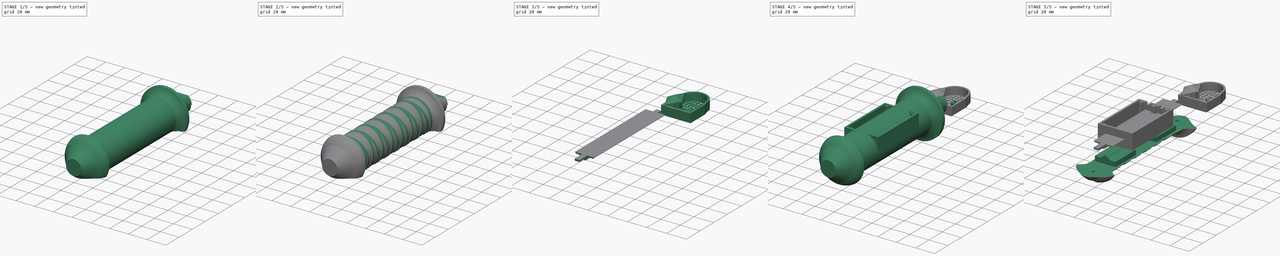
[diagram: build sequence overview — one tinted view per stage of 5, left to right]
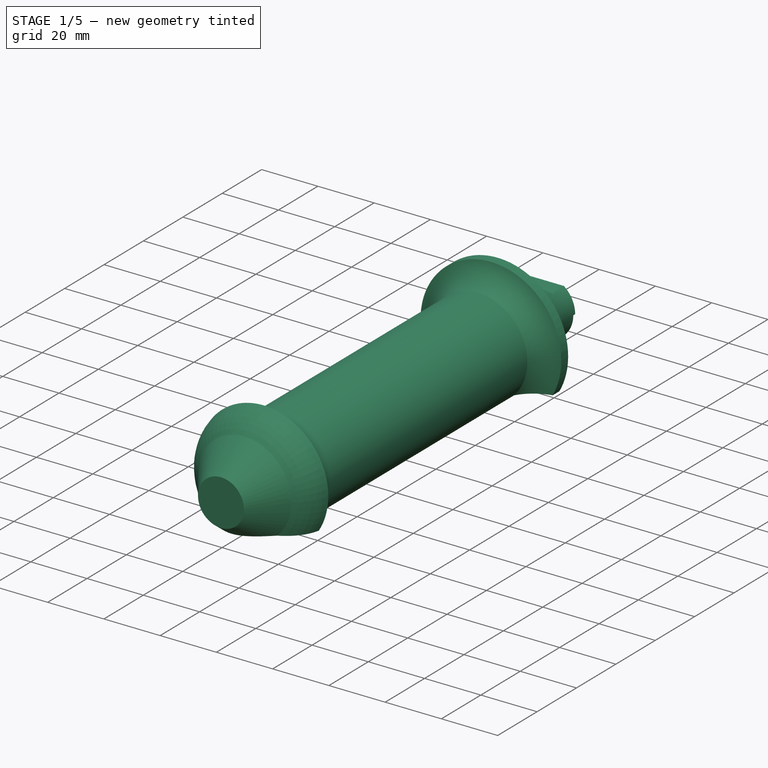
[diagram: stage 1 of 5 — iso view after this stage's code; geometry added in this stage tinted green]
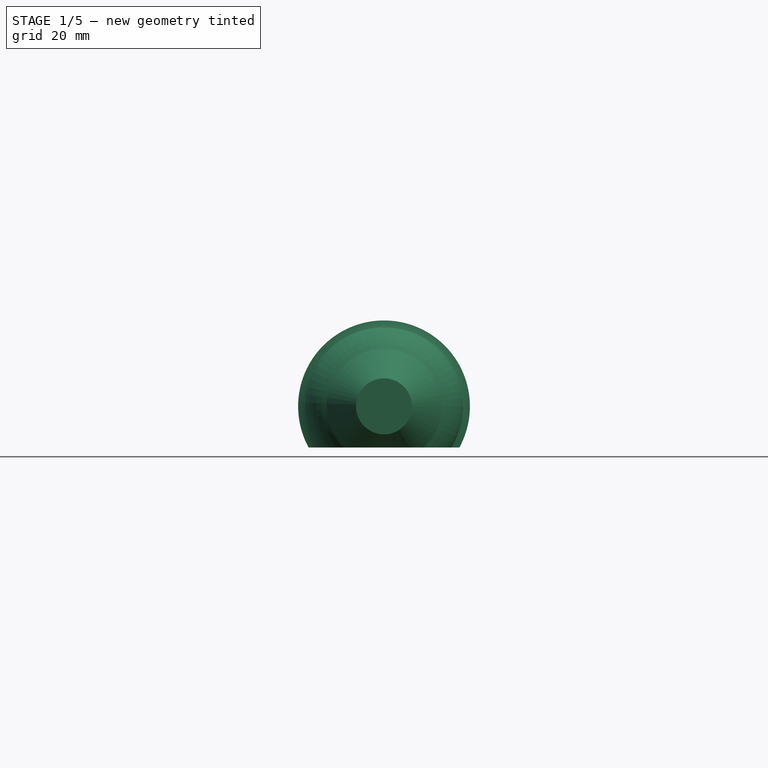
[diagram: stage 1 of 5 — front view after this stage's code; geometry added in this stage tinted green]
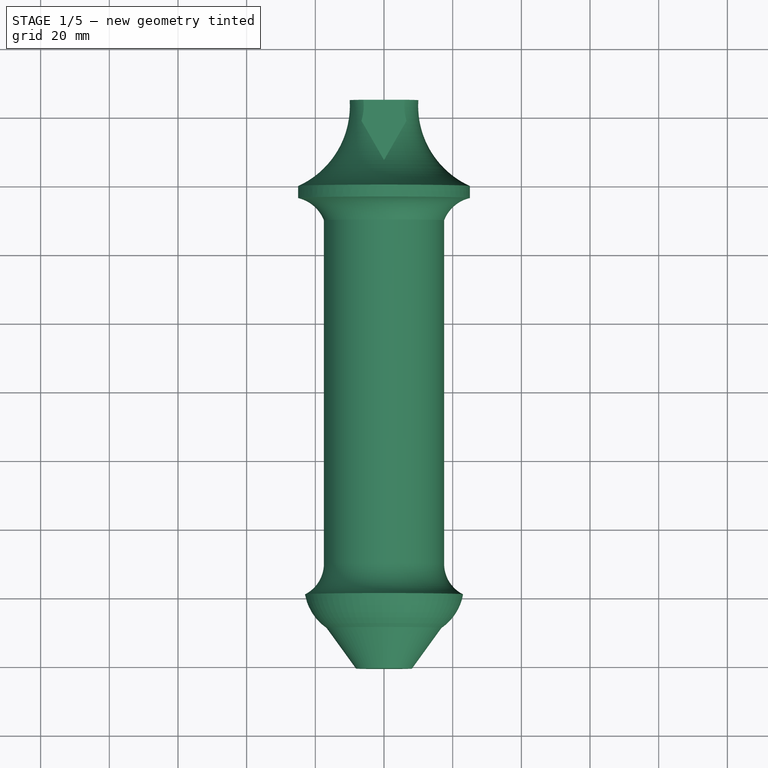
[diagram: stage 1 of 5 — top view after this stage's code; geometry added in this stage tinted green]
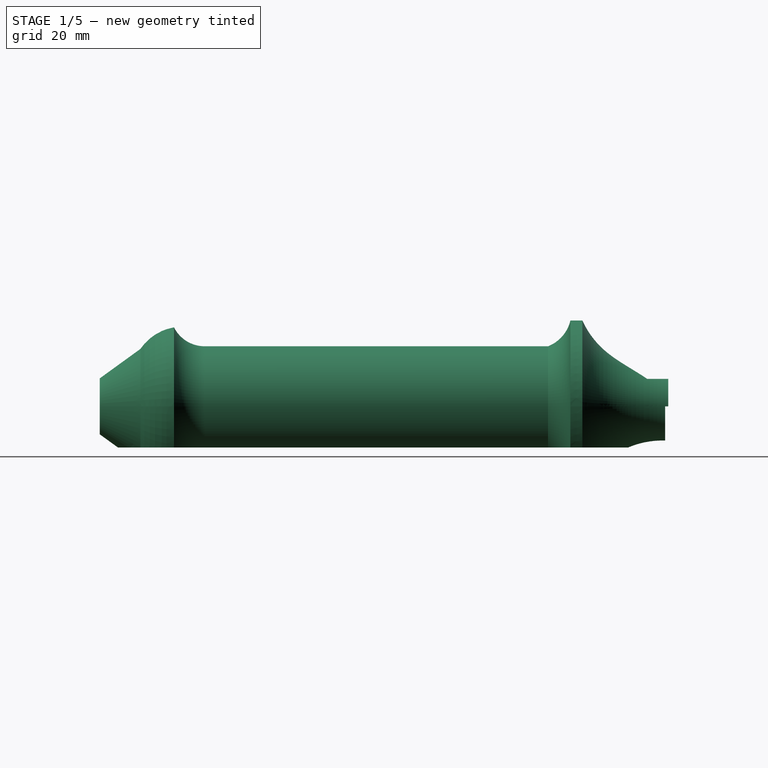
[diagram: stage 1 of 5 — right view after this stage's code; geometry added in this stage tinted green]
FCSTD DOCUMENT  (FreeCAD 1.0R39285 (Git))
Label: Neo-Neosword
License: All rights reserved
objects: Part::Feature×97, Sketcher::SketchObject×88, PartDesign::Pocket×38, PartDesign::Pad×21, PartDesign::Body×16, PartDesign::SubShapeBinder×12, App::Part×9, PartDesign::Revolution×5, PartDesign::AdditiveHelix×4, PartDesign::AdditivePipe×3, PartDesign::AdditiveLoft×2, PartDesign::Fillet×2, PartDesign::Mirrored×1, PartDesign::CoordinateSystem×1, PartDesign::SubtractiveCylinder×1, PartDesign::Chamfer×1, PartDesign::Groove×1
note: 538 computed .brp shape members not serialized (recipe doc carries the construction recipe); baked Part::Feature solids carry a one-line shape summary decoded from their .brp

FEATURE [Sketcher::SketchObject] Sketch
  ArcFitTolerance = 1e-06
  AttachmentSupport = -> [XY_Plane001]
  FullyConstrained = false
  MakeInternals = false
  MapMode = 5
  sketch-geometry (17):
    g0: LineSegment StartX=17.5 StartY=50 StartZ=0 EndX=17.5 EndY=-50 EndZ=0
    g1: ArcOfCircle CenterX=27.5 CenterY=-50 CenterZ=0 NormalX=0 NormalY=0 NormalZ=1 AngleXU=0 Radius=10 StartAngle=3.14159 EndAngle=4.2478
    g2: LineSegment StartX=16.7299 StartY=-68.7091 StartZ=0 EndX=8.15223 EndY=-80.5471 EndZ=0
    g3: LineSegment StartX=8.15223 StartY=-80.5471 StartZ=0 EndX=0 EndY=-80.5471 EndZ=0
    g4: ArcOfCircle CenterX=8.2468 CenterY=-56.3383 CenterZ=0 NormalX=0 NormalY=0 NormalZ=1 AngleXU=0 Radius=15 StartAngle=5.31348 EndAngle=6.10885
    g5: ArcOfCircle CenterX=27.468 CenterY=46.0956 CenterZ=0 NormalX=0 NormalY=0 NormalZ=1 AngleXU=0 Radius=10.7054 StartAngle=1.80342 EndAngle=2.76827
    g6: LineSegment StartX=25.0001 StartY=56.5127 StartZ=0 EndX=25.0155 EndY=56.5163 EndZ=0
    g7: LineSegment StartX=25.0155 StartY=56.5163 StartZ=0 EndX=25 EndY=60 EndZ=0
    g8: ArcOfCircle CenterX=35.5717 CenterY=83.343 CenterZ=0 NormalX=0 NormalY=0 NormalZ=1 AngleXU=0 Radius=25.6254 StartAngle=3.07689 EndAngle=4.28714
    g9: LineSegment [constr] StartX=25 StartY=60 StartZ=0 EndX=41.707 EndY=52.4336 EndZ=0
    g10: LineSegment StartX=10 StartY=85 StartZ=0 EndX=4 EndY=85 EndZ=0
    g11: LineSegment [constr] StartX=0 StartY=50.6044 StartZ=0 EndX=0 EndY=85 EndZ=0
    g12: LineSegment StartX=0 StartY=-80.5471 StartZ=0 EndX=0 EndY=-51.46 EndZ=0
    g13: LineSegment StartX=0 StartY=-51.46 StartZ=0 EndX=15 EndY=-51.46 EndZ=0
    g14: LineSegment StartX=15 StartY=-51.46 StartZ=0 EndX=15 EndY=57.54 EndZ=0
    g15: LineSegment StartX=15 StartY=57.54 StartZ=0 EndX=4 EndY=57.54 EndZ=0
    g16: LineSegment StartX=4 StartY=57.54 StartZ=0 EndX=4 EndY=85 EndZ=0
  constraints (39):
    c: Symmetric(g0,g0,g-1)
    c: DistanceY(g0,g0) = 100
    c: DistanceX(g-1,g0) = 17.5
    c: Tangent(g1,g0) = -1.5708
    c: Coincident(g3,g2)
    c: PointOnObject(g3,g-2)
    c: Horizontal(g3)
    c: Coincident(g4,g1)
    c: Coincident(g2,g4)
    c: Radius(g1) = 10
    c: Radius(g4) = 15
    c: Coincident(g5,g0)
    c: Tangent(g6,g5) = 1.5708
    c: Coincident(g7,g6)
    c: Coincident(g8,g7)
    c: Coincident(g9,g7)
    c: Tangent(g8,g9)
    c: Coincident(g10,g8)
    c: PointOnObject(g11,g-2)
    c: Horizontal(g10)
    c: DistanceX(g11,g10) = 10
    c: DistanceX(g-1,g7) = 25
    c: DistanceY(g-1,g11) = 85
    c: DistanceY(g-1,g7) = 60
    c: Coincident(g3,g12)
    c: PointOnObject(g12,g-2)
    c: Coincident(g12,g13)
    c: Horizontal(g13)
    c: Coincident(g13,g14)
    c: Vertical(g14)
    c: Coincident(g14,g15)
    c: Horizontal(g15)
    c: Coincident(g15,g16)
    c: Vertical(g16)
    c: Coincident(g10,g16)
    c: DistanceY(g14,g14) = 109
    c: DistanceX(g-1,g13) = 15
    c: DistanceY(g-1,g15) = 57.54
    c: Distance(g10,g-2) = 4
FEATURE [PartDesign::Revolution] Revolution
  Angle = 360
  Angle2 = 60
  Axis = (0,1,0)
  Base = (0,0,0)
  Profile = -> Sketch
  ReferenceAxis = -> Sketch [V_Axis]
  Refine = true
  Reversed = true
  Suppressed = false
  Type = 0
FEATURE [Sketcher::SketchObject] Sketch010
  ArcFitTolerance = 1e-06
  AttachmentSupport = -> [XY_Plane003]
  FullyConstrained = false
  MakeInternals = false
  MapMode = 5
  sketch-geometry (18):
    g0: LineSegment StartX=12.6399 StartY=59.9845 StartZ=0 EndX=-12.6399 EndY=59.9845 EndZ=0
    g1: LineSegment StartX=-12.6399 StartY=59.9845 StartZ=0 EndX=-17.8679 EndY=82.0584 EndZ=0
    g2: LineSegment StartX=-17.8679 StartY=82.0584 StartZ=0 EndX=-17.8679 EndY=102.222 EndZ=0
    g3: LineSegment StartX=-15.8679 StartY=104.222 StartZ=0 EndX=-8.15434 EndY=104.222 EndZ=0
    g4: LineSegment StartX=-7.15434 StartY=103.222 StartZ=0 EndX=-7.15434 EndY=92.1893 EndZ=0
    g5: LineSegment StartX=-7.15434 StartY=92.1893 StartZ=0 EndX=7.15434 EndY=92.1893 EndZ=0
    g6: LineSegment StartX=7.15434 StartY=92.1893 StartZ=0 EndX=7.15434 EndY=103.222 EndZ=0
    g7: LineSegment StartX=8.15434 StartY=104.222 StartZ=0 EndX=15.8679 EndY=104.222 EndZ=0
    g8: LineSegment StartX=17.8679 StartY=102.222 StartZ=0 EndX=17.8679 EndY=82.0584 EndZ=0
    g9: LineSegment StartX=17.8679 StartY=82.0584 StartZ=0 EndX=12.6399 EndY=59.9845 EndZ=0
    g10: ArcOfCircle CenterX=-15.8679 CenterY=102.222 CenterZ=0 NormalX=0 NormalY=0 NormalZ=1 AngleXU=0 Radius=2 StartAngle=1.5708 EndAngle=3.14159
    g11: GeomPoint [constr] X=-17.8679 Y=104.222 Z=0
    g12: ArcOfCircle CenterX=15.8679 CenterY=102.222 CenterZ=0 NormalX=0 NormalY=0 NormalZ=1 AngleXU=0 Radius=2 StartAngle=-9e-16 EndAngle=1.5708
    g13: GeomPoint [constr] X=17.8679 Y=104.222 Z=0
    g14: ArcOfCircle CenterX=-8.15434 CenterY=103.222 CenterZ=0 NormalX=0 NormalY=0 NormalZ=1 AngleXU=0 Radius=1 StartAngle=0 EndAngle=1.5708
    g15: GeomPoint [constr] X=-7.15434 Y=104.222 Z=0
    g16: ArcOfCircle CenterX=8.15434 CenterY=103.222 CenterZ=0 NormalX=0 NormalY=0 NormalZ=1 AngleXU=0 Radius=1 StartAngle=1.5708 EndAngle=3.14159
    g17: GeomPoint [constr] X=7.15434 Y=104.222 Z=0
  constraints (35):
    c: Coincident(g0,g1)
    c: Coincident(g1,g2)
    c: Vertical(g2)
    c: Horizontal(g3)
    c: Vertical(g4)
    c: Coincident(g4,g5)
    c: Horizontal(g5)
    c: Coincident(g5,g6)
    c: Coincident(g8,g9)
    c: Coincident(g9,g0)
    c: Symmetric(g0,g0,g-2)
    c: Symmetric(g1,g8,g-2)
    c: Symmetric(g11,g13,g-2)
    c: Symmetric(g15,g17,g-2)
    c: Vertical(g6)
    c: PointOnObject(g11,g3)
    c: PointOnObject(g11,g2)
    c: Tangent(g3,g10) = 1.5708
    c: Tangent(g2,g10) = 1.5708
    c: PointOnObject(g13,g7)
    c: PointOnObject(g13,g8)
    c: Tangent(g7,g12) = 1.5708
    c: Tangent(g8,g12) = 1.5708
    c: PointOnObject(g15,g3)
    c: PointOnObject(g15,g4)
    c: Tangent(g3,g14) = 1.5708
    c: Tangent(g4,g14) = 1.5708
    c: PointOnObject(g17,g7)
    c: PointOnObject(g17,g6)
    c: Tangent(g7,g16) = 1.5708
    c: Tangent(g6,g16) = 1.5708
    c: Radius(g10) = 2
    c: Radius(g12) = 2
    c: Radius(g16) = 1
    c: Radius(g14) = 1
FEATURE [PartDesign::Pad] Pad
  Direction = (0,0,1)
  Length = 24
  Length2 = 10
  Midplane = true
  Profile = -> Sketch010
  ReferenceAxis = -> Sketch010 [N_Axis]
  Refine = true
  Suppressed = false
  Type = 0
FEATURE [Sketcher::SketchObject] Sketch011
  ArcFitTolerance = 1e-06
  AttachmentOffset = pos=(0,0,-54) rot=(0,0,1;0rad)
  AttachmentSupport = -> [XZ_Plane003]
  FullyConstrained = false
  MakeInternals = false
  MapMode = 5
  Placement = pos=(0,54,-1.2e-14) rot=(1,0,0;1.5708rad)
  sketch-geometry (24):
    g0: LineSegment StartX=-18.5965 StartY=0 StartZ=0 EndX=-18.5965 EndY=5.28721 EndZ=0
    g1: LineSegment StartX=-18.5965 StartY=5.28721 StartZ=0 EndX=-8.15434 EndY=8 EndZ=0
    g2: LineSegment StartX=0 StartY=13.8139 StartZ=0 EndX=-22.1179 EndY=13.8139 EndZ=0
    g3: LineSegment StartX=-22.1179 StartY=13.8139 StartZ=0 EndX=-22.1179 EndY=-0.189388 EndZ=0
    g4: LineSegment StartX=-8.15434 StartY=8 StartZ=0 EndX=-7.4432 EndY=8.1798 EndZ=0
    g5: LineSegment StartX=-7.4432 StartY=8.1798 StartZ=0 EndX=0 EndY=8.1798 EndZ=0
    g6: LineSegment StartX=-18.5965 StartY=0 StartZ=0 EndX=-18.5965 EndY=-5.37112 EndZ=0
    g7: LineSegment StartX=-18.5965 StartY=-5.37112 StartZ=0 EndX=-8.15434 EndY=-8 EndZ=0
    g8: LineSegment StartX=0 StartY=-17.7434 StartZ=0 EndX=-22.1179 EndY=-17.7434 EndZ=0
    g9: LineSegment StartX=-22.1179 StartY=-17.7434 StartZ=0 EndX=-22.1179 EndY=-0.189388 EndZ=0
    g10: LineSegment StartX=-8.15434 StartY=-8 StartZ=0 EndX=-7.4432 EndY=-8.25332 EndZ=0
    g11: LineSegment StartX=-7.4432 StartY=-8.25332 StartZ=0 EndX=0.11104 EndY=-8.25332 EndZ=0
    g12: LineSegment StartX=18.5313 StartY=-0.112287 StartZ=0 EndX=18.5313 EndY=5.28721 EndZ=0
    g13: LineSegment StartX=18.5313 StartY=5.28721 StartZ=0 EndX=8.15434 EndY=8 EndZ=0
    g14: LineSegment StartX=0 StartY=13.8139 StartZ=0 EndX=22.6589 EndY=13.8139 EndZ=0
    g15: LineSegment StartX=22.6589 StartY=13.8139 StartZ=0 EndX=22.6589 EndY=-0.111897 EndZ=0
    g16: LineSegment StartX=8.15434 StartY=8 StartZ=0 EndX=7.51991 EndY=8.1798 EndZ=0
    g17: LineSegment StartX=7.51991 StartY=8.1798 StartZ=0 EndX=0 EndY=8.1798 EndZ=0
    g18: LineSegment StartX=18.5313 StartY=-0.112287 StartZ=0 EndX=18.5313 EndY=-5.39949 EndZ=0
    g19: LineSegment StartX=18.5313 StartY=-5.39949 StartZ=0 EndX=8.15434 EndY=-8 EndZ=0
    g20: LineSegment StartX=0 StartY=-17.7434 StartZ=0 EndX=22.6589 EndY=-17.7434 EndZ=0
    g21: LineSegment StartX=22.6589 StartY=-17.7434 StartZ=0 EndX=22.6589 EndY=-0.111897 EndZ=0
    g22: LineSegment StartX=8.15434 StartY=-8 StartZ=0 EndX=7.55424 EndY=-8.25332 EndZ=0
    g23: LineSegment StartX=7.55424 StartY=-8.25332 StartZ=0 EndX=0.11104 EndY=-8.25332 EndZ=0
  constraints (43):
    c: PointOnObject(g0,g-1)
    c: Vertical(g0)
    c: Coincident(g0,g1)
    c: Horizontal(g2)
    c: Coincident(g2,g3)
    c: Vertical(g3)
    c: Coincident(g1,g4)
    c: Coincident(g4,g5)
    c: PointOnObject(g5,g-2)
    c: Horizontal(g5)
    c: PointOnObject(g2,g-2)
    c: Vertical(g6)
    c: Coincident(g6,g7)
    c: Horizontal(g8)
    c: Coincident(g8,g9)
    c: Vertical(g9)
    c: Coincident(g7,g10)
    c: Coincident(g10,g11)
    c: Horizontal(g11)
    c: Vertical(g12)
    c: Coincident(g12,g13)
    c: Horizontal(g14)
    c: Coincident(g14,g15)
    c: Vertical(g15)
    c: Coincident(g13,g16)
    c: Coincident(g16,g17)
    c: Horizontal(g17)
    c: Vertical(g18)
    c: Coincident(g18,g19)
    c: Horizontal(g20)
    c: Coincident(g20,g21)
    c: Vertical(g21)
    c: Coincident(g19,g22)
    c: Coincident(g22,g23)
    c: Horizontal(g23)
    c: Coincident(g9,g3)
    c: Coincident(g6,g0)
    c: Coincident(g21,g15)
    c: Coincident(g18,g12)
    c: Coincident(g5,g17)
    c: Coincident(g2,g14)
    c: Coincident(g23,g11)
    c: Coincident(g8,g20)
FEATURE [PartDesign::Pocket] Pocket
  BaseFeature = -> Pad
  Direction = (0,1,-2e-16)
  Length = 62
  Length2 = 5
  Profile = -> Sketch011
  ReferenceAxis = -> Sketch011 [N_Axis]
  Refine = true
  Suppressed = false
  Type = 0
FEATURE [Sketcher::SketchObject] Sketch012  label="Diamond001"
  ArcFitTolerance = 1e-06
  AttachmentOffset = pos=(0,0,8) rot=(0,0,1;0rad)
  AttachmentSupport = -> [XY_Plane004]
  FullyConstrained = false
  MakeInternals = false
  MapMode = 5
  Placement = pos=(0,0,8) rot=(0,0,1;0rad)
  sketch-geometry (5):
    g0: LineSegment StartX=0 StartY=93.5332 StartZ=0 EndX=-7.90137 EndY=79.1802 EndZ=0
    g1: LineSegment StartX=-7.90137 StartY=79.1802 StartZ=0 EndX=0 EndY=64.8272 EndZ=0
    g2: LineSegment StartX=0 StartY=93.5332 StartZ=0 EndX=7.90137 EndY=79.1802 EndZ=0
    g3: LineSegment StartX=7.90137 StartY=79.1802 StartZ=0 EndX=0 EndY=64.8272 EndZ=0
    g4: LineSegment [constr] StartX=-7.90137 StartY=79.1802 StartZ=0 EndX=7.90137 EndY=79.1802 EndZ=0
  constraints (9):
    c: PointOnObject(g0,g-2)
    c: Coincident(g0,g1)
    c: Coincident(g2,g3)
    c: Coincident(g0,g2)
    c: Coincident(g1,g3)
    c: Coincident(g4,g0)
    c: Coincident(g4,g2)
    c: Symmetric(g0,g1,g4)
    c: Symmetric(g0,g2,g-2)
FEATURE [Sketcher::SketchObject] Sketch013
  ArcFitTolerance = 1e-06
  AttachmentOffset = pos=(0,0,8) rot=(0,0,1;0rad)
  AttachmentSupport = -> [XY_Plane001]
  FullyConstrained = false
  MakeInternals = false
  MapMode = 5
  Placement = pos=(0,0,8) rot=(0,0,1;0rad)
  sketch-geometry (8):
    g0: LineSegment [constr] StartX=0 StartY=97 StartZ=0 EndX=-7.9 EndY=83 EndZ=0
    g1: LineSegment [constr] StartX=-7.9 StartY=83 StartZ=0 EndX=1.8e-15 EndY=68.3 EndZ=0
    g2: LineSegment [constr] StartX=0 StartY=97 StartZ=0 EndX=7.9 EndY=83 EndZ=0
    g3: LineSegment [constr] StartX=7.9 StartY=83 StartZ=0 EndX=1.8e-15 EndY=68.3 EndZ=0
    g4: LineSegment StartX=0 StartY=98 StartZ=0 EndX=-8.9 EndY=83 EndZ=0
    g5: LineSegment StartX=-8.9 StartY=83 StartZ=0 EndX=0 EndY=67.3 EndZ=0
    g6: LineSegment StartX=0 StartY=67.3 StartZ=0 EndX=8.9 EndY=83 EndZ=0
    g7: LineSegment StartX=8.9 StartY=83 StartZ=0 EndX=0 EndY=98 EndZ=0
  constraints (22):
    c: PointOnObject(g0,g-2)
    c: Coincident(g0,g1)
    c: Coincident(g2,g3)
    c: Coincident(g0,g2)
    c: Coincident(g1,g3)
    c: Symmetric(g0,g2,g-2)
    c: PointOnObject(g4,g-2)
    c: Coincident(g4,g5)
    c: PointOnObject(g5,g-2)
    c: Coincident(g5,g6)
    c: Coincident(g6,g7)
    c: Coincident(g7,g4)
    c: Horizontal(g0,g4)
    c: Horizontal(g2,g6)
    c: DistanceX(g-1,g2) = 7.9
    c: DistanceY(g5,g1) = 1
    c: DistanceY(g0,g4) = 1
    c: DistanceX(g2,g6) = 1
    c: DistanceX(g4,g0) = 1
    c: DistanceY(g-1,g4) = 98
    c: DistanceY(g5,g4) = 30.7
    c: DistanceY(g4,g4) = 15
FEATURE [PartDesign::Pocket] Pocket001  label="Diamond Dimple"
  BaseFeature = -> Revolution
  Direction = (0,0,-1)
  Length = 21
  Length2 = 5
  Profile = -> Sketch013
  ReferenceAxis = -> Sketch013 [N_Axis]
  Refine = true
  Reversed = true
  Suppressed = false
  Type = 0
FEATURE [PartDesign::CoordinateSystem] Local_CS_259c
  AttacherType = Attacher::AttachEngine3D
  MapMode = 2
FEATURE [Part::Feature] Pcb_259c
  Placement = pos=(-179.7,105.7,0) rot=(0,0,1;0rad)
  shape: bbox 217 x 77.11 x 1.6 mm, 325 faces (baked)
FEATURE [Sketcher::SketchObject] PCB_Sketch_259c
  ArcFitTolerance = 1e-06
  FullyConstrained = false
  MakeInternals = false
  sketch-geometry (225):
    g0: LineSegment StartX=-137.665 StartY=0.013451 StartZ=0 EndX=-137.658 EndY=0.196135 EndZ=0
    g1: LineSegment StartX=-137.658 StartY=0.196135 StartZ=0 EndX=-137.64 EndY=0.376444 EndZ=0
    g2: LineSegment StartX=-137.64 StartY=0.376444 StartZ=0 EndX=-137.609 EndY=0.553855 EndZ=0
    g3: LineSegment StartX=-137.609 StartY=0.553855 StartZ=0 EndX=-137.567 EndY=0.727848 EndZ=0
    g4: LineSegment StartX=-137.567 StartY=0.727848 StartZ=0 EndX=-137.514 EndY=0.897898 EndZ=0
    g5: LineSegment StartX=-137.514 StartY=0.897898 StartZ=0 EndX=-137.449 EndY=1.06348 EndZ=0
    g6: LineSegment StartX=-137.449 StartY=1.06348 StartZ=0 EndX=-137.374 EndY=1.22408 EndZ=0
    g7: LineSegment StartX=-137.374 StartY=1.22408 StartZ=0 EndX=-137.288 EndY=1.37917 EndZ=0
    g8: LineSegment StartX=-137.288 StartY=1.37917 StartZ=0 EndX=-137.192 EndY=1.52823 EndZ=0
    g9: LineSegment StartX=-137.192 StartY=1.52823 StartZ=0 EndX=-137.087 EndY=1.67073 EndZ=0
    g10: LineSegment StartX=-137.087 StartY=1.67073 StartZ=0 EndX=-136.971 EndY=1.80615 EndZ=0
    g11: LineSegment StartX=-136.971 StartY=1.80615 StartZ=0 EndX=-136.847 EndY=1.93398 EndZ=0
    g12: LineSegment StartX=-136.847 StartY=1.93398 StartZ=0 EndX=-136.714 EndY=2.05368 EndZ=0
    g13: LineSegment StartX=-136.714 StartY=2.05368 StartZ=0 EndX=-136.572 EndY=2.16473 EndZ=0
    g14: LineSegment StartX=-136.572 StartY=2.16473 StartZ=0 EndX=-136.422 EndY=2.26662 EndZ=0
    g15: LineSegment StartX=-136.422 StartY=2.26662 StartZ=0 EndX=-136.265 EndY=2.35882 EndZ=0
    g16: LineSegment StartX=-136.265 StartY=2.35882 StartZ=0 EndX=-110.065 EndY=16.4831 EndZ=0
    g17: LineSegment StartX=-110.065 StartY=16.4831 StartZ=0 EndX=-108.497 EndY=17.297 EndZ=0
    g18: LineSegment StartX=-108.497 StartY=17.297 StartZ=0 EndX=-106.908 EndY=18.0606 EndZ=0
    g19: LineSegment StartX=-106.908 StartY=18.0606 StartZ=0 EndX=-105.298 EndY=18.7737 EndZ=0
    g20: LineSegment StartX=-105.298 StartY=18.7737 StartZ=0 EndX=-103.669 EndY=19.4359 EndZ=0
    g21: LineSegment StartX=-103.669 StartY=19.4359 StartZ=0 EndX=-102.022 EndY=20.0468 EndZ=0
    g22: LineSegment StartX=-102.022 StartY=20.0468 StartZ=0 EndX=-100.357 EndY=20.6063 EndZ=0
    g23: LineSegment StartX=-100.357 StartY=20.6063 StartZ=0 EndX=-98.6774 EndY=21.1139 EndZ=0
    g24: LineSegment StartX=-98.6774 StartY=21.1139 StartZ=0 EndX=-96.9831 EndY=21.5694 EndZ=0
    g25: LineSegment StartX=-96.9831 StartY=21.5694 StartZ=0 EndX=-95.2755 EndY=21.9725 EndZ=0
    g26: LineSegment StartX=-95.2755 StartY=21.9725 StartZ=0 EndX=-93.5559 EndY=22.3228 EndZ=0
    g27: LineSegment StartX=-93.5559 StartY=22.3228 StartZ=0 EndX=-91.8256 EndY=22.6201 EndZ=0
    g28: LineSegment StartX=-91.8256 StartY=22.6201 StartZ=0 EndX=-90.0856 EndY=22.8641 EndZ=0
    g29: LineSegment StartX=-90.0856 StartY=22.8641 StartZ=0 EndX=-88.3373 EndY=23.0543 EndZ=0
    g30: LineSegment StartX=-88.3373 StartY=23.0543 StartZ=0 EndX=-86.5819 EndY=23.1906 EndZ=0
    g31: LineSegment StartX=-86.5819 StartY=23.1906 StartZ=0 EndX=-84.8206 EndY=23.2726 EndZ=0
    g32: LineSegment StartX=-84.8206 StartY=23.2726 StartZ=0 EndX=-83.0546 EndY=23.3 EndZ=0
    g33: LineSegment StartX=-83.0546 StartY=23.3 StartZ=0 EndX=-19.5 EndY=23.3 EndZ=0
    g34: LineSegment StartX=-19.5 StartY=23.3 StartZ=0 EndX=-18.7908 EndY=23.3126 EndZ=0
    g35: LineSegment StartX=-18.7908 StartY=23.3126 StartZ=0 EndX=-18.084 EndY=23.3502 EndZ=0
    g36: LineSegment StartX=-18.084 StartY=23.3502 StartZ=0 EndX=-17.3804 EndY=23.4126 EndZ=0
    g37: LineSegment StartX=-17.3804 StartY=23.4126 StartZ=0 EndX=-16.6805 EndY=23.4997 EndZ=0
    g38: LineSegment StartX=-16.6805 StartY=23.4997 StartZ=0 EndX=-15.9849 EndY=23.6113 EndZ=0
    g39: LineSegment StartX=-15.9849 StartY=23.6113 StartZ=0 EndX=-15.2943 EndY=23.7472 EndZ=0
    g40: LineSegment StartX=-15.2943 StartY=23.7472 StartZ=0 EndX=-14.6093 EndY=23.9072 EndZ=0
    g41: LineSegment StartX=-14.6093 StartY=23.9072 StartZ=0 EndX=-13.9306 EndY=24.0911 EndZ=0
    g42: LineSegment StartX=-13.9306 StartY=24.0911 StartZ=0 EndX=-13.2588 EndY=24.2988 EndZ=0
    g43: LineSegment StartX=-13.2588 StartY=24.2988 StartZ=0 EndX=-12.5944 EndY=24.53 EndZ=0
    g44: LineSegment StartX=-12.5944 StartY=24.53 StartZ=0 EndX=-11.9383 EndY=24.7846 EndZ=0
    g45: LineSegment StartX=-11.9383 StartY=24.7846 StartZ=0 EndX=-11.2909 EndY=25.0624 EndZ=0
    g46: LineSegment StartX=-11.2909 StartY=25.0624 StartZ=0 EndX=-10.6529 EndY=25.3632 EndZ=0
    g47: LineSegment StartX=-10.6529 StartY=25.3632 StartZ=0 EndX=-10.025 EndY=25.6868 EndZ=0
    g48: LineSegment StartX=-10.025 StartY=25.6868 StartZ=0 EndX=-9.40773 EndY=26.0331 EndZ=0
    g49: LineSegment StartX=-9.40773 StartY=26.0331 StartZ=0 EndX=-8.8018 EndY=26.4018 EndZ=0
    g50: LineSegment StartX=-8.8018 StartY=26.4018 StartZ=0 EndX=9.1896 EndY=37.7921 EndZ=0
    g51: LineSegment StartX=9.1896 StartY=37.7921 StartZ=0 EndX=9.34108 EndY=37.8843 EndZ=0
    g52: LineSegment StartX=9.34108 StartY=37.8843 StartZ=0 EndX=9.49539 EndY=37.9709 EndZ=0
    g53: LineSegment StartX=9.49539 StartY=37.9709 StartZ=0 EndX=9.65237 EndY=38.0518 EndZ=0
    g54: LineSegment StartX=9.65237 StartY=38.0518 StartZ=0 EndX=9.81186 EndY=38.127 EndZ=0
    g55: LineSegment StartX=9.81186 StartY=38.127 StartZ=0 EndX=9.9737 EndY=38.1964 EndZ=0
    g56: LineSegment StartX=9.9737 StartY=38.1964 StartZ=0 EndX=10.1377 EndY=38.2601 EndZ=0
    g57: LineSegment StartX=10.1377 StartY=38.2601 StartZ=0 EndX=10.3038 EndY=38.3179 EndZ=0
    g58: LineSegment StartX=10.3038 StartY=38.3179 StartZ=0 EndX=10.4718 EndY=38.3698 EndZ=0
    g59: LineSegment StartX=10.4718 StartY=38.3698 StartZ=0 EndX=10.6415 EndY=38.4158 EndZ=0
    g60: LineSegment StartX=10.6415 StartY=38.4158 StartZ=0 EndX=10.8127 EndY=38.4558 EndZ=0
    g61: LineSegment StartX=10.8127 StartY=38.4558 StartZ=0 EndX=10.9853 EndY=38.4898 EndZ=0
    g62: LineSegment StartX=10.9853 StartY=38.4898 StartZ=0 EndX=11.1592 EndY=38.5177 EndZ=0
    g63: LineSegment StartX=11.1592 StartY=38.5177 StartZ=0 EndX=11.3342 EndY=38.5395 EndZ=0
    g64: LineSegment StartX=11.3342 StartY=38.5395 StartZ=0 EndX=11.5101 EndY=38.5551 EndZ=0
    g65: LineSegment StartX=11.5101 StartY=38.5551 StartZ=0 EndX=11.6868 EndY=38.5645 EndZ=0
    g66: LineSegment StartX=11.6868 StartY=38.5645 StartZ=0 EndX=11.8641 EndY=38.5676 EndZ=0
    g67: LineSegment StartX=11.8641 StartY=38.5676 StartZ=0 EndX=31.8641 EndY=38.5676 EndZ=0
    g68: LineSegment StartX=31.8641 StartY=38.5676 StartZ=0 EndX=32.1279 EndY=38.5606 EndZ=0
    g69: LineSegment StartX=32.1279 StartY=38.5606 StartZ=0 EndX=32.3896 EndY=38.5399 EndZ=0
    g70: LineSegment StartX=32.3896 StartY=38.5399 StartZ=0 EndX=32.6487 EndY=38.5057 EndZ=0
    g71: LineSegment StartX=32.6487 StartY=38.5057 StartZ=0 EndX=32.9049 EndY=38.4581 EndZ=0
    g72: LineSegment StartX=32.9049 StartY=38.4581 StartZ=0 EndX=33.1576 EndY=38.3974 EndZ=0
    g73: LineSegment StartX=33.1576 StartY=38.3974 StartZ=0 EndX=33.4064 EndY=38.3238 EndZ=0
    g74: LineSegment StartX=33.4064 StartY=38.3238 StartZ=0 EndX=33.6506 EndY=38.2376 EndZ=0
    g75: LineSegment StartX=33.6506 StartY=38.2376 StartZ=0 EndX=33.89 EndY=38.1388 EndZ=0
    g76: LineSegment StartX=33.89 StartY=38.1388 StartZ=0 EndX=34.1239 EndY=38.0278 EndZ=0
    g77: LineSegment StartX=34.1239 StartY=38.0278 StartZ=0 EndX=34.3518 EndY=37.9048 EndZ=0
    g78: LineSegment StartX=34.3518 StartY=37.9048 StartZ=0 EndX=34.5734 EndY=37.77 EndZ=0
    g79: LineSegment StartX=34.5734 StartY=37.77 StartZ=0 EndX=34.7881 EndY=37.6236 EndZ=0
    g80: LineSegment StartX=34.7881 StartY=37.6236 StartZ=0 EndX=34.9954 EndY=37.4657 EndZ=0
    g81: LineSegment StartX=34.9954 StartY=37.4657 StartZ=0 EndX=35.1949 EndY=37.2967 EndZ=0
    g82: LineSegment StartX=35.1949 StartY=37.2967 StartZ=0 EndX=35.386 EndY=37.1168 EndZ=0
    g83: LineSegment StartX=35.386 StartY=37.1168 StartZ=0 EndX=35.5683 EndY=36.9261 EndZ=0
    g84: LineSegment StartX=35.5683 StartY=36.9261 StartZ=0 EndX=40.4159 EndY=31.5796 EndZ=0
    g85: LineSegment StartX=40.4159 StartY=31.5796 StartZ=0 EndX=41.145 EndY=30.8168 EndZ=0
    g86: LineSegment StartX=41.145 StartY=30.8168 StartZ=0 EndX=41.9095 EndY=30.0969 EndZ=0
    g87: LineSegment StartX=41.9095 StartY=30.0969 StartZ=0 EndX=42.7074 EndY=29.421 EndZ=0
    g88: LineSegment StartX=42.7074 StartY=29.421 StartZ=0 EndX=43.5366 EndY=28.7896 EndZ=0
    g89: LineSegment StartX=43.5366 StartY=28.7896 StartZ=0 EndX=44.3954 EndY=28.2039 EndZ=0
    g90: LineSegment StartX=44.3954 StartY=28.2039 StartZ=0 EndX=45.2818 EndY=27.6646 EndZ=0
    g91: LineSegment StartX=45.2818 StartY=27.6646 StartZ=0 EndX=46.1937 EndY=27.1725 EndZ=0
    g92: LineSegment StartX=46.1937 StartY=27.1725 StartZ=0 EndX=47.1293 EndY=26.7286 EndZ=0
    g93: LineSegment StartX=47.1293 StartY=26.7286 StartZ=0 EndX=48.0866 EndY=26.3336 EndZ=0
    g94: LineSegment StartX=48.0866 StartY=26.3336 StartZ=0 EndX=49.0637 EndY=25.9886 EndZ=0
    g95: LineSegment StartX=49.0637 StartY=25.9886 StartZ=0 EndX=50.0586 EndY=25.6942 EndZ=0
    g96: LineSegment StartX=50.0586 StartY=25.6942 StartZ=0 EndX=51.0694 EndY=25.4515 EndZ=0
    g97: LineSegment StartX=51.0694 StartY=25.4515 StartZ=0 EndX=52.0941 EndY=25.2612 EndZ=0
    g98: LineSegment StartX=52.0941 StartY=25.2612 StartZ=0 EndX=53.1308 EndY=25.1242 EndZ=0
    g99: LineSegment StartX=53.1308 StartY=25.1242 StartZ=0 EndX=54.1775 EndY=25.0413 EndZ=0
    g100: LineSegment StartX=54.1775 StartY=25.0413 StartZ=0 EndX=55.2324 EndY=25.0135 EndZ=0
    g101: LineSegment StartX=55.2324 StartY=25.0135 StartZ=0 EndX=59.3852 EndY=25.0135 EndZ=0
    g102: LineSegment StartX=59.3852 StartY=25.0135 StartZ=0 EndX=59.3852 EndY=15.0135 EndZ=0
    g103: LineSegment StartX=59.3852 StartY=15.0135 StartZ=0 EndX=79.3852 EndY=15.0135 EndZ=0
    g104: LineSegment StartX=79.3852 StartY=15.0135 StartZ=0 EndX=79.3852 EndY=-14.9865 EndZ=0
    g105: LineSegment StartX=79.3852 StartY=-14.9865 StartZ=0 EndX=59.3852 EndY=-14.9865 EndZ=0
    g106: LineSegment StartX=59.3852 StartY=-14.9865 StartZ=0 EndX=59.3852 EndY=-24.9865 EndZ=0
    g107: LineSegment StartX=59.3852 StartY=-24.9865 StartZ=0 EndX=55.2324 EndY=-24.9865 EndZ=0
    g108: LineSegment StartX=55.2324 StartY=-24.9865 StartZ=0 EndX=54.1775 EndY=-25.0143 EndZ=0
    g109: LineSegment StartX=54.1775 StartY=-25.0143 StartZ=0 EndX=53.1308 EndY=-25.0971 EndZ=0
    g110: LineSegment StartX=53.1308 StartY=-25.0971 StartZ=0 EndX=52.0941 EndY=-25.2341 EndZ=0
    g111: LineSegment StartX=52.0941 StartY=-25.2341 StartZ=0 EndX=51.0693 EndY=-25.4244 EndZ=0
    g112: LineSegment StartX=51.0693 StartY=-25.4244 StartZ=0 EndX=50.0585 EndY=-25.6672 EndZ=0
    g113: LineSegment StartX=50.0585 StartY=-25.6672 StartZ=0 EndX=49.0636 EndY=-25.9615 EndZ=0
    g114: LineSegment StartX=49.0636 StartY=-25.9615 StartZ=0 EndX=48.0866 EndY=-26.3066 EndZ=0
    g115: LineSegment StartX=48.0866 StartY=-26.3066 StartZ=0 EndX=47.1293 EndY=-26.7015 EndZ=0
    g116: LineSegment StartX=47.1293 StartY=-26.7015 StartZ=0 EndX=46.1937 EndY=-27.1454 EndZ=0
    g117: LineSegment StartX=46.1937 StartY=-27.1454 StartZ=0 EndX=45.2817 EndY=-27.6375 EndZ=0
    g118: LineSegment StartX=45.2817 StartY=-27.6375 StartZ=0 EndX=44.3954 EndY=-28.1768 EndZ=0
    g119: LineSegment StartX=44.3954 StartY=-28.1768 StartZ=0 EndX=43.5366 EndY=-28.7626 EndZ=0
    g120: LineSegment StartX=43.5366 StartY=-28.7626 StartZ=0 EndX=42.7073 EndY=-29.3939 EndZ=0
    g121: LineSegment StartX=42.7073 StartY=-29.3939 StartZ=0 EndX=41.9095 EndY=-30.0699 EndZ=0
    g122: LineSegment StartX=41.9095 StartY=-30.0699 StartZ=0 EndX=41.145 EndY=-30.7897 EndZ=0
    g123: LineSegment StartX=41.145 StartY=-30.7897 StartZ=0 EndX=40.4159 EndY=-31.5525 EndZ=0
    g124: LineSegment StartX=40.4159 StartY=-31.5525 StartZ=0 EndX=35.5683 EndY=-36.899 EndZ=0
    g125: LineSegment StartX=35.5683 StartY=-36.899 StartZ=0 EndX=35.386 EndY=-37.0897 EndZ=0
    g126: LineSegment StartX=35.386 StartY=-37.0897 StartZ=0 EndX=35.1949 EndY=-37.2697 EndZ=0
    g127: LineSegment StartX=35.1949 StartY=-37.2697 StartZ=0 EndX=34.9954 EndY=-37.4387 EndZ=0
    g128: LineSegment StartX=34.9954 StartY=-37.4387 StartZ=0 EndX=34.7881 EndY=-37.5965 EndZ=0
    g129: LineSegment StartX=34.7881 StartY=-37.5965 StartZ=0 EndX=34.5734 EndY=-37.743 EndZ=0
    g130: LineSegment StartX=34.5734 StartY=-37.743 StartZ=0 EndX=34.3518 EndY=-37.8778 EndZ=0
    g131: LineSegment StartX=34.3518 StartY=-37.8778 StartZ=0 EndX=34.1238 EndY=-38.0008 EndZ=0
    g132: LineSegment StartX=34.1238 StartY=-38.0008 StartZ=0 EndX=33.8899 EndY=-38.1118 EndZ=0
    g133: LineSegment StartX=33.8899 StartY=-38.1118 StartZ=0 EndX=33.6506 EndY=-38.2105 EndZ=0
    g134: LineSegment StartX=33.6506 StartY=-38.2105 StartZ=0 EndX=33.4063 EndY=-38.2968 EndZ=0
    g135: LineSegment StartX=33.4063 StartY=-38.2968 StartZ=0 EndX=33.1576 EndY=-38.3704 EndZ=0
    g136: LineSegment StartX=33.1576 StartY=-38.3704 StartZ=0 EndX=32.9049 EndY=-38.4311 EndZ=0
    g137: LineSegment StartX=32.9049 StartY=-38.4311 StartZ=0 EndX=32.6487 EndY=-38.4787 EndZ=0
    g138: LineSegment StartX=32.6487 StartY=-38.4787 StartZ=0 EndX=32.3896 EndY=-38.5129 EndZ=0
    g139: LineSegment StartX=32.3896 StartY=-38.5129 StartZ=0 EndX=32.1279 EndY=-38.5336 EndZ=0
    g140: LineSegment StartX=32.1279 StartY=-38.5336 StartZ=0 EndX=31.8641 EndY=-38.5406 EndZ=0
    g141: LineSegment StartX=31.8641 StartY=-38.5406 StartZ=0 EndX=11.8641 EndY=-38.5405 EndZ=0
    g142: LineSegment StartX=11.8641 StartY=-38.5405 StartZ=0 EndX=11.6868 EndY=-38.5374 EndZ=0
    g143: LineSegment StartX=11.6868 StartY=-38.5374 StartZ=0 EndX=11.5102 EndY=-38.528 EndZ=0
    g144: LineSegment StartX=11.5102 StartY=-38.528 StartZ=0 EndX=11.3343 EndY=-38.5124 EndZ=0
    g145: LineSegment StartX=11.3343 StartY=-38.5124 StartZ=0 EndX=11.1593 EndY=-38.4906 EndZ=0
    g146: LineSegment StartX=11.1593 StartY=-38.4906 StartZ=0 EndX=10.9854 EndY=-38.4627 EndZ=0
    g147: LineSegment StartX=10.9854 StartY=-38.4627 StartZ=0 EndX=10.8127 EndY=-38.4287 EndZ=0
    g148: LineSegment StartX=10.8127 StartY=-38.4287 StartZ=0 EndX=10.6415 EndY=-38.3887 EndZ=0
    g149: LineSegment StartX=10.6415 StartY=-38.3887 StartZ=0 EndX=10.4718 EndY=-38.3428 EndZ=0
    g150: LineSegment StartX=10.4718 StartY=-38.3428 StartZ=0 EndX=10.3039 EndY=-38.2909 EndZ=0
    g151: LineSegment StartX=10.3039 StartY=-38.2909 StartZ=0 EndX=10.1378 EndY=-38.233 EndZ=0
    g152: LineSegment StartX=10.1378 StartY=-38.233 StartZ=0 EndX=9.97375 EndY=-38.1694 EndZ=0
    g153: LineSegment StartX=9.97375 StartY=-38.1694 StartZ=0 EndX=9.8119 EndY=-38.0999 EndZ=0
    g154: LineSegment StartX=9.8119 StartY=-38.0999 StartZ=0 EndX=9.65241 EndY=-38.0247 EndZ=0
    g155: LineSegment StartX=9.65241 StartY=-38.0247 StartZ=0 EndX=9.49543 EndY=-37.9438 EndZ=0
    g156: LineSegment StartX=9.49543 StartY=-37.9438 StartZ=0 EndX=9.34111 EndY=-37.8573 EndZ=0
    g157: LineSegment StartX=9.34111 StartY=-37.8573 StartZ=0 EndX=9.18963 EndY=-37.7651 EndZ=0
    g158: LineSegment StartX=9.18963 StartY=-37.7651 StartZ=0 EndX=-8.8018 EndY=-26.3748 EndZ=0
    g159: LineSegment StartX=-8.8018 StartY=-26.3748 StartZ=0 EndX=-9.40774 EndY=-26.006 EndZ=0
    g160: LineSegment StartX=-9.40774 StartY=-26.006 StartZ=0 EndX=-10.025 EndY=-25.6598 EndZ=0
    g161: LineSegment StartX=-10.025 StartY=-25.6598 StartZ=0 EndX=-10.6529 EndY=-25.3361 EndZ=0
    g162: LineSegment StartX=-10.6529 StartY=-25.3361 StartZ=0 EndX=-11.2909 EndY=-25.0353 EndZ=0
    g163: LineSegment StartX=-11.2909 StartY=-25.0353 StartZ=0 EndX=-11.9383 EndY=-24.7575 EndZ=0
    g164: LineSegment StartX=-11.9383 StartY=-24.7575 StartZ=0 EndX=-12.5944 EndY=-24.5029 EndZ=0
    g165: LineSegment StartX=-12.5944 StartY=-24.5029 StartZ=0 EndX=-13.2588 EndY=-24.2717 EndZ=0
    g166: LineSegment StartX=-13.2588 StartY=-24.2717 StartZ=0 EndX=-13.9306 EndY=-24.0641 EndZ=0
    g167: LineSegment StartX=-13.9306 StartY=-24.0641 StartZ=0 EndX=-14.6093 EndY=-23.8802 EndZ=0
    g168: LineSegment StartX=-14.6093 StartY=-23.8802 StartZ=0 EndX=-15.2943 EndY=-23.7202 EndZ=0
    g169: LineSegment StartX=-15.2943 StartY=-23.7202 StartZ=0 EndX=-15.9849 EndY=-23.5843 EndZ=0
    g170: LineSegment StartX=-15.9849 StartY=-23.5843 StartZ=0 EndX=-16.6805 EndY=-23.4727 EndZ=0
    g171: LineSegment StartX=-16.6805 StartY=-23.4727 StartZ=0 EndX=-17.3804 EndY=-23.3856 EndZ=0
    g172: LineSegment StartX=-17.3804 StartY=-23.3856 StartZ=0 EndX=-18.084 EndY=-23.3232 EndZ=0
    g173: LineSegment StartX=-18.084 StartY=-23.3232 StartZ=0 EndX=-18.7908 EndY=-23.2856 EndZ=0
    g174: LineSegment StartX=-18.7908 StartY=-23.2856 StartZ=0 EndX=-19.5 EndY=-23.273 EndZ=0
    g175: LineSegment StartX=-19.5 StartY=-23.273 StartZ=0 EndX=-81.0081 EndY=-23.273 EndZ=0
    g176: LineSegment StartX=-81.0081 StartY=-23.273 StartZ=0 EndX=-83.0257 EndY=-23.2417 EndZ=0
    g177: LineSegment StartX=-83.0257 StartY=-23.2417 StartZ=0 EndX=-85.0378 EndY=-23.148 EndZ=0
    g178: LineSegment StartX=-85.0378 StartY=-23.148 StartZ=0 EndX=-87.0433 EndY=-22.9923 EndZ=0
    g179: LineSegment StartX=-87.0433 StartY=-22.9923 StartZ=0 EndX=-89.0406 EndY=-22.775 EndZ=0
    g180: LineSegment StartX=-89.0406 StartY=-22.775 StartZ=0 EndX=-91.0284 EndY=-22.4963 EndZ=0
    g181: LineSegment StartX=-91.0284 StartY=-22.4963 StartZ=0 EndX=-93.0052 EndY=-22.1567 EndZ=0
    g182: LineSegment StartX=-93.0052 StartY=-22.1567 StartZ=0 EndX=-94.9697 EndY=-21.7564 EndZ=0
    g183: LineSegment StartX=-94.9697 StartY=-21.7564 StartZ=0 EndX=-96.9205 EndY=-21.2959 EndZ=0
    g184: LineSegment StartX=-96.9205 StartY=-21.2959 StartZ=0 EndX=-98.8562 EndY=-20.7756 EndZ=0
    g185: LineSegment StartX=-98.8562 StartY=-20.7756 StartZ=0 EndX=-100.775 EndY=-20.1956 EndZ=0
    g186: LineSegment StartX=-100.775 StartY=-20.1956 StartZ=0 EndX=-102.677 EndY=-19.5565 EndZ=0
    g187: LineSegment StartX=-102.677 StartY=-19.5565 StartZ=0 EndX=-104.559 EndY=-18.8585 EndZ=0
    g188: LineSegment StartX=-104.559 StartY=-18.8585 StartZ=0 EndX=-106.42 EndY=-18.102 EndZ=0
    g189: LineSegment StartX=-106.42 StartY=-18.102 StartZ=0 EndX=-108.259 EndY=-17.2874 EndZ=0
    g190: LineSegment StartX=-108.259 StartY=-17.2874 StartZ=0 EndX=-110.075 EndY=-16.415 EndZ=0
    g191: LineSegment StartX=-110.075 StartY=-16.415 StartZ=0 EndX=-111.865 EndY=-15.4851 EndZ=0
    g192: LineSegment StartX=-111.865 StartY=-15.4851 StartZ=0 EndX=-136.264 EndY=-2.33178 EndZ=0
    g193: LineSegment StartX=-136.264 StartY=-2.33178 StartZ=0 EndX=-136.344 EndY=-2.28693 EndZ=0
    g194: LineSegment StartX=-136.344 StartY=-2.28693 StartZ=0 EndX=-136.422 EndY=-2.2396 EndZ=0
    g195: LineSegment StartX=-136.422 StartY=-2.2396 StartZ=0 EndX=-136.498 EndY=-2.18984 EndZ=0
    g196: LineSegment StartX=-136.498 StartY=-2.18984 StartZ=0 EndX=-136.572 EndY=-2.13773 EndZ=0
    g197: LineSegment StartX=-136.572 StartY=-2.13773 StartZ=0 EndX=-136.644 EndY=-2.08332 EndZ=0
    g198: LineSegment StartX=-136.644 StartY=-2.08332 StartZ=0 EndX=-136.714 EndY=-2.02669 EndZ=0
    g199: LineSegment StartX=-136.714 StartY=-2.02669 StartZ=0 EndX=-136.781 EndY=-1.96789 EndZ=0
    g200: LineSegment StartX=-136.781 StartY=-1.96789 StartZ=0 EndX=-136.847 EndY=-1.907 EndZ=0
    g201: LineSegment StartX=-136.847 StartY=-1.907 StartZ=0 EndX=-136.91 EndY=-1.84407 EndZ=0
    g202: LineSegment StartX=-136.91 StartY=-1.84407 StartZ=0 EndX=-136.971 EndY=-1.77918 EndZ=0
    g203: LineSegment StartX=-136.971 StartY=-1.77918 StartZ=0 EndX=-137.03 EndY=-1.7124 EndZ=0
    g204: LineSegment StartX=-137.03 StartY=-1.7124 StartZ=0 EndX=-137.086 EndY=-1.64377 EndZ=0
    g205: LineSegment StartX=-137.086 StartY=-1.64377 StartZ=0 EndX=-137.14 EndY=-1.57338 EndZ=0
    g206: LineSegment StartX=-137.14 StartY=-1.57338 StartZ=0 EndX=-137.192 EndY=-1.50128 EndZ=0
    g207: LineSegment StartX=-137.192 StartY=-1.50128 StartZ=0 EndX=-137.241 EndY=-1.42754 EndZ=0
    g208: LineSegment StartX=-137.241 StartY=-1.42754 StartZ=0 EndX=-137.288 EndY=-1.35223 EndZ=0
    g209: LineSegment StartX=-137.288 StartY=-1.35223 StartZ=0 EndX=-137.332 EndY=-1.27541 EndZ=0
    g210: LineSegment StartX=-137.332 StartY=-1.27541 StartZ=0 EndX=-137.374 EndY=-1.19715 EndZ=0
    g211: LineSegment StartX=-137.374 StartY=-1.19715 StartZ=0 EndX=-137.413 EndY=-1.11751 EndZ=0
    g212: LineSegment StartX=-137.413 StartY=-1.11751 StartZ=0 EndX=-137.449 EndY=-1.03656 EndZ=0
    g213: LineSegment StartX=-137.449 StartY=-1.03656 StartZ=0 EndX=-137.483 EndY=-0.954362 EndZ=0
    g214: LineSegment StartX=-137.483 StartY=-0.954362 StartZ=0 EndX=-137.513 EndY=-0.870982 EndZ=0
    g215: LineSegment StartX=-137.513 StartY=-0.870982 StartZ=0 EndX=-137.542 EndY=-0.786484 EndZ=0
    g216: LineSegment StartX=-137.542 StartY=-0.786484 StartZ=0 EndX=-137.567 EndY=-0.700936 EndZ=0
    g217: LineSegment StartX=-137.567 StartY=-0.700936 StartZ=0 EndX=-137.59 EndY=-0.614402 EndZ=0
    g218: LineSegment StartX=-137.59 StartY=-0.614402 StartZ=0 EndX=-137.609 EndY=-0.526948 EndZ=0
    g219: LineSegment StartX=-137.609 StartY=-0.526948 StartZ=0 EndX=-137.626 EndY=-0.438638 EndZ=0
    g220: LineSegment StartX=-137.626 StartY=-0.438638 StartZ=0 EndX=-137.64 EndY=-0.349538 EndZ=0
    g221: LineSegment StartX=-137.64 StartY=-0.349538 StartZ=0 EndX=-137.651 EndY=-0.259715 EndZ=0
    g222: LineSegment StartX=-137.651 StartY=-0.259715 StartZ=0 EndX=-137.658 EndY=-0.169231 EndZ=0
    g223: LineSegment StartX=-137.658 StartY=-0.169231 StartZ=0 EndX=-137.663 EndY=-0.078154 EndZ=0
    g224: LineSegment StartX=-137.663 StartY=-0.078154 StartZ=0 EndX=-137.665 EndY=0.013451 EndZ=0
  constraints (224):
    c: Coincident(g222,g223)
    c: Coincident(g223,g224)
    c: Coincident(g0,g224)
    c: Coincident(g0,g1)
    c: Coincident(g220,g221)
    c: Coincident(g1,g2)
    c: Coincident(g219,g220)
    c: Coincident(g218,g219)
    c: Coincident(g2,g3)
    c: Coincident(g217,g218)
    c: Coincident(g216,g217)
    c: Coincident(g3,g4)
    c: Coincident(g215,g216)
    c: Coincident(g214,g215)
    c: Coincident(g4,g5)
    c: Coincident(g213,g214)
    c: Coincident(g212,g213)
    c: Coincident(g5,g6)
    c: Coincident(g211,g212)
    c: Coincident(g210,g211)
    c: Coincident(g6,g7)
    c: Coincident(g209,g210)
    c: Coincident(g208,g209)
    c: Coincident(g7,g8)
    c: Coincident(g207,g208)
    c: Coincident(g206,g207)
    c: Coincident(g8,g9)
    c: Coincident(g205,g206)
    c: Coincident(g204,g205)
    c: Coincident(g9,g10)
    c: Coincident(g203,g204)
    c: Coincident(g202,g203)
    c: Coincident(g10,g11)
    c: Coincident(g201,g202)
    c: Coincident(g200,g201)
    c: Coincident(g11,g12)
    c: Coincident(g199,g200)
    c: Coincident(g198,g199)
    c: Coincident(g12,g13)
    c: Coincident(g197,g198)
    c: Coincident(g196,g197)
    c: Coincident(g13,g14)
    c: Coincident(g195,g196)
    c: Coincident(g194,g195)
    c: Coincident(g14,g15)
    c: Coincident(g193,g194)
    c: Coincident(g192,g193)
    c: Coincident(g15,g16)
    c: Coincident(g191,g192)
    c: Coincident(g190,g191)
    c: Coincident(g16,g17)
    c: Coincident(g17,g18)
    c: Coincident(g189,g190)
    c: Coincident(g18,g19)
    c: Coincident(g188,g189)
    c: Coincident(g19,g20)
    c: Coincident(g187,g188)
    c: Coincident(g20,g21)
    c: Coincident(g186,g187)
    c: Coincident(g21,g22)
    c: Coincident(g185,g186)
    c: Coincident(g22,g23)
    c: Coincident(g184,g185)
    c: Coincident(g23,g24)
    c: Coincident(g24,g25)
    c: Coincident(g183,g184)
    c: Coincident(g25,g26)
    c: Coincident(g182,g183)
    c: Coincident(g26,g27)
    c: Coincident(g181,g182)
    c: Coincident(g27,g28)
    c: Coincident(g180,g181)
    c: Coincident(g28,g29)
    c: Coincident(g179,g180)
    c: Coincident(g29,g30)
    c: Coincident(g178,g179)
    c: Coincident(g30,g31)
    c: Coincident(g177,g178)
    c: Coincident(g31,g32)
    c: Coincident(g32,g33)
    c: Coincident(g176,g177)
    c: Coincident(g175,g176)
    c: Coincident(g174,g175)
    c: Coincident(g33,g34)
    c: Coincident(g173,g174)
    c: Coincident(g34,g35)
    c: Coincident(g172,g173)
    c: Coincident(g35,g36)
    c: Coincident(g171,g172)
    c: Coincident(g36,g37)
    c: Coincident(g170,g171)
    c: Coincident(g37,g38)
    c: Coincident(g169,g170)
    c: Coincident(g38,g39)
    c: Coincident(g168,g169)
    c: Coincident(g39,g40)
    c: Coincident(g167,g168)
    c: Coincident(g40,g41)
    c: Coincident(g166,g167)
    c: Coincident(g41,g42)
    c: Coincident(g165,g166)
    c: Coincident(g42,g43)
    c: Coincident(g164,g165)
    c: Coincident(g43,g44)
    c: Coincident(g163,g164)
    c: Coincident(g44,g45)
    c: Coincident(g162,g163)
    c: Coincident(g45,g46)
    c: Coincident(g161,g162)
    c: Coincident(g46,g47)
    c: Coincident(g160,g161)
    c: Coincident(g47,g48)
    c: Coincident(g159,g160)
    c: Coincident(g48,g49)
    c: Coincident(g158,g159)
    c: Coincident(g49,g50)
    c: Coincident(g157,g158)
    c: Coincident(g50,g51)
    c: Coincident(g156,g157)
    c: Coincident(g51,g52)
    c: Coincident(g155,g156)
    c: Coincident(g52,g53)
    c: Coincident(g154,g155)
    c: Coincident(g53,g54)
    c: Coincident(g153,g154)
    c: Coincident(g54,g55)
    c: Coincident(g152,g153)
    c: Coincident(g55,g56)
    c: Coincident(g151,g152)
    c: Coincident(g56,g57)
    c: Coincident(g150,g151)
    c: Coincident(g57,g58)
    c: Coincident(g149,g150)
    c: Coincident(g58,g59)
    c: Coincident(g148,g149)
    c: Coincident(g59,g60)
    c: Coincident(g147,g148)
    c: Coincident(g60,g61)
    c: Coincident(g146,g147)
    c: Coincident(g61,g62)
    c: Coincident(g145,g146)
    c: Coincident(g62,g63)
    c: Coincident(g144,g145)
    c: Coincident(g63,g64)
    c: Coincident(g143,g144)
    c: Coincident(g64,g65)
    c: Coincident(g142,g143)
    c: Coincident(g65,g66)
    c: Coincident(g141,g142)
    c: Coincident(g66,g67)
    c: Coincident(g140,g141)
    c: Coincident(g67,g68)
    c: Coincident(g139,g140)
    c: Coincident(g68,g69)
    c: Coincident(g138,g139)
    c: Coincident(g69,g70)
    c: Coincident(g137,g138)
    c: Coincident(g70,g71)
    c: Coincident(g136,g137)
    c: Coincident(g71,g72)
    c: Coincident(g135,g136)
    c: Coincident(g72,g73)
    c: Coincident(g134,g135)
    c: Coincident(g73,g74)
    c: Coincident(g133,g134)
    c: Coincident(g74,g75)
    c: Coincident(g132,g133)
    c: Coincident(g75,g76)
    c: Coincident(g131,g132)
    c: Coincident(g76,g77)
    c: Coincident(g130,g131)
    c: Coincident(g77,g78)
    c: Coincident(g129,g130)
    c: Coincident(g78,g79)
    c: Coincident(g128,g129)
    c: Coincident(g79,g80)
    c: Coincident(g127,g128)
    c: Coincident(g80,g81)
    c: Coincident(g126,g127)
    c: Coincident(g81,g82)
    c: Coincident(g125,g126)
    c: Coincident(g82,g83)
    c: Coincident(g124,g125)
    c: Coincident(g83,g84)
    c: Coincident(g123,g124)
    c: Coincident(g84,g85)
    c: Coincident(g122,g123)
    c: Coincident(g85,g86)
    c: Coincident(g121,g122)
    c: Coincident(g86,g87)
    c: Coincident(g120,g121)
    c: Coincident(g87,g88)
    c: Coincident(g119,g120)
    c: Coincident(g88,g89)
    c: Coincident(g118,g119)
    c: Coincident(g89,g90)
    c: Coincident(g117,g118)
    c: Coincident(g90,g91)
    c: Coincident(g116,g117)
    c: Coincident(g91,g92)
    c: Coincident(g115,g116)
    c: Coincident(g92,g93)
    c: Coincident(g114,g115)
    c: Coincident(g93,g94)
    c: Coincident(g113,g114)
    c: Coincident(g94,g95)
    c: Coincident(g112,g113)
    c: Coincident(g95,g96)
    c: Coincident(g111,g112)
    c: Coincident(g96,g97)
    c: Coincident(g110,g111)
    c: Coincident(g97,g98)
    c: Coincident(g109,g110)
    c: Coincident(g98,g99)
    c: Coincident(g108,g109)
    c: Coincident(g99,g100)
    c: Coincident(g107,g108)
    c: Coincident(g100,g101)
    c: Coincident(g106,g107)
    c: Coincident(g105,g106)
    c: Coincident(g102,g103)
    c: Coincident(g101,g102)
    c: Coincident(g104,g105)
    c: Coincident(g103,g104)
FEATURE [App::Part] Board_Geoms_259c
  Group = -> [Pcb_259c,PCB_Sketch_259c]
  Origin = -> Origin006
FEATURE [Part::Feature] Part__Feature  label="ESP32-S3-WROOM-1"
  shape: bbox 15 x 5.5 x 0.2 mm, 30 faces (baked)
FEATURE [Part::Feature] Part__Feature001  label="ESP32-S3-WROOM-002"
  shape: bbox 18 x 25.5 x 0.8 mm, 451 faces (baked)
FEATURE [Part::Feature] Part__Feature002  label="ESP32-S3-WROOM-003"
  shape: bbox 15.8 x 17.6 x 2.3 mm, 20 faces (baked)
FEATURE [Part::Feature] Part__Feature003  label="ESP32-S3-WROOM-004"
  shape: bbox 0.85 x 0.9 x 0.8 mm, 18 faces (baked)
FEATURE [Part::Feature] Part__Feature004  label="ESP32-S3-WROOM-005"
  shape: bbox 0.85 x 0.9 x 0.8 mm, 18 faces (baked)
FEATURE [Part::Feature] Part__Feature005  label="ESP32-S3-WROOM-006"
  shape: bbox 0.85 x 0.9 x 0.8 mm, 18 faces (baked)
FEATURE [Part::Feature] Part__Feature006  label="ESP32-S3-WROOM-007"
  shape: bbox 0.85 x 0.9 x 0.8 mm, 18 faces (baked)
FEATURE [Part::Feature] Part__Feature007  label="ESP32-S3-WROOM-008"
  shape: bbox 0.85 x 0.9 x 0.8 mm, 18 faces (baked)
FEATURE [Part::Feature] Part__Feature008  label="ESP32-S3-WROOM-009"
  shape: bbox 0.85 x 0.9 x 0.8 mm, 18 faces (baked)
FEATURE [Part::Feature] Part__Feature009  label="ESP32-S3-WROOM-010"
  shape: bbox 0.85 x 0.9 x 0.8 mm, 18 faces (baked)
FEATURE [Part::Feature] Part__Feature010  label="ESP32-S3-WROOM-011"
  shape: bbox 0.85 x 0.9 x 0.8 mm, 18 faces (baked)
FEATURE [Part::Feature] Part__Feature011  label="ESP32-S3-WROOM-012"
  shape: bbox 0.85 x 0.9 x 0.8 mm, 18 faces (baked)
FEATURE [Part::Feature] Part__Feature012  label="ESP32-S3-WROOM-013"
  shape: bbox 0.85 x 0.9 x 0.8 mm, 18 faces (baked)
FEATURE [Part::Feature] Part__Feature013  label="ESP32-S3-WROOM-014"
  shape: bbox 0.85 x 0.9 x 0.8 mm, 18 faces (baked)
FEATURE [Part::Feature] Part__Feature014  label="ESP32-S3-WROOM-015"
  shape: bbox 0.85 x 0.9 x 0.8 mm, 18 faces (baked)
FEATURE [Part::Feature] Part__Feature015  label="ESP32-S3-WROOM-016"
  shape: bbox 0.85 x 0.9 x 0.8 mm, 18 faces (baked)
FEATURE [Part::Feature] Part__Feature016  label="ESP32-S3-WROOM-017"
  shape: bbox 0.9 x 0.85 x 0.8 mm, 18 faces (baked)
FEATURE [Part::Feature] Part__Feature017  label="ESP32-S3-WROOM-018"
  shape: bbox 0.9 x 0.85 x 0.8 mm, 18 faces (baked)
FEATURE [Part::Feature] Part__Feature018  label="ESP32-S3-WROOM-019"
  shape: bbox 0.9 x 0.85 x 0.8 mm, 18 faces (baked)
FEATURE [Part::Feature] Part__Feature019  label="ESP32-S3-WROOM-020"
  shape: bbox 0.9 x 0.85 x 0.8 mm, 18 faces (baked)
FEATURE [Part::Feature] Part__Feature020  label="ESP32-S3-WROOM-021"
  shape: bbox 0.9 x 0.85 x 0.8 mm, 18 faces (baked)
FEATURE [Part::Feature] Part__Feature021  label="ESP32-S3-WROOM-022"
  shape: bbox 0.9 x 0.85 x 0.8 mm, 18 faces (baked)
FEATURE [Part::Feature] Part__Feature022  label="ESP32-S3-WROOM-023"
  shape: bbox 0.85 x 0.9 x 0.8 mm, 18 faces (baked)
FEATURE [Part::Feature] Part__Feature023  label="ESP32-S3-WROOM-024"
  shape: bbox 0.85 x 0.9 x 0.8 mm, 18 faces (baked)
FEATURE [Part::Feature] Part__Feature024  label="ESP32-S3-WROOM-025"
  shape: bbox 0.85 x 0.9 x 0.8 mm, 18 faces (baked)
FEATURE [Part::Feature] Part__Feature025  label="ESP32-S3-WROOM-026"
  shape: bbox 0.85 x 0.9 x 0.8 mm, 18 faces (baked)
FEATURE [Part::Feature] Part__Feature026  label="ESP32-S3-WROOM-027"
  shape: bbox 0.85 x 0.9 x 0.8 mm, 18 faces (baked)
FEATURE [Part::Feature] Part__Feature027  label="ESP32-S3-WROOM-028"
  shape: bbox 0.85 x 0.9 x 0.8 mm, 18 faces (baked)
FEATURE [Part::Feature] Part__Feature028  label="ESP32-S3-WROOM-029"
  shape: bbox 0.85 x 0.9 x 0.8 mm, 18 faces (baked)
FEATURE [Part::Feature] Part__Feature029  label="ESP32-S3-WROOM-030"
  shape: bbox 0.85 x 0.9 x 0.8 mm, 18 faces (baked)
FEATURE [Part::Feature] Part__Feature030  label="ESP32-S3-WROOM-031"
  shape: bbox 0.85 x 0.9 x 0.8 mm, 18 faces (baked)
FEATURE [Part::Feature] Part__Feature031  label="ESP32-S3-WROOM-032"
  shape: bbox 0.85 x 0.9 x 0.8 mm, 18 faces (baked)
FEATURE [Part::Feature] Part__Feature032  label="ESP32-S3-WROOM-033"
  shape: bbox 0.85 x 0.9 x 0.8 mm, 18 faces (baked)
FEATURE [Part::Feature] Part__Feature033  label="ESP32-S3-WROOM-034"
  shape: bbox 0.85 x 0.9 x 0.8 mm, 18 faces (baked)
FEATURE [Part::Feature] Part__Feature034  label="ESP32-S3-WROOM-035"
  shape: bbox 0.85 x 0.9 x 0.8 mm, 18 faces (baked)
FEATURE [Part::Feature] Part__Feature035  label="ESP32-S3-WROOM-036"
  shape: bbox 0.85 x 0.9 x 0.8 mm, 18 faces (baked)
FEATURE [Part::Feature] Part__Feature036  label="ESP32-S3-WROOM-037"
  shape: bbox 0.9 x 0.85 x 0.8 mm, 18 faces (baked)
FEATURE [Part::Feature] Part__Feature037  label="ESP32-S3-WROOM-038"
  shape: bbox 0.9 x 0.85 x 0.8 mm, 18 faces (baked)
FEATURE [Part::Feature] Part__Feature038  label="ESP32-S3-WROOM-039"
  shape: bbox 0.9 x 0.85 x 0.8 mm, 18 faces (baked)
FEATURE [Part::Feature] Part__Feature039  label="ESP32-S3-WROOM-040"
  shape: bbox 0.9 x 0.85 x 0.8 mm, 18 faces (baked)
FEATURE [Part::Feature] Part__Feature040  label="ESP32-S3-WROOM-041"
  shape: bbox 0.9 x 0.85 x 0.8 mm, 18 faces (baked)
FEATURE [Part::Feature] Part__Feature041  label="ESP32-S3-WROOM-042"
  shape: bbox 0.9 x 0.85 x 0.8 mm, 18 faces (baked)
FEATURE [Part::Feature] Part__Feature042  label="ESP32-S3-WROOM-043"
  shape: bbox 0.85 x 0.9 x 0.8 mm, 18 faces (baked)
FEATURE [Part::Feature] Part__Feature043  label="ESP32-S3-WROOM-044"
  shape: bbox 0.9 x 0.9 x 0.4 mm, 6 faces (baked)
FEATURE [Part::Feature] Part__Feature044  label="ESP32-S3-WROOM-045"
  shape: bbox 0.9 x 0.9 x 0.4 mm, 6 faces (baked)
FEATURE [Part::Feature] Part__Feature045  label="ESP32-S3-WROOM-046"
  shape: bbox 0.9 x 0.9 x 0.4 mm, 6 faces (baked)
FEATURE [Part::Feature] Part__Feature046  label="ESP32-S3-WROOM-047"
  shape: bbox 0.9 x 0.9 x 0.4 mm, 6 faces (baked)
FEATURE [Part::Feature] Part__Feature047  label="ESP32-S3-WROOM-048"
  shape: bbox 0.9 x 0.9 x 0.4 mm, 6 faces (baked)
FEATURE [Part::Feature] Part__Feature048  label="ESP32-S3-WROOM-049"
  shape: bbox 0.9 x 0.9 x 0.4 mm, 6 faces (baked)
FEATURE [Part::Feature] Part__Feature049  label="ESP32-S3-WROOM-050"
  shape: bbox 0.9 x 0.9 x 0.4 mm, 6 faces (baked)
FEATURE [Part::Feature] Part__Feature050  label="ESP32-S3-WROOM-051"
  shape: bbox 0.9 x 0.9 x 0.4 mm, 6 faces (baked)
FEATURE [Part::Feature] Part__Feature051  label="ESP32-S3-WROOM-052"
  shape: bbox 0.9 x 0.9 x 0.4 mm, 6 faces (baked)
FEATURE [App::Part] ESP32_S3_WROOM_1  label="U1_ESP32-S3-WROOM-053_c624d21733e4"
  Group = -> [Part__Feature,Part__Feature001,Part__Feature002,Part__Feature003,Part__Feature004,Part__Feature005,Part__Feature006,Part__Feature007,Part__Feature008,Part__Feature009,Part__Feature010,Part__Feature011,Part__Feature012,Part__Feature013,Part__Feature014,Part__Feature015,Part__Feature016,Part__Feature017,Part__Feature018,Part__Feature019,Part__Feature020,Part__Feature021,Part__Feature022,+29 more]
  Origin = -> Origin014
  Placement = pos=(22.3,31.76,0) rot=(0,0,1;0rad)
FEATURE [Part::Feature] Shape  label="C19_C_0805_2012Metric_26fd48477d25"
  Placement = pos=(18.4125,0.6,0) rot=(0,0,1;0rad)
  shape: bbox 2 x 1.25 x 1.25 mm, 28 faces (baked)
FEATURE [Part::Feature] Shape001  label="J10_PinHeader_1x05_P254mm_Vertical_dc3fed828ccc"
  Placement = pos=(39.6,26.5,0) rot=(0,0,1;0rad)
  shape: bbox 2.54 x 12.7 x 11.54 mm, 124 faces (baked)
FEATURE [Part::Feature] Shape002  label="R5_R_0805_2012Metric_788835a672ef"
  Placement = pos=(33.9,35.6,0) rot=(0,0,-1;1.5708rad)
  shape: bbox 1.2 x 2 x 0.45 mm, 26 faces (baked)
FEATURE [Part::Feature] Shape003  label="J7_PinHeader_2x03_P254mm_Vertical_023641c5d71e"
  Placement = pos=(-14.1,2.53852,0) rot=(0,0,1;0rad)
  shape: bbox 5.08 x 7.62 x 11.54 mm, 130 faces (baked)
FEATURE [Part::Feature] Shape004  label="C8_C_0805_2012Metric_9741fdc80887"
  Placement = pos=(-52.7,-2.7,0) rot=(0,0,1;0rad)
  shape: bbox 2 x 1.25 x 1.25 mm, 28 faces (baked)
FEATURE [Part::Feature] Shape005  label="D1_D_0805_cce9275b7e79"
  Placement = pos=(19.1,-17.65,0) rot=(0,0,1;0rad)
  shape: bbox 2 x 1.27 x 0.8 mm, 39 faces (baked)
FEATURE [Part::Feature] Shape006  label="C21_C_0805_2012Metric_e03d09828eb5"
  Placement = pos=(10.8,-13.4,0) rot=(0,0,-1;1.5708rad)
  shape: bbox 1.25 x 2 x 1.25 mm, 28 faces (baked)
FEATURE [Part::Feature] Shape007  label="C22_C_0805_2012Metric_1ce2ee12faa2"
  Placement = pos=(-0.3,-17.1,0) rot=(0,0,1;1.5708rad)
  shape: bbox 1.25 x 2 x 1.25 mm, 28 faces (baked)
FEATURE [Part::Feature] Shape008  label="C4_C_0805_2012Metric_5c24b972b890"
  Placement = pos=(-52.73,5.37,0) rot=(0,0,1;1.5708rad)
  shape: bbox 1.25 x 2 x 1.25 mm, 28 faces (baked)
FEATURE [Part::Feature] Shape009  label="RN1_R_Array_Convex_4x0603_1acbb4c46aad"
  Placement = pos=(-7,22.9,0) rot=(0,0,1;0rad)
  shape: bbox 1.6 x 3.2 x 0.5 mm, 206 faces (baked)
FEATURE [Part::Feature] Shape010  label="Q2_SOT_23_d12cdb4fd70f"
  Placement = pos=(21.1375,-13.55,0) rot=(0,0,1;0rad)
  shape: bbox 2.5 x 3 x 1.2 mm, 76 faces (baked)
FEATURE [Part::Feature] Shape011  label="J6_Molex_53261_0471_3f66be4bf628"
  Placement = pos=(48.625,18.55,0) rot=(0,0,1;1.5708rad)
  shape: bbox 5.2 x 10.15 x 3.4 mm, 195 faces (baked)
FEATURE [Part::Feature] Shape012  label="R1_R_0805_2012Metric_823a484d09a1"
  Placement = pos=(23.55,-17.7,0) rot=(0,0,1;0rad)
  shape: bbox 2 x 1.2 x 0.45 mm, 26 faces (baked)
FEATURE [Part::Feature] Shape013  label="C7_C_0805_2012Metric_e62b596d6a96"
  Placement = pos=(-42.5,2.95,0) rot=(0,0,1;0rad)
  shape: bbox 2 x 1.25 x 1.25 mm, 28 faces (baked)
FEATURE [Part::Feature] Shape014  label="R4_R_0805_2012Metric_ea5be46a4302"
  Placement = pos=(15.2,-31.2,0) rot=(0,0,1;3.14159rad)
  shape: bbox 2 x 1.2 x 0.45 mm, 26 faces (baked)
FEATURE [Part::Feature] Shape015  label="R7_R_0805_2012Metric_b0f0b3fe1814"
  Placement = pos=(26.9875,2.35,0) rot=(0,0,1;0rad)
  shape: bbox 2 x 1.2 x 0.45 mm, 26 faces (baked)
FEATURE [Part::Feature] Shape016  label="C23_C_0805_2012Metric_d44cc2f27c51"
  Placement = pos=(1.9,-17.1,0) rot=(0,0,1;1.5708rad)
  shape: bbox 1.25 x 2 x 1.25 mm, 28 faces (baked)
FEATURE [Part::Feature] Shape017  label="J5_PinHeader_1x08_P100mm_Vertical_d7e881798f32"
  Placement = pos=(35.6,23.2,0) rot=(0,0,1;3.14159rad)
  shape: bbox 1.27 x 8 x 7.8 mm, 196 faces (baked)
FEATURE [Part::Feature] Shape018  label="J3_Molex_53261_0271_87608ef02900"
  Placement = pos=(69.5,0,0) rot=(0,0,1;1.5708rad)
  shape: bbox 5.2 x 7.65 x 3.4 mm, 136 faces (baked)
FEATURE [Part::Feature] Shape019  label="RN4_R_Array_Convex_4x0603_d281b5a66cfe"
  Placement = pos=(24.95,13.575,0) rot=(0,0,1;0rad)
  shape: bbox 1.6 x 3.2 x 0.5 mm, 206 faces (baked)
FEATURE [Part::Feature] Shape020  label="C15_C_0805_2012Metric_8773bb8645d6"
  Placement = pos=(9.3,22.7,0) rot=(0,0,1;0rad)
  shape: bbox 2 x 1.25 x 1.25 mm, 28 faces (baked)
FEATURE [Part::Feature] Shape021  label="C14_C_0805_2012Metric_63d380e5cf47"
  Placement = pos=(4.9,-13.8,0) rot=(0,0,1;3.14159rad)
  shape: bbox 2 x 1.25 x 1.25 mm, 28 faces (baked)
FEATURE [Part::Feature] Shape022  label="C13_C_0805_2012Metric_1b100b9b5587"
  Placement = pos=(9.55,32.4,0) rot=(0,0,1;0rad)
  shape: bbox 2 x 1.25 x 1.25 mm, 28 faces (baked)
FEATURE [Part::Feature] Shape023  label="J8_Molex_53261_0471_d6c9e72b29f6"
  Placement = pos=(48.5,-18,0) rot=(0,0,1;1.5708rad)
  shape: bbox 5.2 x 10.15 x 3.4 mm, 195 faces (baked)
FEATURE [Part::Feature] Shape024  label="U4_LGA_12_2x2mm_P05mm_1f9bbc4cbc01"
  Placement = pos=(15.35,3,0) rot=(0,0,1;0rad)
  shape: bbox 2 x 2 x 1.025 mm, 68 faces (baked)
FEATURE [Part::Feature] Shape025  label="J2_PinHeader_2x03_P254mm_Vertical_de2fef7f1bf9"
  Placement = pos=(-104.24,2.53852,0) rot=(0,0,1;0rad)
  shape: bbox 5.08 x 7.62 x 11.54 mm, 130 faces (baked)
FEATURE [Part::Feature] Shape026  label="J4_PinHeader_2x03_P254mm_Vertical_2aeac4dca5ee"
  Placement = pos=(-63.92,2.53852,0) rot=(0,0,1;0rad)
  shape: bbox 5.08 x 7.62 x 11.54 mm, 130 faces (baked)
FEATURE [Part::Feature] Shape027  label="C17_C_0805_2012Metric_ed2f9a119429"
  Placement = pos=(18.4125,5.35,0) rot=(0,0,1;0rad)
  shape: bbox 2 x 1.25 x 1.25 mm, 28 faces (baked)
FEATURE [Part::Feature] Shape028  label="C3_C_0805_2012Metric_760d56f9e662"
  Placement = pos=(52.55,-1.4,0) rot=(0,0,1;0rad)
  shape: bbox 2 x 1.25 x 1.25 mm, 28 faces (baked)
FEATURE [Part::Feature] Shape029  label="R6_R_0805_2012Metric_66182406f4be"
  Placement = pos=(26.9875,5.3,0) rot=(0,0,1;0rad)
  shape: bbox 2 x 1.2 x 0.45 mm, 26 faces (baked)
FEATURE [Part::Feature] Shape030  label="C1_C_0805_2012Metric_e668bec0ee1c"
  Placement = pos=(9.45,29,0) rot=(0,0,1;0rad)
  shape: bbox 2 x 1.25 x 1.25 mm, 28 faces (baked)
FEATURE [Part::Feature] Shape031  label="R2_R_0805_2012Metric_3f8e44fbbcb6"
  Placement = pos=(12.9,-13.4,0) rot=(0,0,-1;1.5708rad)
  shape: bbox 1.2 x 2 x 0.45 mm, 26 faces (baked)
FEATURE [Part::Feature] Shape032  label="C20_C_0805_2012Metric_b540955cd545"
  Placement = pos=(9.6,-19,0) rot=(0,0,-1;1.5708rad)
  shape: bbox 1.25 x 2 x 1.25 mm, 28 faces (baked)
FEATURE [Part::Feature] Shape033  label="U6_SOT_563_0436caf67fba"
  Placement = pos=(6.4625,-16.1,0) rot=(0,0,1;0rad)
  shape: bbox 1.6 x 1.6 x 0.63 mm, 54 faces (baked)
FEATURE [Part::Feature] Shape034  label="C9_C_0805_2012Metric_3dc5c18cbf9c"
  Placement = pos=(4.9,-11.6,0) rot=(0,0,1;3.14159rad)
  shape: bbox 2 x 1.25 x 1.25 mm, 28 faces (baked)
FEATURE [Part::Feature] Shape035  label="C2_C_0805_2012Metric_1857aedbd14c"
  Placement = pos=(52.55,1.9,0) rot=(0,0,1;0rad)
  shape: bbox 2 x 1.25 x 1.25 mm, 28 faces (baked)
FEATURE [Part::Feature] Shape036  label="C16_C_0805_2012Metric_b8e457a2bea5"
  Placement = pos=(9.3,19.6,0) rot=(0,0,1;0rad)
  shape: bbox 2 x 1.25 x 1.25 mm, 28 faces (baked)
FEATURE [Part::Feature] Shape037  label="C5_C_0805_2012Metric_0fde993ad897"
  Placement = pos=(-54.98,5.37,0) rot=(0,0,1;1.5708rad)
  shape: bbox 1.25 x 2 x 1.25 mm, 28 faces (baked)
FEATURE [Part::Feature] Shape038  label="R3_R_0805_2012Metric_7e654b9285f6"
  Placement = pos=(8.7,-13.4,0) rot=(0,0,-1;1.5708rad)
  shape: bbox 1.2 x 2 x 0.45 mm, 26 faces (baked)
FEATURE [Part::Feature] Shape039  label="C18_C_0805_2012Metric_b2bf85d01791"
  Placement = pos=(18.4125,-1.55,0) rot=(0,0,1;0rad)
  shape: bbox 2 x 1.25 x 1.25 mm, 28 faces (baked)
FEATURE [Part::Feature] Shape040  label="Q1_SOT_23_dc4bbaa07a02"
  Placement = pos=(26.6,-13.5375,0) rot=(0,0,1;0rad)
  shape: bbox 2.5 x 3 x 1.2 mm, 76 faces (baked)
FEATURE [Part::Feature] Shape041  label="J9_PinHeader_1x03_P254mm_Vertical_4236c5868489"
  Placement = pos=(62.2,2.44,0) rot=(0,0,1;0rad)
  shape: bbox 2.54 x 7.62 x 11.54 mm, 76 faces (baked)
FEATURE [Part::Feature] Shape042  label="C6_C_0805_2012Metric_107644ad76d7"
  Placement = pos=(-42.5,5.1,0) rot=(0,0,1;0rad)
  shape: bbox 2 x 1.25 x 1.25 mm, 28 faces (baked)
FEATURE [Part::Feature] Shape043  label="C12_C_0805_2012Metric_f2baf2638779"
  Placement = pos=(9.55,35.41,0) rot=(0,0,1;0rad)
  shape: bbox 2 x 1.25 x 1.25 mm, 28 faces (baked)
FEATURE [App::Part] Top_259c
  Group = -> [ESP32_S3_WROOM_1,Shape,Shape001,Shape002,Shape003,Shape004,Shape005,Shape006,Shape007,Shape008,Shape009,Shape010,Shape011,Shape012,Shape013,Shape014,Shape015,Shape016,Shape017,Shape018,Shape019,Shape020,Shape021,Shape022,Shape023,Shape024,Shape025,Shape026,Shape027,Shape028,Shape029,Shape030,Shape031,Shape032,Shape033,Shape034,Shape035,Shape036,Shape037,Shape038,Shape039,Shape040,Shape041,+2 more]
  Origin = -> Origin009
FEATURE [App::Part] Step_Models_259c
  Group = -> [Top_259c]
  Origin = -> Origin008
FEATURE [App::Part] Board_259c  label="NeoSword_Kicad"
  Group = -> [Local_CS_259c,Board_Geoms_259c,Step_Models_259c]
  Origin = -> Origin007
FEATURE [PartDesign::SubShapeBinder] Binder
  BindCopyOnChange = 0
  BindMode = 0
  ClaimChildren = false
  Context = -> Part [Body002.Binder.]
  Fuse = false
  MakeFace = true
  OffsetFill = false
  OffsetIntersection = false
  OffsetJoinType = 0
  OffsetOpenResult = false
  PartialLoad = false
  Placement = pos=(0,164,0.8) rot=(0,0,1;-1.5708rad)
  Refine = true
  Relative = true
  Support = -> [Board_259c[Board_Geoms_259c.]]
  _Version = 2
FEATURE [Sketcher::SketchObject] Sketch019
  ArcFitTolerance = 1e-06
  AttachmentOffset = pos=(0,0,0.8) rot=(0,0,1;0rad)
  AttachmentSupport = -> [XY_Plane003]
  ExternalGeometry = -> [Binder]
  FullyConstrained = false
  MakeInternals = false
  MapMode = 5
  Placement = pos=(0,0,0.8) rot=(0,0,1;0rad)
  sketch-geometry (4):
    g0: LineSegment StartX=-15.4865 StartY=105.896 StartZ=0 EndX=-15.4865 EndY=84.1148 EndZ=0
    g1: LineSegment StartX=-15.4865 StartY=84.1148 StartZ=0 EndX=15.5135 EndY=84.1148 EndZ=0
    g2: LineSegment StartX=15.5135 StartY=84.1148 StartZ=0 EndX=15.5135 EndY=105.896 EndZ=0
    g3: LineSegment StartX=15.5135 StartY=105.896 StartZ=0 EndX=-15.4865 EndY=105.896 EndZ=0
  constraints (11):
    c: Coincident(g0,g1)
    c: Coincident(g1,g2)
    c: Coincident(g2,g3)
    c: Coincident(g3,g0)
    c: Vertical(g0)
    c: Vertical(g2)
    c: Horizontal(g1)
    c: Horizontal(g3)
    c: DistanceX(g0,g-4) = 0.5
    c: DistanceX(g-5,g1) = 0.5
    c: DistanceY(g1,g-5) = 0.5
FEATURE [PartDesign::Pocket] Pocket002
  BaseFeature = -> Pocket
  Direction = (0,0,-1)
  Length = 17
  Length2 = 5
  Profile = -> Sketch019
  ReferenceAxis = -> Sketch019 [N_Axis]
  Refine = true
  Suppressed = false
  Type = 0
FEATURE [Sketcher::SketchObject] Sketch020
  ArcFitTolerance = 1e-06
  AttachmentOffset = pos=(0,0,0.8) rot=(0,0,1;0rad)
  AttachmentSupport = -> [XY_Plane003]
  ExternalGeometry = -> [Binder]
  FullyConstrained = true
  MakeInternals = false
  MapMode = 5
  Placement = pos=(0,0,0.8) rot=(0,0,1;0rad)
  sketch-geometry (3):
    g0: Circle CenterX=-11.1 CenterY=94.9 CenterZ=0 NormalX=0 NormalY=0 NormalZ=1 AngleXU=0 Radius=2
    g1: Circle CenterX=11.3 CenterY=94.9 CenterZ=0 NormalX=0 NormalY=0 NormalZ=1 AngleXU=0 Radius=2
    g2: Circle CenterX=0.013518 CenterY=88.3 CenterZ=0 NormalX=0 NormalY=0 NormalZ=1 AngleXU=0 Radius=2
  constraints (6):
    c: Coincident(g0,g-3)
    c: Coincident(g1,g-4)
    c: Coincident(g2,g-5)
    c: Diameter(g0) = 4
    c: Diameter(g2) = 4
    c: Diameter(g1) = 4
FEATURE [PartDesign::Pocket] Pocket003
  BaseFeature = -> Pocket002
  Direction = (0,0,-1)
  Length = 4
  Length2 = 5
  Profile = -> Sketch020
  ReferenceAxis = -> Sketch020 [N_Axis]
  Refine = true
  Reversed = true
  Suppressed = false
  Type = 0
FEATURE [PartDesign::Body] Body001  label="Wings"
  AllowCompound = true
  Group = -> [Sketch001,Sketch002,Sketch003,AdditivePipe,Sketch004,Sketch005,Sketch006,AdditivePipe001,Sketch007,Sketch008,Sketch009,AdditivePipe002,Mirrored,Binder001,Sketch021,Pocket004]
  Origin = -> Origin002
  Tip = -> Pocket004
FEATURE [PartDesign::SubShapeBinder] Binder002  label="Blade Binder"
  BindCopyOnChange = 0
  BindMode = 0
  ClaimChildren = false
  Context = -> Part [Body.Binder002.]
  Fuse = false
  MakeFace = true
  OffsetFill = false
  OffsetIntersection = false
  OffsetJoinType = 0
  OffsetOpenResult = false
  PartialLoad = false
  Refine = true
  Relative = true
  Support = -> [Body002[Binder.]]
  _Version = 2
FEATURE [Sketcher::SketchObject] Sketch022
  ArcFitTolerance = 1e-06
  AttachmentSupport = -> [XY_Plane001]
  ExternalGeometry = -> [Binder002]
  FullyConstrained = true
  MakeInternals = false
  MapMode = 5
  sketch-geometry (4):
    g0: LineSegment StartX=-14.9865 StartY=104.615 StartZ=0 EndX=-14.9865 EndY=84.1148 EndZ=0
    g1: LineSegment StartX=-14.9865 StartY=84.1148 StartZ=0 EndX=15.0135 EndY=84.1148 EndZ=0
    g2: LineSegment StartX=15.0135 StartY=84.1148 StartZ=0 EndX=15.0135 EndY=104.615 EndZ=0
    g3: LineSegment StartX=15.0135 StartY=104.615 StartZ=0 EndX=-14.9865 EndY=104.615 EndZ=0
  constraints (11):
    c: Coincident(g0,g1)
    c: Coincident(g1,g2)
    c: Coincident(g2,g3)
    c: Coincident(g3,g0)
    c: Vertical(g0)
    c: Vertical(g2)
    c: Horizontal(g1)
    c: Horizontal(g3)
    c: Coincident(g0,g-3)
    c: Vertical(g1,g-4)
    c: DistanceY(g1,g-4) = 0.5
FEATURE [PartDesign::Pocket] Pocket005  label="Blade Cutout"
  BaseFeature = -> Pocket001
  Direction = (0,0,-1)
  Length = 16
  Length2 = 5
  Profile = -> Sketch022
  ReferenceAxis = -> Sketch022 [N_Axis]
  Refine = true
  Suppressed = false
  Type = 0
FEATURE [Sketcher::SketchObject] Sketch023
  ArcFitTolerance = 1e-06
  AttachmentOffset = pos=(0,0,-12) rot=(0,0,1;0rad)
  AttachmentSupport = -> [XY_Plane001]
  FullyConstrained = false
  MakeInternals = false
  MapMode = 5
  Placement = pos=(0,0,-12) rot=(0,0,1;0rad)
  sketch-geometry (4):
    g0: LineSegment StartX=96.2114 StartY=-112.844 StartZ=0 EndX=96.2114 EndY=110.337 EndZ=0
    g1: LineSegment StartX=96.2114 StartY=110.337 StartZ=0 EndX=-102.527 EndY=110.337 EndZ=0
    g2: LineSegment StartX=-102.527 StartY=110.337 StartZ=0 EndX=-102.527 EndY=-112.844 EndZ=0
    g3: LineSegment StartX=-102.527 StartY=-112.844 StartZ=0 EndX=96.2114 EndY=-112.844 EndZ=0
  constraints (8):
    c: Coincident(g0,g1)
    c: Coincident(g1,g2)
    c: Coincident(g2,g3)
    c: Coincident(g3,g0)
    c: Vertical(g0)
    c: Vertical(g2)
    c: Horizontal(g1)
    c: Horizontal(g3)
FEATURE [PartDesign::Pocket] Pocket006  label="Slice Door"
  BaseFeature = -> Pocket005
  Direction = (0,0,-1)
  Length = 18
  Length2 = 5
  Profile = -> Sketch023
  ReferenceAxis = -> Sketch023 [N_Axis]
  Refine = true
  Suppressed = false
  Type = 0
FEATURE [PartDesign::Body] Body004  label="LacesOut"
  AllowCompound = true
  Group = -> [Sketch015,Revolution001,Sketch016,Revolution002,Sketch017,AdditiveHelix,Sketch018,AdditiveHelix001,Sketch024,Pocket007]
  Origin = -> Origin005
  Tip = -> Pocket007
FEATURE [Sketcher::SketchObject] Sketch025
  ArcFitTolerance = 1e-06
  AttachmentSupport = -> [XZ_Plane015]
  FullyConstrained = false
  MakeInternals = false
  MapMode = 5
  Placement = pos=(0,0,0) rot=(1,0,0;1.5708rad)
  expr: Constraints[1] = 17.5 * 2
  sketch-geometry (9):
    g0: Circle [constr] CenterX=0 CenterY=0 CenterZ=0 NormalX=0 NormalY=0 NormalZ=1 AngleXU=0 Radius=17.5
    g1: Circle [constr] CenterX=7.3 CenterY=0 CenterZ=0 NormalX=0 NormalY=0 NormalZ=1 AngleXU=0 Radius=7.25
    g2: Circle [constr] CenterX=-7.3 CenterY=0 CenterZ=0 NormalX=0 NormalY=0 NormalZ=1 AngleXU=0 Radius=7.25
    g3: LineSegment StartX=-10 StartY=8.70069 StartZ=0 EndX=10 EndY=8.70069 EndZ=0
    g4: ArcOfCircle CenterX=-7.3 CenterY=0 CenterZ=0 NormalX=0 NormalY=0 NormalZ=1 AngleXU=0 Radius=7.3 StartAngle=0.594038 EndAngle=1.73593
    g5: ArcOfCircle CenterX=7.3 CenterY=0 CenterZ=0 NormalX=0 NormalY=0 NormalZ=1 AngleXU=0 Radius=7.3 StartAngle=1.40566 EndAngle=2.54755
    g6: LineSegment StartX=10 StartY=8.70069 StartZ=0 EndX=8.5 EndY=7.20069 EndZ=0
    g7: LineSegment StartX=-10 StartY=8.70069 StartZ=0 EndX=-8.5 EndY=7.20069 EndZ=0
    g8: ArcOfCircle CenterX=-2.333e-13 CenterY=4.93057 CenterZ=0 NormalX=0 NormalY=0 NormalZ=1 AngleXU=0 Radius=1.50911 StartAngle=3.73563 EndAngle=5.68915
  constraints (22):
    c: Coincident(g0,g-1)
    c: Diameter(g0) = 35
    c: PointOnObject(g1,g-1)
    c: Diameter(g1) = 14.5
    c: Diameter(g2) = 14.5
    c: DistanceX(g2,g0) = 7.3
    c: Symmetric(g2,g1,g-2)
    c: Coincident(g4,g2)
    c: Coincident(g5,g1)
    c: DistanceY(g5,g3) = 1.5
    c: Coincident(g6,g3)
    c: Coincident(g6,g5)
    c: Coincident(g7,g3)
    c: Coincident(g7,g4)
    c: Radius(g5) = 7.3
    c: Angle(g3,g6) = 0.785398
    c: Angle(g7,g3) = 0.785398
    c: Symmetric(g3,g3,g-2)
    c: DistanceX(g3,g-1) = 10
    c: Tangent(g4,g8) = 1.5708
    c: Tangent(g5,g8) = 1.5708
    c: Radius(g4) = 7.3
FEATURE [PartDesign::Pad] Pad001
  Direction = (0,-1,2e-16)
  Length = 100
  Length2 = 10
  Placement = pos=(0,0,0) rot=(1,0,0;1.5708rad)
  Profile = -> Sketch025
  ReferenceAxis = -> Sketch025 [N_Axis]
  Refine = true
  Suppressed = false
  Type = 0
FEATURE [Sketcher::SketchObject] Sketch026
  ArcFitTolerance = 1e-06
  AttachmentOffset = pos=(0,0,-4) rot=(0,0,1;0rad)
  AttachmentSupport = -> [XZ_Plane015]
  ExternalGeometry = -> [Pad001]
  FullyConstrained = false
  MakeInternals = false
  MapMode = 5
  Placement = pos=(0,4,-9e-16) rot=(1,0,0;1.5708rad)
  sketch-geometry (4):
    g0: LineSegment StartX=-2.44114 StartY=8.70069 StartZ=0 EndX=-2.44114 EndY=6.70069 EndZ=0
    g1: LineSegment StartX=-2.44114 StartY=6.70069 StartZ=0 EndX=2.44114 EndY=6.70069 EndZ=0
    g2: LineSegment StartX=2.44114 StartY=6.70069 StartZ=0 EndX=2.44114 EndY=8.70069 EndZ=0
    g3: LineSegment StartX=2.44114 StartY=8.70069 StartZ=0 EndX=-2.44114 EndY=8.70069 EndZ=0
  constraints (10):
    c: Coincident(g0,g1)
    c: Coincident(g1,g2)
    c: Coincident(g2,g3)
    c: Coincident(g3,g0)
    c: Vertical(g0)
    c: Vertical(g2)
    c: Horizontal(g1)
    c: PointOnObject(g0,g-3)
    c: Symmetric(g0,g2,g-2)
    c: DistanceY(g2,g2) = 2
FEATURE [PartDesign::Pad] Pad002
  BaseFeature = -> Pad001
  Direction = (0,-1,2e-16)
  Length = 109
  Length2 = 10
  Placement = pos=(0,0,0) rot=(1,0,0;1.5708rad)
  Profile = -> Sketch026
  ReferenceAxis = -> Sketch026 [N_Axis]
  Refine = true
  Suppressed = false
  Type = 0
FEATURE [PartDesign::Body] Body005  label="BatteryGuide_depricated"
  AllowCompound = true
  Group = -> [Sketch025,Pad001,Sketch026,Pad002]
  Origin = -> Origin015
  Tip = -> Pad002
FEATURE [PartDesign::SubShapeBinder] Binder003  label="Battery Roof Binder"
  BindCopyOnChange = 0
  BindMode = 0
  ClaimChildren = false
  Context = -> Part [Body.Binder003.]
  Fuse = false
  MakeFace = true
  OffsetFill = false
  OffsetIntersection = false
  OffsetJoinType = 0
  OffsetOpenResult = false
  PartialLoad = false
  Placement = pos=(0,55,0) rot=(0,0,1;0rad)
  Refine = true
  Relative = true
  Support = -> [Body005]
  _Version = 2
FEATURE [Sketcher::SketchObject] Sketch027
  ArcFitTolerance = 1e-06
  AttachmentOffset = pos=(0,0,47) rot=(0,0,1;0rad)
  AttachmentSupport = -> [XZ_Plane001]
  ExternalGeometry = -> [Pocket006,Binder003]
  FullyConstrained = false
  MakeInternals = false
  MapMode = 5
  Placement = pos=(0,-47,1.04e-14) rot=(1,0,0;1.5708rad)
  sketch-geometry (13):
    g0: Circle [constr] CenterX=-7.3 CenterY=0 CenterZ=0 NormalX=0 NormalY=0 NormalZ=1 AngleXU=0 Radius=7.25
    g1: Circle [constr] CenterX=7.3 CenterY=0 CenterZ=0 NormalX=0 NormalY=0 NormalZ=1 AngleXU=0 Radius=7.25
    g2: ArcOfCircle CenterX=-0.019986 CenterY=0.0158232 CenterZ=0 NormalX=0 NormalY=0 NormalZ=1 AngleXU=0 Radius=14.9842 StartAngle=1.56946 EndAngle=3.37438
    g3: LineSegment StartX=-14.6 StartY=-3.44093 StartZ=0 EndX=-14.6 EndY=9e-16 EndZ=0
    g4: ArcOfCircle CenterX=-7.3 CenterY=0 CenterZ=0 NormalX=0 NormalY=0 NormalZ=1 AngleXU=0 Radius=7.3 StartAngle=1.74278 EndAngle=3.14159
    g5: LineSegment StartX=-8.54929 StartY=7.19231 StartZ=0 EndX=-10.1782 EndY=8.77123 EndZ=0
    g6: LineSegment StartX=-10.1782 StartY=8.77123 StartZ=0 EndX=0 EndY=8.77123 EndZ=0
    g7: Circle [constr] CenterX=7.3 CenterY=0 CenterZ=0 NormalX=0 NormalY=0 NormalZ=1 AngleXU=0 Radius=7.25
    g8: ArcOfCircle CenterX=0.019986 CenterY=0.0158232 CenterZ=0 NormalX=0 NormalY=0 NormalZ=1 AngleXU=0 Radius=14.9842 StartAngle=6.0504 EndAngle=7.85532
    g9: LineSegment StartX=14.6 StartY=-3.44093 StartZ=0 EndX=14.6 EndY=9e-16 EndZ=0
    g10: ArcOfCircle CenterX=7.3 CenterY=0 CenterZ=0 NormalX=0 NormalY=0 NormalZ=1 AngleXU=0 Radius=7.3 StartAngle=1e-16 EndAngle=1.39881
    g11: LineSegment StartX=8.54929 StartY=7.19231 StartZ=0 EndX=10.1782 EndY=8.77123 EndZ=0
    g12: LineSegment StartX=10.1782 StartY=8.77123 StartZ=0 EndX=0 EndY=8.77123 EndZ=0
  constraints (28):
    c: PointOnObject(g0,g-1)
    c: Diameter(g1) = 14.5
    c: Diameter(g0) = 14.5
    c: Symmetric(g0,g1,g-2)
    c: DistanceX(g0,g-1) = 7.3
    c: Coincident(g3,g2)
    c: PointOnObject(g3,g-1)
    c: Tangent(g4,g3) = 1.5708
    c: PointOnObject(g2,g-3)
    c: Radius(g4) = 7.3
    c: Coincident(g0,g4)
    c: Distance(g-6,g4) = 0.05
    c: Coincident(g4,g5)
    c: Coincident(g5,g6)
    c: PointOnObject(g6,g-2)
    c: Horizontal(g6)
    c: PointOnObject(g2,g-2)
    c: PointOnObject(g2,g-3)
    c: Diameter(g7) = 14.5
    c: Coincident(g9,g8)
    c: Tangent(g10,g9) = -1.5708
    c: Radius(g10) = 7.3
    c: Coincident(g7,g10)
    c: Coincident(g10,g11)
    c: Coincident(g11,g12)
    c: Horizontal(g12)
    c: Coincident(g2,g8)
    c: Coincident(g6,g12)
FEATURE [PartDesign::Pad] Pad003  label="Battery Shape Cutout"
  BaseFeature = -> Pocket006
  Direction = (0,-1,2e-16)
  Length = 108
  Length2 = 10
  Profile = -> Sketch027
  ReferenceAxis = -> Sketch027 [N_Axis]
  Refine = true
  Reversed = true
  Suppressed = false
  Type = 0
FEATURE [Sketcher::SketchObject] Sketch028
  ArcFitTolerance = 1e-06
  AttachmentOffset = pos=(0,0,47) rot=(0,0,1;0rad)
  AttachmentSupport = -> [XZ_Plane001]
  ExternalGeometry = -> [Binder003,Pad003]
  FullyConstrained = false
  MakeInternals = false
  MapMode = 5
  Placement = pos=(0,-47,1.04e-14) rot=(1,0,0;1.5708rad)
  sketch-geometry (15):
    g0: LineSegment StartX=-2.54114 StartY=8.75069 StartZ=0 EndX=-2.54114 EndY=6.60069 EndZ=0
    g1: LineSegment StartX=-2.54114 StartY=6.60069 StartZ=0 EndX=2.54114 EndY=6.60069 EndZ=0
    g2: LineSegment StartX=2.54114 StartY=6.60069 StartZ=0 EndX=2.54114 EndY=8.75069 EndZ=0
    g3: LineSegment StartX=2.54114 StartY=8.75069 StartZ=0 EndX=-2.54114 EndY=8.75069 EndZ=0
    g4: Circle [constr] CenterX=7.3 CenterY=0 CenterZ=0 NormalX=0 NormalY=0 NormalZ=1 AngleXU=0 Radius=7.25
    g5: Circle [constr] CenterX=-7.3 CenterY=0 CenterZ=0 NormalX=0 NormalY=0 NormalZ=1 AngleXU=0 Radius=7.25
    g6: Circle [constr] CenterX=-31.1948 CenterY=-18.5655 CenterZ=0 NormalX=0 NormalY=0 NormalZ=1 AngleXU=0 Radius=7.1
    g7: ArcOfCircle CenterX=1.5452 CenterY=-4.05126 CenterZ=0 NormalX=0 NormalY=0 NormalZ=1 AngleXU=0 Radius=15 StartAngle=3.46568 EndAngle=3.70009
    g8: LineSegment StartX=-12.6739 StartY=-8.82797 StartZ=0 EndX=-13.3268 EndY=-6.88456 EndZ=0
    g9: ArcOfCircle CenterX=0 CenterY=0 CenterZ=0 NormalX=0 NormalY=0 NormalZ=1 AngleXU=0 Radius=15 StartAngle=3.61843 EndAngle=4.06889
    g10: LineSegment StartX=-9 StartY=-12 StartZ=0 EndX=-11.1756 EndY=-12 EndZ=0
    g11: ArcOfCircle CenterX=-1.5452 CenterY=-4.05126 CenterZ=0 NormalX=0 NormalY=0 NormalZ=1 AngleXU=0 Radius=15 StartAngle=5.72468 EndAngle=5.95909
    g12: LineSegment StartX=12.6739 StartY=-8.82797 StartZ=0 EndX=13.3268 EndY=-6.88456 EndZ=0
    g13: ArcOfCircle CenterX=0 CenterY=0 CenterZ=0 NormalX=0 NormalY=0 NormalZ=1 AngleXU=0 Radius=15 StartAngle=5.35589 EndAngle=5.80635
    g14: LineSegment StartX=9 StartY=-12 StartZ=0 EndX=11.1756 EndY=-12 EndZ=0
  constraints (32):
    c: Coincident(g0,g1)
    c: Coincident(g1,g2)
    c: Coincident(g2,g3)
    c: Coincident(g3,g0)
    c: Vertical(g0)
    c: Vertical(g2)
    c: Horizontal(g1)
    c: Horizontal(g3)
    c: DistanceX(g0,g-3) = 0.1
    c: DistanceX(g-4,g2) = 0.1
    c: DistanceY(g1,g-4) = 0.1
    c: DistanceY(g-4,g2) = 0.05
    c: PointOnObject(g4,g-1)
    c: Diameter(g4) = 14.5
    c: Diameter(g5) = 14.5
    c: DistanceX(g5,g-1) = 7.3
    c: Symmetric(g5,g4,g-2)
    c: Diameter(g6) = 14.2
    c: Radius(g7) = 15
    c: Horizontal(g-6,g7)
    c: PointOnObject(g8,g-5)
    c: Tangent(g8,g7) = 1.5708
    c: Coincident(g9,g-1)
    c: Coincident(g9,g8)
    c: Coincident(g9,g-5)
    c: Coincident(g10,g-5)
    c: Coincident(g10,g7)
    c: Radius(g11) = 15
    c: Tangent(g12,g11) = -1.5708
    c: Coincident(g13,g12)
    c: Coincident(g14,g11)
    c: Coincident(g13,g14)
FEATURE [PartDesign::Pocket] Pocket008  label="Battery Roof"
  BaseFeature = -> Pad003
  Direction = (0,1,-2e-16)
  Length = 103
  Length2 = 5
  Profile = -> Sketch028
  ReferenceAxis = -> Sketch028 [N_Axis]
  Refine = true
  Suppressed = false
  Type = 0
FEATURE [PartDesign::SubtractiveCylinder] Cylinder
  Angle = 360
  AttacherType = Attacher::AttachEngine3D
  AttachmentOffset = pos=(0,0,-85) rot=(0,0,1;0rad)
  AttachmentSupport = -> [XZ_Plane003]
  BaseFeature = -> Pocket003
  FirstAngle = 0
  Height = 28
  MapMode = 5
  Placement = pos=(0,85,-1.89e-14) rot=(1,0,0;1.5708rad)
  Radius = 4
  Refine = true
  SecondAngle = 0
  Suppressed = false
FEATURE [Sketcher::SketchObject] Sketch067
  ArcFitTolerance = 1e-06
  AttachmentOffset = pos=(0,0,7) rot=(0,0,1;0rad)
  AttachmentSupport = -> [XY_Plane003]
  FullyConstrained = false
  MakeInternals = false
  MapMode = 5
  Placement = pos=(0,0,7) rot=(0,0,1;0rad)
  sketch-geometry (4):
    g0: LineSegment StartX=-7.9 StartY=83 StartZ=0 EndX=-9e-16 EndY=68 EndZ=0
    g1: LineSegment StartX=0 StartY=98 StartZ=0 EndX=7.9 EndY=83 EndZ=0
    g2: LineSegment StartX=7.9 StartY=83 StartZ=0 EndX=-9e-16 EndY=68 EndZ=0
    g3: LineSegment StartX=-7.9 StartY=83 StartZ=0 EndX=0 EndY=98 EndZ=0
  constraints (10):
    c: PointOnObject(g1,g-2)
    c: Coincident(g1,g2)
    c: Coincident(g0,g2)
    c: Symmetric(g0,g1,g-2)
    c: DistanceY(g-1,g1) = 98
    c: DistanceX(g-1,g1) = 7.9
    c: Coincident(g3,g0)
    c: Coincident(g3,g1)
    c: DistanceY(g0,g1) = 30
    c: DistanceY(g1,g1) = 15
FEATURE [PartDesign::Pocket] Pocket032
  BaseFeature = -> Cylinder
  Direction = (0,0,-1)
  Length = 5
  Length2 = 5
  Placement = pos=(0,85,-1.89e-14) rot=(1,0,0;1.5708rad)
  Profile = -> Sketch067
  ReferenceAxis = -> Sketch067 [N_Axis]
  Refine = true
  Reversed = true
  Suppressed = false
  Type = 0
FEATURE [PartDesign::Body] Body  label="HandleBody"
  AllowCompound = true
  Group = -> [Sketch,Revolution,Sketch013,Pocket001,Binder002,Sketch022,Pocket005,Sketch023,Pocket006,Binder003,Sketch027,Pad003,Sketch028,Pocket008,Sketch029,Pocket009,Sketch048,Pocket019,Sketch060,Pad012,Sketch061,Pocket027,Sketch062,Pocket028,Sketch063,Pad013,Sketch064,Pocket029,Sketch065,Pocket030,Sketch066,Pocket031,Sketch081,Sketch082,Pocket037,Sketch083,Pad019]
  Origin = -> Origin001
  Tip = -> Pad019
FEATURE [Sketcher::SketchObject] Sketch084
  ArcFitTolerance = 1e-06
  AttachmentOffset = pos=(0,0,0.8) rot=(0,0,1;0rad)
  AttachmentSupport = -> [XY_Plane003]
  ExternalGeometry = -> [Pocket032]
  FullyConstrained = false
  MakeInternals = false
  MapMode = 5
  Placement = pos=(0,0,0.8) rot=(0,0,1;0rad)
  sketch-geometry (4):
    g0: LineSegment StartX=3.91918 StartY=85 StartZ=0 EndX=3.91918 EndY=92.1893 EndZ=0
    g1: LineSegment StartX=3.91918 StartY=92.1893 StartZ=0 EndX=-3.9668 EndY=92.1893 EndZ=0
    g2: LineSegment StartX=-3.9668 StartY=92.1893 StartZ=0 EndX=-3.9668 EndY=85 EndZ=0
    g3: LineSegment StartX=-3.9668 StartY=85 StartZ=0 EndX=3.91918 EndY=85 EndZ=0
  constraints (10):
    c: Coincident(g0,g1)
    c: Coincident(g1,g2)
    c: Coincident(g2,g3)
    c: Coincident(g3,g0)
    c: Vertical(g0)
    c: Vertical(g2)
    c: Horizontal(g1)
    c: Horizontal(g3)
    c: Coincident(g0,g-4)
    c: PointOnObject(g1,g-3)
FEATURE [PartDesign::Pad] Pad020
  BaseFeature = -> Pocket032
  Direction = (0,0,1)
  Length = 0.5
  Length2 = 10
  Placement = pos=(0,85,-1.89e-14) rot=(1,0,0;1.5708rad)
  Profile = -> Sketch084
  ReferenceAxis = -> Sketch084 [N_Axis]
  Refine = true
  Suppressed = false
  Type = 0
FEATURE [Sketcher::SketchObject] Sketch085
  ArcFitTolerance = 1e-06
  AttachmentSupport = -> [XY_Plane003]
  FullyConstrained = false
  MakeInternals = false
  MapMode = 5
  sketch-geometry (5):
    g0: ArcOfCircle CenterX=35 CenterY=83.32 CenterZ=0 NormalX=0 NormalY=0 NormalZ=1 AngleXU=0 Radius=26 StartAngle=3.28095 EndAngle=3.60316
    g1: LineSegment StartX=9.25206 StartY=79.7084 StartZ=0 EndX=0 EndY=79.7084 EndZ=0
    g2: LineSegment StartX=11.7208 StartY=71.7408 StartZ=0 EndX=11.7208 EndY=58.4589 EndZ=0
    g3: LineSegment StartX=11.7208 StartY=58.4589 StartZ=0 EndX=0 EndY=58.4589 EndZ=0
    g4: LineSegment StartX=0 StartY=58.4589 StartZ=0 EndX=0 EndY=79.7084 EndZ=0
  constraints (13):
    c: Coincident(g1,g0)
    c: Horizontal(g1)
    c: PointOnObject(g1,g-2)
    c: DistanceX(g-1,g0) = 35
    c: Radius(g0) = 26
    c: DistanceY(g-1,g0) = 83.32
    c: Coincident(g2,g0)
    c: Vertical(g2)
    c: Coincident(g3,g2)
    c: PointOnObject(g3,g-2)
    c: Horizontal(g3)
    c: Coincident(g4,g3)
    c: Coincident(g4,g1)
FEATURE [PartDesign::Groove] Groove
  Angle = 360
  Angle2 = 60
  Axis = (0,1,0)
  Base = (0,0,0)
  BaseFeature = -> Pad020
  Placement = pos=(0,85,-1.89e-14) rot=(1,0,0;1.5708rad)
  Profile = -> Sketch085
  ReferenceAxis = -> Sketch085 [V_Axis]
  Refine = true
  Suppressed = false
  Type = 0
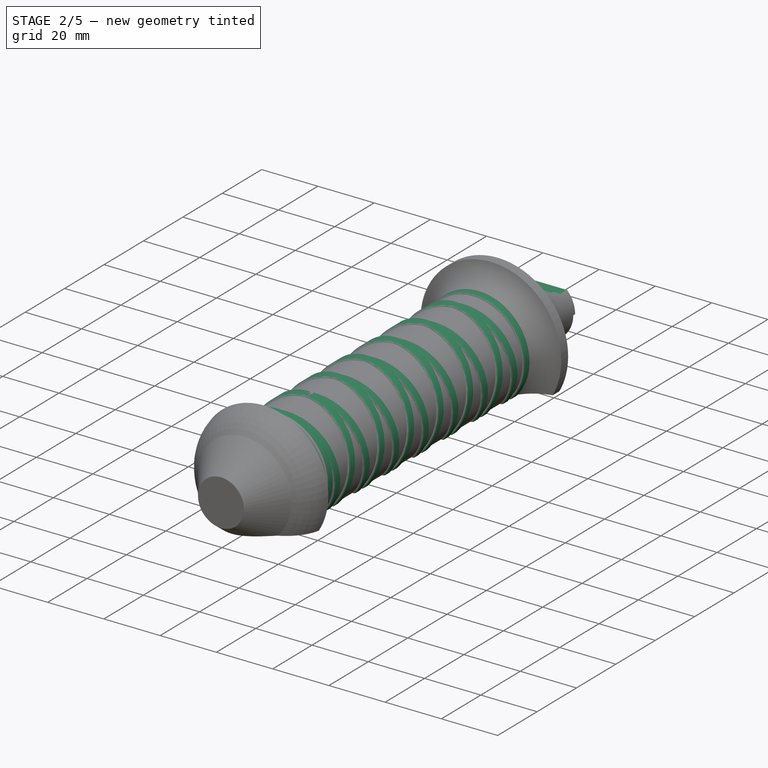
[diagram: stage 2 of 5 — iso view after this stage's code; geometry added in this stage tinted green]
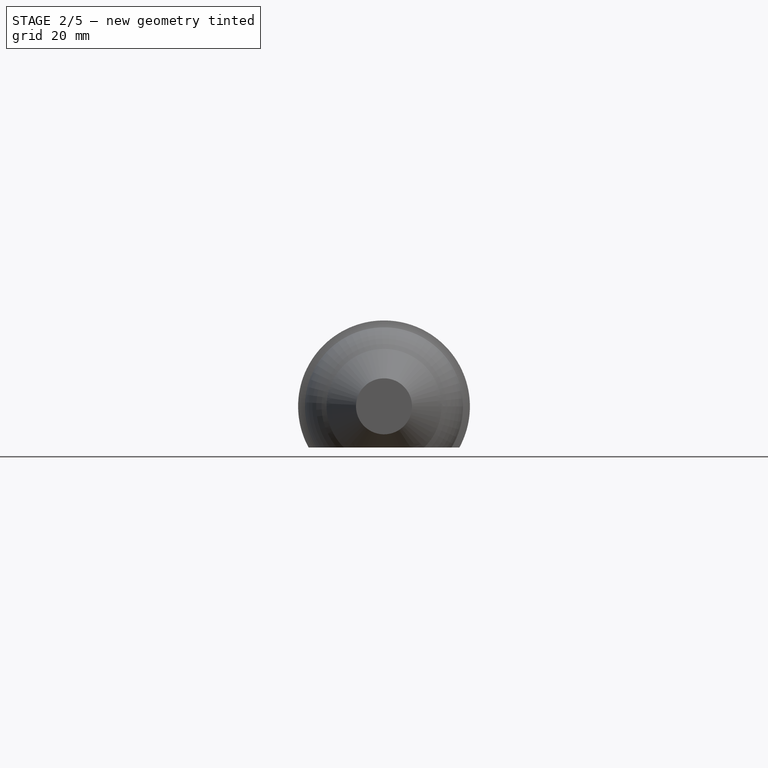
[diagram: stage 2 of 5 — front view after this stage's code; geometry added in this stage tinted green]
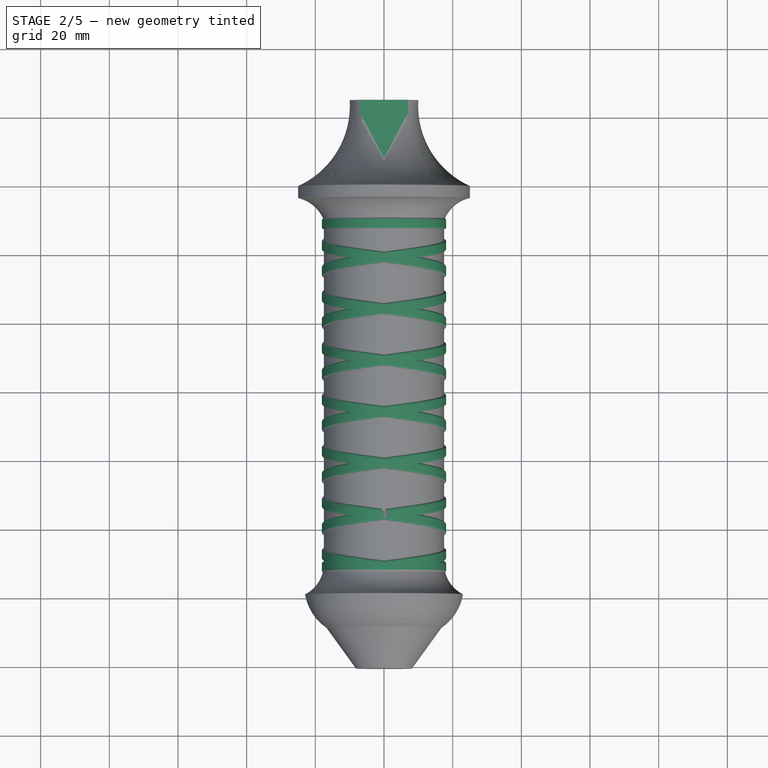
[diagram: stage 2 of 5 — top view after this stage's code; geometry added in this stage tinted green]
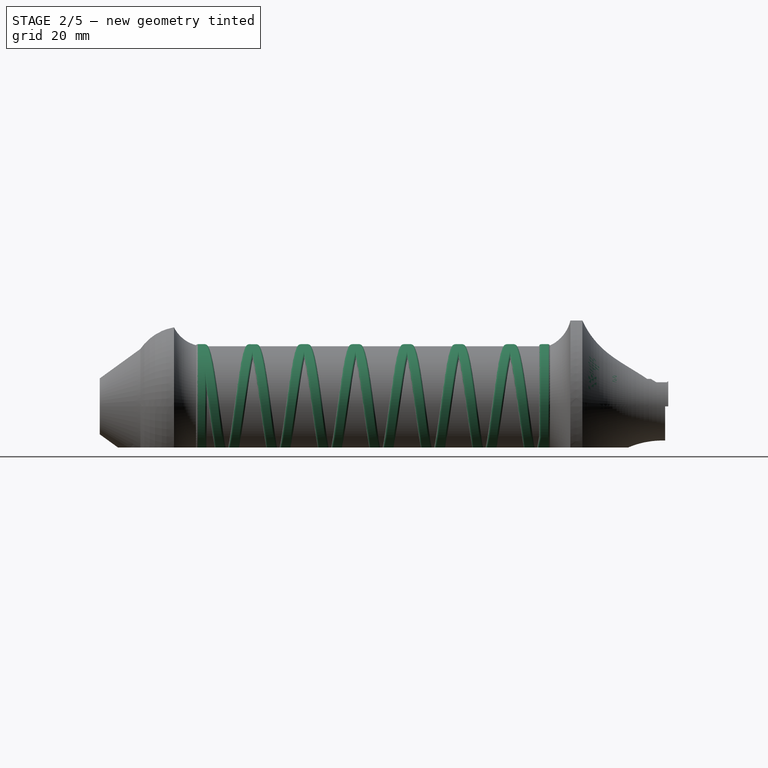
[diagram: stage 2 of 5 — right view after this stage's code; geometry added in this stage tinted green]
FEATURE [PartDesign::Body] Body003  label="Diamond"
  AllowCompound = true
  Group = -> [Sketch012,Sketch014,AdditiveLoft]
  Origin = -> Origin004
  Tip = -> AdditiveLoft
FEATURE [Sketcher::SketchObject] Sketch015
  ArcFitTolerance = 1e-06
  AttachmentSupport = -> [YZ_Plane005]
  FullyConstrained = true
  MakeInternals = false
  MapMode = 5
  Placement = pos=(0,0,0) rot=(0.57735,0.57735,0.57735;2.0944rad)
  sketch-geometry (4):
    g0: ArcOfCircle CenterX=-52 CenterY=17.5 CenterZ=0 NormalX=0 NormalY=0 NormalZ=1 AngleXU=0 Radius=0.6 StartAngle=1.5708 EndAngle=4.71239
    g1: ArcOfCircle CenterX=-50 CenterY=17.5 CenterZ=0 NormalX=0 NormalY=0 NormalZ=1 AngleXU=0 Radius=0.6 StartAngle=4.71239 EndAngle=7.85398
    g2: LineSegment StartX=-52 StartY=18.1 StartZ=0 EndX=-50 EndY=18.1 EndZ=0
    g3: LineSegment StartX=-52 StartY=16.9 StartZ=0 EndX=-50 EndY=16.9 EndZ=0
  constraints (10):
    c: Tangent(g0,g2) = 1.5708
    c: Tangent(g0,g3) = -1.5708
    c: Tangent(g1,g2) = 1.5708
    c: Tangent(g1,g3) = -1.5708
    c: Equal(g0,g1)
    c: Horizontal(g2)
    c: DistanceX(g0,g1) = 2
    c: DistanceY(g1,g1) = 1.2
    c: DistanceY(g-1,g0) = 17.5
    c: DistanceX(g1,g-1) = 50
FEATURE [PartDesign::Revolution] Revolution001
  Angle = 360
  Angle2 = 60
  Axis = (0,1,0)
  Base = (0,0,0)
  Placement = pos=(0,0,0) rot=(1,1,1;2.0944rad)
  Profile = -> Sketch015
  ReferenceAxis = -> Sketch015 [H_Axis]
  Refine = true
  Suppressed = false
  Type = 0
FEATURE [Sketcher::SketchObject] Sketch016
  ArcFitTolerance = 1e-06
  AttachmentSupport = -> [YZ_Plane005]
  FullyConstrained = true
  MakeInternals = false
  MapMode = 5
  Placement = pos=(0,0,0) rot=(0.57735,0.57735,0.57735;2.0944rad)
  sketch-geometry (4):
    g0: ArcOfCircle CenterX=48 CenterY=17.5 CenterZ=0 NormalX=0 NormalY=0 NormalZ=1 AngleXU=0 Radius=0.6 StartAngle=1.5708 EndAngle=4.71239
    g1: ArcOfCircle CenterX=50 CenterY=17.5 CenterZ=0 NormalX=0 NormalY=0 NormalZ=1 AngleXU=0 Radius=0.6 StartAngle=4.71239 EndAngle=7.85398
    g2: LineSegment StartX=48 StartY=18.1 StartZ=0 EndX=50 EndY=18.1 EndZ=0
    g3: LineSegment StartX=48 StartY=16.9 StartZ=0 EndX=50 EndY=16.9 EndZ=0
  constraints (10):
    c: Tangent(g0,g2) = 1.5708
    c: Tangent(g0,g3) = -1.5708
    c: Tangent(g1,g2) = 1.5708
    c: Tangent(g1,g3) = -1.5708
    c: Equal(g0,g1)
    c: Horizontal(g2)
    c: DistanceX(g0,g1) = 2
    c: DistanceY(g1,g1) = 1.2
    c: DistanceY(g-1,g0) = 17.5
    c: DistanceX(g-1,g0) = 48
FEATURE [PartDesign::Revolution] Revolution002
  Angle = 360
  Angle2 = 60
  Axis = (0,1,0)
  Base = (0,0,0)
  BaseFeature = -> Revolution001
  Placement = pos=(0,0,0) rot=(1,1,1;2.0944rad)
  Profile = -> Sketch016
  ReferenceAxis = -> Sketch016 [H_Axis]
  Refine = true
  Suppressed = false
  Type = 0
FEATURE [Sketcher::SketchObject] Sketch017
  ArcFitTolerance = 1e-06
  AttachmentSupport = -> [YZ_Plane005]
  FullyConstrained = true
  MakeInternals = false
  MapMode = 5
  Placement = pos=(0,0,0) rot=(0.57735,0.57735,0.57735;2.0944rad)
  sketch-geometry (4):
    g0: ArcOfCircle CenterX=-52 CenterY=17.5 CenterZ=0 NormalX=0 NormalY=0 NormalZ=1 AngleXU=0 Radius=0.6 StartAngle=1.5708 EndAngle=4.71239
    g1: ArcOfCircle CenterX=-50 CenterY=17.5 CenterZ=0 NormalX=0 NormalY=0 NormalZ=1 AngleXU=0 Radius=0.6 StartAngle=4.71239 EndAngle=7.85398
    g2: LineSegment StartX=-52 StartY=18.1 StartZ=0 EndX=-50 EndY=18.1 EndZ=0
    g3: LineSegment StartX=-52 StartY=16.9 StartZ=0 EndX=-50 EndY=16.9 EndZ=0
  constraints (10):
    c: Tangent(g0,g2) = 1.5708
    c: Tangent(g0,g3) = -1.5708
    c: Tangent(g1,g2) = 1.5708
    c: Tangent(g1,g3) = -1.5708
    c: Equal(g0,g1)
    c: Horizontal(g2)
    c: DistanceX(g0,g1) = 2
    c: DistanceY(g1,g1) = 1.2
    c: DistanceY(g-1,g0) = 17.5
    c: DistanceX(g1,g-1) = 50
FEATURE [PartDesign::AdditiveHelix] AdditiveHelix
  Angle = 0
  Axis = (0,1,0)
  Base = (0,0,0)
  BaseFeature = -> Revolution002
  Growth = 0
  HasBeenEdited = true
  Height = 100
  LeftHanded = false
  Mode = 0
  Outside = false
  Pitch = 15
  Placement = pos=(0,0,0) rot=(1,1,1;2.0944rad)
  Profile = -> Sketch017
  ReferenceAxis = -> Sketch017 [H_Axis]
  Refine = true
  Suppressed = false
  Tolerance = 0.1
  Turns = 6.66667
FEATURE [Sketcher::SketchObject] Sketch018
  ArcFitTolerance = 1e-06
  AttachmentSupport = -> [YZ_Plane005]
  FullyConstrained = true
  MakeInternals = false
  MapMode = 5
  Placement = pos=(0,0,0) rot=(0.57735,0.57735,0.57735;2.0944rad)
  sketch-geometry (4):
    g0: ArcOfCircle CenterX=-52 CenterY=17.5 CenterZ=0 NormalX=0 NormalY=0 NormalZ=1 AngleXU=0 Radius=0.6 StartAngle=1.5708 EndAngle=4.71239
    g1: ArcOfCircle CenterX=-50 CenterY=17.5 CenterZ=0 NormalX=0 NormalY=0 NormalZ=1 AngleXU=0 Radius=0.6 StartAngle=4.71239 EndAngle=7.85398
    g2: LineSegment StartX=-52 StartY=18.1 StartZ=0 EndX=-50 EndY=18.1 EndZ=0
    g3: LineSegment StartX=-52 StartY=16.9 StartZ=0 EndX=-50 EndY=16.9 EndZ=0
  constraints (10):
    c: Tangent(g0,g2) = 1.5708
    c: Tangent(g0,g3) = -1.5708
    c: Tangent(g1,g2) = 1.5708
    c: Tangent(g1,g3) = -1.5708
    c: Equal(g0,g1)
    c: Horizontal(g2)
    c: DistanceX(g0,g1) = 2
    c: DistanceY(g1,g1) = 1.2
    c: DistanceY(g-1,g0) = 17.5
    c: DistanceX(g1,g-1) = 50
FEATURE [PartDesign::AdditiveHelix] AdditiveHelix001
  Angle = 0
  Axis = (0,1,0)
  Base = (0,0,0)
  BaseFeature = -> AdditiveHelix
  Growth = 0
  HasBeenEdited = true
  Height = 100
  LeftHanded = true
  Mode = 0
  Outside = false
  Pitch = 15
  Placement = pos=(0,0,0) rot=(1,1,1;2.0944rad)
  Profile = -> Sketch018
  ReferenceAxis = -> Sketch018 [H_Axis]
  Refine = true
  Suppressed = false
  Tolerance = 0.1
  Turns = 6.66667
FEATURE [Sketcher::SketchObject] Sketch024
  ArcFitTolerance = 1e-06
  AttachmentOffset = pos=(0,0,-12) rot=(0,0,1;0rad)
  AttachmentSupport = -> [XY_Plane005]
  FullyConstrained = false
  MakeInternals = false
  MapMode = 5
  Placement = pos=(0,0,-12) rot=(0,0,1;0rad)
  sketch-geometry (4):
    g0: LineSegment StartX=-66.1141 StartY=83.0367 StartZ=0 EndX=-66.1141 EndY=-96.7387 EndZ=0
    g1: LineSegment StartX=-66.1141 StartY=-96.7387 StartZ=0 EndX=72.9518 EndY=-96.7387 EndZ=0
    g2: LineSegment StartX=72.9518 StartY=-96.7387 StartZ=0 EndX=72.9518 EndY=83.0367 EndZ=0
    g3: LineSegment StartX=72.9518 StartY=83.0367 StartZ=0 EndX=-66.1141 EndY=83.0367 EndZ=0
  constraints (8):
    c: Coincident(g0,g1)
    c: Coincident(g1,g2)
    c: Coincident(g2,g3)
    c: Coincident(g3,g0)
    c: Vertical(g0)
    c: Vertical(g2)
    c: Horizontal(g1)
    c: Horizontal(g3)
FEATURE [PartDesign::Pocket] Pocket007
  BaseFeature = -> AdditiveHelix001
  Direction = (0,0,-1)
  Length = 13
  Length2 = 5
  Placement = pos=(0,0,0) rot=(1,1,1;2.0944rad)
  Profile = -> Sketch024
  ReferenceAxis = -> Sketch024 [N_Axis]
  Refine = true
  Suppressed = false
  Type = 0
FEATURE [Sketcher::SketchObject] Sketch029
  ArcFitTolerance = 1e-06
  AttachmentOffset = pos=(0,0,56) rot=(0,0,1;0rad)
  AttachmentSupport = -> [XZ_Plane001]
  FullyConstrained = false
  MakeInternals = false
  MapMode = 5
  Placement = pos=(0,-56,1.24e-14) rot=(1,0,0;1.5708rad)
  sketch-geometry (4):
    g0: LineSegment StartX=-2.54114 StartY=8.75069 StartZ=0 EndX=-2.54114 EndY=6.60069 EndZ=0
    g1: LineSegment StartX=-2.54114 StartY=6.60069 StartZ=0 EndX=2.54114 EndY=6.60069 EndZ=0
    g2: LineSegment StartX=2.54114 StartY=6.60069 StartZ=0 EndX=2.54114 EndY=8.75069 EndZ=0
    g3: LineSegment StartX=2.54114 StartY=8.75069 StartZ=0 EndX=-2.54114 EndY=8.75069 EndZ=0
  constraints (8):
    c: Coincident(g0,g1)
    c: Coincident(g1,g2)
    c: Coincident(g2,g3)
    c: Coincident(g3,g0)
    c: Vertical(g0)
    c: Vertical(g2)
    c: Horizontal(g1)
    c: Horizontal(g3)
FEATURE [PartDesign::Pocket] Pocket009  label="Battery Roof Bar"
  BaseFeature = -> Pocket008
  Direction = (0,1,-2e-16)
  Length = 119
  Length2 = 5
  Profile = -> Sketch029
  ReferenceAxis = -> Sketch029 [N_Axis]
  Refine = true
  Suppressed = false
  Type = 0
FEATURE [PartDesign::Body] Body006  label="RoundedBit"
  AllowCompound = true
  Group = -> [Sketch030,Revolution003,Sketch035,Pocket011,Binder004,Sketch038,Pocket012,Sketch039,Pocket013,Sketch040,Pocket014,Sketch046,Pocket017,Sketch047,Pocket018,Fillet]
  Origin = -> Origin018
  Tip = -> Fillet
FEATURE [App::Part] Part002  label="Battery Lid"
  Group = -> [Body006,Body007]
  Origin = -> Origin017
FEATURE [Sketcher::SketchObject] Sketch048
  ArcFitTolerance = 1e-06
  AttachmentOffset = pos=(0,0,-13) rot=(0,0,1;0rad)
  AttachmentSupport = -> [XY_Plane001]
  FullyConstrained = true
  MakeInternals = false
  MapMode = 5
  Placement = pos=(0,0,-13) rot=(0,0,1;0rad)
  sketch-geometry (2):
    g0: Circle CenterX=0 CenterY=62 CenterZ=0 NormalX=0 NormalY=0 NormalZ=1 AngleXU=0 Radius=2
    g1: Circle CenterX=0 CenterY=-63 CenterZ=0 NormalX=0 NormalY=0 NormalZ=1 AngleXU=0 Radius=2
  constraints (6):
    c: PointOnObject(g0,g-2)
    c: PointOnObject(g1,g-2)
    c: Diameter(g1) = 4
    c: Diameter(g0) = 4
    c: DistanceY(g-1,g0) = 62
    c: DistanceY(g1,g-1) = 63
FEATURE [PartDesign::Pocket] Pocket019  label="Heat Set Inserts"
  BaseFeature = -> Pocket009
  Direction = (0,0,-1)
  Length = 5
  Length2 = 5
  Profile = -> Sketch048
  ReferenceAxis = -> Sketch048 [N_Axis]
  Refine = true
  Reversed = true
  Suppressed = false
  Type = 0
FEATURE [PartDesign::Body] Body010  label="BatteryContactTest"
  AllowCompound = true
  Group = -> [Sketch049,Pad008,Sketch050,Pad009,Sketch051,Pocket020,Sketch052,Pocket021,Sketch053,Pocket022,Sketch054,Pocket023,Sketch055,Pad010,Sketch056,Pad011,Sketch057,Pocket024,Sketch058,Pocket025,Sketch059,Pocket026]
  Origin = -> Origin023
  Tip = -> Pocket026
FEATURE [Sketcher::SketchObject] Sketch060
  ArcFitTolerance = 1e-06
  AttachmentSupport = -> [YZ_Plane001]
  ExternalGeometry = -> [Pocket019]
  FullyConstrained = false
  MakeInternals = false
  MapMode = 5
  Placement = pos=(0,0,0) rot=(0.57735,0.57735,0.57735;2.0944rad)
  sketch-geometry (6):
    g0: LineSegment StartX=-51.46 StartY=6.1181 StartZ=0 EndX=-51.46 EndY=-7.00052 EndZ=0
    g1: LineSegment StartX=-51.46 StartY=-7.00052 StartZ=0 EndX=-51.46 EndY=-7.00052 EndZ=0
    g2: LineSegment StartX=-49.46 StartY=-6.8819 StartZ=0 EndX=-49.46 EndY=6.1181 EndZ=0
    g3: LineSegment StartX=-49.46 StartY=6.1181 StartZ=0 EndX=-51.46 EndY=6.1181 EndZ=0
    g4: LineSegment StartX=-49.46 StartY=-6.8819 StartZ=0 EndX=-51.46 EndY=-8.8819 EndZ=0
    g5: LineSegment StartX=-51.46 StartY=-8.8819 StartZ=0 EndX=-51.46 EndY=-7.00052 EndZ=0
  constraints (17):
    c: Coincident(g0,g1)
    c: Coincident(g2,g3)
    c: Coincident(g3,g0)
    c: Vertical(g0)
    c: Horizontal(g1)
    c: Horizontal(g3)
    c: PointOnObject(g0,g-3)
    c: DistanceY(g2,g2) = 13
    c: DistanceX(g3,g3) = 2
    c: Coincident(g2,g4)
    c: PointOnObject(g4,g-3)
    c: Coincident(g4,g5)
    c: Coincident(g5,g0)
    c: PointOnObject(g1,g5)
    c: Angle(g2,g4) = 2.35619
    c: Vertical(g2)
    c: DistanceY(g0,g-4) = 0.482592
FEATURE [PartDesign::Pad] Pad012  label="Double Battery Support"
  BaseFeature = -> Pocket019
  Direction = (1,0,0)
  Length = 30
  Length2 = 10
  Midplane = true
  Profile = -> Sketch060
  ReferenceAxis = -> Sketch060 [N_Axis]
  Refine = true
  Suppressed = false
  Type = 0
FEATURE [Sketcher::SketchObject] Sketch061
  ArcFitTolerance = 1e-06
  AttachmentSupport = -> [XY_Plane001]
  ExternalGeometry = -> [Pad012]
  FullyConstrained = true
  MakeInternals = false
  MapMode = 5
  sketch-geometry (8):
    g0: LineSegment StartX=-12.5 StartY=-49.46 StartZ=0 EndX=-12.5 EndY=-50.46 EndZ=0
    g1: LineSegment StartX=12.5 StartY=-50.46 StartZ=0 EndX=12.5 EndY=-49.46 EndZ=0
    g2: LineSegment StartX=12.5 StartY=-49.46 StartZ=0 EndX=-12.5 EndY=-49.46 EndZ=0
    g3: LineSegment StartX=-14.25 StartY=-50.46 StartZ=0 EndX=-14.25 EndY=-51.56 EndZ=0
    g4: LineSegment StartX=-14.25 StartY=-51.56 StartZ=0 EndX=14.25 EndY=-51.56 EndZ=0
    g5: LineSegment StartX=14.25 StartY=-51.56 StartZ=0 EndX=14.25 EndY=-50.46 EndZ=0
    g6: LineSegment StartX=-12.5 StartY=-50.46 StartZ=0 EndX=-14.25 EndY=-50.46 EndZ=0
    g7: LineSegment StartX=12.5 StartY=-50.46 StartZ=0 EndX=14.25 EndY=-50.46 EndZ=0
  constraints (23):
    c: Coincident(g1,g2)
    c: Coincident(g2,g0)
    c: Vertical(g0)
    c: Vertical(g1)
    c: PointOnObject(g0,g-3)
    c: Symmetric(g0,g1,g-2)
    c: DistanceX(g2,g2) = 25
    c: DistanceY(g1,g1) = 1
    c: Coincident(g3,g4)
    c: Coincident(g4,g5)
    c: Coincident(g6,g3)
    c: Vertical(g3)
    c: Vertical(g5)
    c: Horizontal(g4)
    c: Horizontal(g3,g0)
    c: Symmetric(g3,g5,g-2)
    c: DistanceY(g5,g5) = 1.1
    c: DistanceX(g4,g4) = 28.5
    c: Coincident(g7,g1)
    c: Coincident(g7,g5)
    c: Horizontal(g7)
    c: Coincident(g0,g6)
    c: DistanceY(g4,g-1) = 51.56
FEATURE [PartDesign::Pocket] Pocket027  label="Double Battery Cutout"
  BaseFeature = -> Pad012
  Direction = (0,0,-1)
  Length = 13
  Length2 = 5
  Midplane = true
  Profile = -> Sketch061
  ReferenceAxis = -> Sketch061 [N_Axis]
  Refine = true
  Suppressed = false
  Type = 0
FEATURE [Sketcher::SketchObject] Sketch062
  ArcFitTolerance = 1e-06
  AttachmentOffset = pos=(0,0,6) rot=(0,0,1;0rad)
  AttachmentSupport = -> [XY_Plane001]
  FullyConstrained = false
  MakeInternals = false
  MapMode = 5
  Placement = pos=(0,0,6) rot=(0,0,1;0rad)
  sketch-geometry (6):
    g0: LineSegment StartX=-14.25 StartY=-50.4 StartZ=0 EndX=-14.25 EndY=-51.5 EndZ=0
    g1: LineSegment StartX=-14.25 StartY=-51.5 StartZ=0 EndX=14.25 EndY=-51.5 EndZ=0
    g2: LineSegment StartX=14.25 StartY=-51.5 StartZ=0 EndX=14.25 EndY=-50.4 EndZ=0
    g3: LineSegment StartX=-12.5 StartY=-50.4 StartZ=0 EndX=-14.25 EndY=-50.4 EndZ=0
    g4: LineSegment StartX=12.5 StartY=-50.4 StartZ=0 EndX=14.25 EndY=-50.4 EndZ=0
    g5: LineSegment StartX=-12.5 StartY=-50.4 StartZ=0 EndX=12.5 EndY=-50.4 EndZ=0
  constraints (15):
    c: Coincident(g0,g1)
    c: Coincident(g1,g2)
    c: Coincident(g3,g0)
    c: Vertical(g0)
    c: Vertical(g2)
    c: Horizontal(g1)
    c: Symmetric(g0,g2,g-2)
    c: DistanceY(g2,g2) = 1.1
    c: DistanceX(g1,g1) = 28.5
    c: Coincident(g4,g2)
    c: Horizontal(g4)
    c: Coincident(g5,g3)
    c: Coincident(g5,g4)
    c: Horizontal(g5)
    c: DistanceY(g1,g-1) = 51.5
FEATURE [PartDesign::Pocket] Pocket028  label="Double Battery Insert Cutout"
  BaseFeature = -> Pocket027
  Direction = (0,0,-1)
  Length = 3
  Length2 = 5
  Profile = -> Sketch062
  ReferenceAxis = -> Sketch062 [N_Axis]
  Refine = true
  Reversed = true
  Suppressed = false
  Type = 0
FEATURE [Sketcher::SketchObject] Sketch063
  ArcFitTolerance = 1e-06
  AttachmentSupport = -> [YZ_Plane001]
  ExternalGeometry = -> [Pocket028]
  FullyConstrained = false
  MakeInternals = false
  MapMode = 5
  Placement = pos=(0,0,0) rot=(0.57735,0.57735,0.57735;2.0944rad)
  sketch-geometry (4):
    g0: LineSegment StartX=57.54 StartY=6.6007 StartZ=0 EndX=57.54 EndY=-8.8819 EndZ=0
    g1: LineSegment StartX=57.54 StartY=-8.8819 StartZ=0 EndX=55.54 EndY=-6.8819 EndZ=0
    g2: LineSegment StartX=55.54 StartY=-6.8819 StartZ=0 EndX=55.54 EndY=6.6007 EndZ=0
    g3: LineSegment StartX=55.54 StartY=6.6007 StartZ=0 EndX=57.54 EndY=6.6007 EndZ=0
  constraints (11):
    c: Vertical(g0)
    c: Coincident(g0,g1)
    c: Coincident(g1,g2)
    c: Vertical(g2)
    c: Coincident(g2,g3)
    c: Coincident(g3,g0)
    c: Horizontal(g3)
    c: Angle(g1,g2) = 2.35619
    c: DistanceX(g-4,g1) = 105
    c: Horizontal(g-4,g1)
    c: DistanceX(g3,g3) = 2
FEATURE [PartDesign::Pad] Pad013  label="Dual Single Battery Support"
  BaseFeature = -> Pocket028
  Direction = (1,0,0)
  Length = 30
  Length2 = 10
  Midplane = true
  Profile = -> Sketch063
  ReferenceAxis = -> Sketch063 [N_Axis]
  Refine = true
  Suppressed = false
  Type = 0
FEATURE [Sketcher::SketchObject] Sketch064
  ArcFitTolerance = 1e-06
  AttachmentSupport = -> [XY_Plane001]
  ExternalGeometry = -> [Pad013]
  FullyConstrained = false
  MakeInternals = false
  MapMode = 5
  sketch-geometry (36):
    g0: LineSegment [constr] StartX=-12.5 StartY=-49.46 StartZ=0 EndX=-12.5 EndY=-50.46 EndZ=0
    g1: LineSegment [constr] StartX=12.5 StartY=-50.46 StartZ=0 EndX=12.5 EndY=-49.46 EndZ=0
    g2: LineSegment [constr] StartX=12.5 StartY=-49.46 StartZ=0 EndX=-12.5 EndY=-49.46 EndZ=0
    g3: LineSegment [constr] StartX=-14.25 StartY=-50.46 StartZ=0 EndX=-14.25 EndY=-51.56 EndZ=0
    g4: LineSegment [constr] StartX=-14.25 StartY=-51.56 StartZ=0 EndX=14.25 EndY=-51.56 EndZ=0
    g5: LineSegment [constr] StartX=14.25 StartY=-51.56 StartZ=0 EndX=14.25 EndY=-50.46 EndZ=0
    g6: LineSegment [constr] StartX=-12.5 StartY=-50.46 StartZ=0 EndX=-14.25 EndY=-50.46 EndZ=0
    g7: LineSegment [constr] StartX=12.5 StartY=-50.46 StartZ=0 EndX=14.25 EndY=-50.46 EndZ=0
    g8: LineSegment StartX=-3 StartY=55.54 StartZ=0 EndX=-3 EndY=56.54 EndZ=0
    g9: LineSegment StartX=-12 StartY=56.54 StartZ=0 EndX=-12 EndY=55.54 EndZ=0
    g10: LineSegment StartX=-12 StartY=55.54 StartZ=0 EndX=-3 EndY=55.54 EndZ=0
    g11: LineSegment StartX=-14 StartY=57.64 StartZ=0 EndX=-14 EndY=56.54 EndZ=0
    g12: LineSegment StartX=-14 StartY=56.54 StartZ=0 EndX=-12 EndY=56.54 EndZ=0
    g13: LineSegment StartX=-3 StartY=56.54 StartZ=0 EndX=-1 EndY=56.54 EndZ=0
    g14: LineSegment StartX=-1 StartY=57.64 StartZ=0 EndX=-1 EndY=56.54 EndZ=0
    g15: LineSegment StartX=-14 StartY=57.64 StartZ=0 EndX=-9 EndY=57.64 EndZ=0
    g16: LineSegment StartX=-1 StartY=57.64 StartZ=0 EndX=-6 EndY=57.64 EndZ=0
    g17: ArcOfCircle CenterX=-5.27457 CenterY=57.8893 CenterZ=0 NormalX=0 NormalY=0 NormalZ=1 AngleXU=0 Radius=0.76706 StartAngle=1.8666 EndAngle=3.47258
    g18: ArcOfCircle CenterX=-8.19795 CenterY=57.64 CenterZ=0 NormalX=0 NormalY=0 NormalZ=1 AngleXU=0 Radius=0.802053 StartAngle=3.13046 EndAngle=3.14159
    g19: LineSegment StartX=-8.99995 StartY=57.6489 StartZ=0 EndX=-8.92397 EndY=64.4737 EndZ=0
    g20: LineSegment StartX=-5.49818 StartY=58.623 StartZ=0 EndX=0 EndY=60.2986 EndZ=0
    g21: LineSegment StartX=-8.92397 StartY=64.4737 StartZ=0 EndX=0 EndY=71.4039 EndZ=0
    g22: LineSegment StartX=3 StartY=55.54 StartZ=0 EndX=3 EndY=56.54 EndZ=0
    g23: LineSegment StartX=12 StartY=56.54 StartZ=0 EndX=12 EndY=55.54 EndZ=0
    g24: LineSegment StartX=12 StartY=55.54 StartZ=0 EndX=3 EndY=55.54 EndZ=0
    g25: LineSegment StartX=14 StartY=57.64 StartZ=0 EndX=14 EndY=56.54 EndZ=0
    g26: LineSegment StartX=14 StartY=56.54 StartZ=0 EndX=12 EndY=56.54 EndZ=0
    g27: LineSegment StartX=3 StartY=56.54 StartZ=0 EndX=1 EndY=56.54 EndZ=0
    g28: LineSegment StartX=1 StartY=57.64 StartZ=0 EndX=1 EndY=56.54 EndZ=0
    g29: LineSegment StartX=14 StartY=57.64 StartZ=0 EndX=9.02184 EndY=57.64 EndZ=0
    g30: LineSegment StartX=1 StartY=57.64 StartZ=0 EndX=6.01036 EndY=57.64 EndZ=0
    g31: ArcOfCircle CenterX=5.28012 CenterY=57.8878 CenterZ=0 NormalX=0 NormalY=0 NormalZ=1 AngleXU=0 Radius=0.771129 StartAngle=5.9561 EndAngle=7.55891
    g32: ArcOfCircle CenterX=8.2227 CenterY=57.679 CenterZ=0 NormalX=0 NormalY=0 NormalZ=1 AngleXU=0 Radius=0.8001 StartAngle=6.23438 EndAngle=6.27458
    g33: LineSegment StartX=9.02277 StartY=57.6722 StartZ=0 EndX=9.0785 EndY=64.148 EndZ=0
    g34: LineSegment StartX=5.50437 StartY=58.6256 StartZ=0 EndX=0 EndY=60.2986 EndZ=0
    g35: LineSegment StartX=9.0785 StartY=64.148 StartZ=0 EndX=0 EndY=71.4039 EndZ=0
  constraints (85):
    c: Coincident(g1,g2)
    c: Coincident(g2,g0)
    c: Vertical(g0)
    c: Vertical(g1)
    c: Symmetric(g0,g1,g-2)
    c: DistanceX(g2,g2) = 25
    c: DistanceY(g1,g1) = 1
    c: Coincident(g3,g4)
    c: Coincident(g4,g5)
    c: Coincident(g6,g3)
    c: Vertical(g3)
    c: Vertical(g5)
    c: Horizontal(g4)
    c: Horizontal(g3,g0)
    c: Symmetric(g3,g5,g-2)
    c: DistanceY(g5,g5) = 1.1
    c: DistanceX(g4,g4) = 28.5
    c: Coincident(g7,g1)
    c: Coincident(g7,g5)
    c: Horizontal(g7)
    c: Coincident(g0,g6)
    c: DistanceY(g4,g-1) = 51.56
    c: DistanceY(g-1,g-3) = 55.54
    c: Coincident(g9,g10)
    c: Coincident(g10,g8)
    c: Vertical(g8)
    c: Vertical(g9)
    c: Horizontal(g10)
    c: PointOnObject(g8,g-3)
    c: Coincident(g11,g12)
    c: Vertical(g11)
    c: Horizontal(g12)
    c: Horizontal(g8,g13)
    c: DistanceY(g11,g11) = 1.1
    c: DistanceY(g-3,g11) = 1
    c: PointOnObject(g12,g9)
    c: PointOnObject(g13,g8)
    c: Horizontal(g13)
    c: Coincident(g14,g13)
    c: Vertical(g14)
    c: Distance(g14,g-2) = 1
    c: DistanceX(g11,g13) = 13
    c: DistanceX(g8,g13) = 2
    c: DistanceX(g11,g9) = 2
    c: Coincident(g15,g11)
    c: Horizontal(g15)
    c: Horizontal(g11,g14)
    c: Coincident(g16,g14)
    c: Horizontal(g16)
    c: DistanceX(g15,g16) = 3
    c: Coincident(g17,g16)
    c: Coincident(g18,g15)
    c: DistanceX(g11,g15) = 5
    c: Horizontal(g15,g18)
    c: Tangent(g19,g18) = 1.5708
    c: PointOnObject(g20,g-2)
    c: Tangent(g20,g17) = 1.5708
    c: Coincident(g21,g19)
    c: PointOnObject(g21,g-2)
    c: Coincident(g23,g24)
    c: Coincident(g24,g22)
    c: Vertical(g22)
    c: Vertical(g23)
    c: Horizontal(g24)
    c: Coincident(g25,g26)
    c: Vertical(g25)
    c: Horizontal(g26)
    c: PointOnObject(g26,g23)
    c: PointOnObject(g27,g22)
    c: Horizontal(g27)
    c: Coincident(g28,g27)
    c: Vertical(g28)
    c: Coincident(g29,g25)
    c: Horizontal(g29)
    c: Coincident(g30,g28)
    c: Horizontal(g30)
    c: Coincident(g31,g30)
    c: Coincident(g32,g29)
    c: Tangent(g33,g32) = -1.5708
    c: Tangent(g34,g31) = -1.5708
    c: Coincident(g35,g33)
    c: Coincident(g20,g34)
    c: Coincident(g21,g35)
    c: Horizontal(g14,g28)
    c: Horizontal(g30,g29)
FEATURE [PartDesign::Pocket] Pocket029  label="Dual Single Batt Cutout"
  BaseFeature = -> Pad013
  Direction = (0,0,-1)
  Length = 12
  Length2 = 5
  Midplane = true
  Profile = -> Sketch064
  ReferenceAxis = -> Sketch064 [N_Axis]
  Refine = true
  Suppressed = false
  Type = 0
FEATURE [Sketcher::SketchObject] Sketch065  label="Fix me"
  ArcFitTolerance = 1e-06
  AttachmentOffset = pos=(0,0,4) rot=(0,0,1;0rad)
  AttachmentSupport = -> [XY_Plane001]
  ExternalGeometry = -> [Pocket029]
  FullyConstrained = false
  MakeInternals = false
  MapMode = 5
  Placement = pos=(0,0,4) rot=(0,0,1;0rad)
  sketch-geometry (26):
    g0: LineSegment StartX=-14 StartY=57.64 StartZ=0 EndX=-14 EndY=56.54 EndZ=0
    g1: LineSegment StartX=-14 StartY=56.54 StartZ=0 EndX=-12 EndY=56.54 EndZ=0
    g2: LineSegment StartX=14 StartY=56.54 StartZ=0 EndX=14 EndY=57.6722 EndZ=0
    g3: LineSegment StartX=-3 StartY=55.54 StartZ=0 EndX=-3 EndY=56.54 EndZ=0
    g4: LineSegment StartX=-12 StartY=56.54 StartZ=0 EndX=-12 EndY=55.54 EndZ=0
    g5: LineSegment StartX=-12 StartY=55.54 StartZ=0 EndX=-3 EndY=55.54 EndZ=0
    g6: LineSegment StartX=12 StartY=55.54 StartZ=0 EndX=12 EndY=56.54 EndZ=0
    g7: LineSegment StartX=3 StartY=56.54 StartZ=0 EndX=3 EndY=55.54 EndZ=0
    g8: LineSegment StartX=3 StartY=55.54 StartZ=0 EndX=12 EndY=55.54 EndZ=0
    g9: LineSegment StartX=12 StartY=56.54 StartZ=0 EndX=14 EndY=56.54 EndZ=0
    g10: LineSegment StartX=-14 StartY=57.64 StartZ=0 EndX=-8.99995 EndY=57.6489 EndZ=0
    g11: LineSegment StartX=9.06551 StartY=57.6722 StartZ=0 EndX=14 EndY=57.6722 EndZ=0
    g12: LineSegment StartX=-3 StartY=56.54 StartZ=0 EndX=-1 EndY=56.54 EndZ=0
    g13: LineSegment StartX=-1 StartY=56.54 StartZ=0 EndX=-1 EndY=57.64 EndZ=0
    g14: LineSegment StartX=-1 StartY=57.64 StartZ=0 EndX=-6 EndY=57.64 EndZ=0
    g15: LineSegment StartX=-6 StartY=57.64 StartZ=0 EndX=-5.49818 EndY=58.623 EndZ=0
    g16: LineSegment StartX=1 StartY=57.64 StartZ=0 EndX=1 EndY=56.54 EndZ=0
    g17: LineSegment StartX=1 StartY=56.54 StartZ=0 EndX=3 EndY=56.54 EndZ=0
    g18: LineSegment StartX=1 StartY=57.64 StartZ=0 EndX=6.01036 EndY=57.64 EndZ=0
    g19: LineSegment StartX=6.01036 StartY=57.64 StartZ=0 EndX=5.54541 EndY=58.6268 EndZ=0
    g20: LineSegment StartX=-8.99995 StartY=62.4726 StartZ=0 EndX=0 EndY=62.4106 EndZ=0
    g21: LineSegment StartX=0 StartY=62.4106 StartZ=0 EndX=9.06551 EndY=62.4726 EndZ=0
    g22: LineSegment StartX=-8.99995 StartY=62.4726 StartZ=0 EndX=-8.99995 EndY=57.6489 EndZ=0
    g23: LineSegment StartX=9.06551 StartY=62.4726 StartZ=0 EndX=9.06551 EndY=57.6722 EndZ=0
    g24: LineSegment StartX=-5.49818 StartY=58.623 StartZ=0 EndX=0 EndY=60.0901 EndZ=0
    g25: LineSegment StartX=0 StartY=60.0901 StartZ=0 EndX=5.54541 EndY=58.6268 EndZ=0
  constraints (56):
    c: Coincident(g0,g1)
    c: Coincident(g9,g2)
    c: Vertical(g0)
    c: Vertical(g2)
    c: Horizontal(g1)
    c: Coincident(g0,g-3)
    c: Coincident(g9,g-4)
    c: Coincident(g4,g5)
    c: Coincident(g5,g3)
    c: Vertical(g3)
    c: Vertical(g4)
    c: Horizontal(g5)
    c: Coincident(g3,g-5)
    c: Coincident(g7,g8)
    c: Coincident(g8,g6)
    c: Vertical(g6)
    c: Vertical(g7)
    c: Coincident(g6,g-8)
    c: Coincident(g7,g-7)
    c: Coincident(g0,g10)
    c: Coincident(g10,g-9)
    c: Coincident(g11,g2)
    c: Horizontal(g11)
    c: Coincident(g3,g12)
    c: Coincident(g12,g-17)
    c: Horizontal(g12)
    c: Coincident(g12,g13)
    c: Coincident(g13,g-21)
    c: Coincident(g13,g14)
    c: Coincident(g14,g-21)
    c: Coincident(g14,g15)
    c: Coincident(g15,g-12)
    c: Coincident(g16,g-18)
    c: Coincident(g16,g17)
    c: Coincident(g17,g7)
    c: Horizontal(g17)
    c: Coincident(g16,g18)
    c: Coincident(g18,g-20)
    c: Horizontal(g18)
    c: Coincident(g18,g19)
    c: Coincident(g1,g4)
    c: Coincident(g1,g-6)
    c: Coincident(g6,g9)
    c: PointOnObject(g20,g-2)
    c: Coincident(g20,g21)
    c: Horizontal(g20,g21)
    c: Coincident(g22,g20)
    c: Coincident(g22,g10)
    c: Vertical(g22)
    c: Coincident(g23,g21)
    c: Coincident(g23,g11)
    c: Vertical(g23)
    c: Coincident(g15,g24)
    c: PointOnObject(g24,g-2)
    c: Coincident(g24,g25)
    c: Coincident(g25,g19)
FEATURE [PartDesign::Pocket] Pocket030
  BaseFeature = -> Pocket029
  Direction = (0,0,-1)
  Length = 5
  Length2 = 5
  Profile = -> Sketch065
  ReferenceAxis = -> Sketch065 [N_Axis]
  Refine = true
  Reversed = true
  Suppressed = false
  Type = 0
FEATURE [Sketcher::SketchObject] Sketch066
  ArcFitTolerance = 1e-06
  AttachmentOffset = pos=(0,0,7) rot=(0,0,1;0rad)
  AttachmentSupport = -> [XY_Plane001]
  FullyConstrained = false
  MakeInternals = false
  MapMode = 5
  Placement = pos=(0,0,7) rot=(0,0,1;0rad)
  sketch-geometry (4):
    g0: LineSegment StartX=-7.9 StartY=83 StartZ=0 EndX=0 EndY=68 EndZ=0
    g1: LineSegment StartX=0 StartY=98 StartZ=0 EndX=7.9 EndY=83 EndZ=0
    g2: LineSegment StartX=7.9 StartY=83 StartZ=0 EndX=0 EndY=68 EndZ=0
    g3: LineSegment StartX=-7.9 StartY=83 StartZ=0 EndX=0 EndY=98 EndZ=0
  constraints (10):
    c: PointOnObject(g1,g-2)
    c: Coincident(g1,g2)
    c: Coincident(g0,g2)
    c: Symmetric(g0,g1,g-2)
    c: DistanceY(g-1,g1) = 98
    c: DistanceX(g-1,g1) = 7.9
    c: Coincident(g3,g0)
    c: Coincident(g3,g1)
    c: DistanceY(g0,g1) = 30
    c: DistanceY(g1,g1) = 15
FEATURE [PartDesign::Pocket] Pocket031  label="Diamond Recess"
  BaseFeature = -> Pocket030
  Direction = (0,0,-1)
  Length = 5
  Length2 = 5
  Profile = -> Sketch066
  ReferenceAxis = -> Sketch066 [N_Axis]
  Refine = true
  Reversed = true
  Suppressed = false
  Type = 0
FEATURE [PartDesign::Body] Body014  label="Top Battery Guide V2"
  AllowCompound = true
  Group = -> [Binder010,Sketch079,Pad017,Sketch080,Pad018]
  Origin = -> Origin027
  Tip = -> Pad018
FEATURE [Sketcher::SketchObject] Sketch081
  ArcFitTolerance = 1e-06
  AttachmentOffset = pos=(0,0,-51) rot=(0,0,1;0rad)
  AttachmentSupport = -> [XZ_Plane001]
  FullyConstrained = false
  MakeInternals = false
  MapMode = 5
  Placement = pos=(0,51,-1.13e-14) rot=(1,0,0;1.5708rad)
  sketch-geometry (4):
    g0: LineSegment StartX=-2.44114 StartY=8.70069 StartZ=0 EndX=-2.44114 EndY=6.70069 EndZ=0
    g1: LineSegment StartX=-2.44114 StartY=6.70069 StartZ=0 EndX=2.44114 EndY=6.70069 EndZ=0
    g2: LineSegment StartX=2.44114 StartY=6.70069 StartZ=0 EndX=2.44114 EndY=8.70069 EndZ=0
    g3: LineSegment StartX=2.44114 StartY=8.70069 StartZ=0 EndX=-2.44114 EndY=8.70069 EndZ=0
  constraints (9):
    c: Coincident(g0,g1)
    c: Coincident(g1,g2)
    c: Coincident(g2,g3)
    c: Coincident(g3,g0)
    c: Vertical(g0)
    c: Vertical(g2)
    c: Horizontal(g1)
    c: Symmetric(g0,g2,g-2)
    c: DistanceY(g2,g2) = 2
FEATURE [Sketcher::SketchObject] Sketch082
  ArcFitTolerance = 1e-06
  AttachmentSupport = -> [YZ_Plane001]
  ExternalGeometry = -> [Pocket031]
  FullyConstrained = false
  MakeInternals = false
  MapMode = 5
  Placement = pos=(0,0,0) rot=(0.57735,0.57735,0.57735;2.0944rad)
  sketch-geometry (4):
    g0: LineSegment StartX=62.4106 StartY=9 StartZ=0 EndX=62.4106 EndY=6 EndZ=0
    g1: LineSegment StartX=62.4106 StartY=6 StartZ=0 EndX=68.0477 EndY=6 EndZ=0
    g2: LineSegment StartX=62.4106 StartY=9 StartZ=0 EndX=65.1631 EndY=9 EndZ=0
    g3: LineSegment StartX=65.1631 StartY=9 StartZ=0 EndX=68.0477 EndY=6 EndZ=0
  constraints (8):
    c: Coincident(g-4,g0)
    c: Coincident(g0,g-3)
    c: Coincident(g0,g1)
    c: PointOnObject(g1,g-5)
    c: Coincident(g0,g2)
    c: Horizontal(g2)
    c: Coincident(g2,g3)
    c: Coincident(g3,g1)
FEATURE [PartDesign::Pocket] Pocket037
  BaseFeature = -> Pocket031
  Direction = (-1,0,0)
  Length = 15
  Length2 = 5
  Midplane = true
  Profile = -> Sketch082
  ReferenceAxis = -> Sketch082 [N_Axis]
  Refine = true
  Suppressed = false
  Type = 0
FEATURE [Sketcher::SketchObject] Sketch083
  ArcFitTolerance = 1e-06
  AttachmentOffset = pos=(0,0,4) rot=(0,0,1;0rad)
  AttachmentSupport = -> [XY_Plane001]
  ExternalGeometry = -> [Pocket037]
  FullyConstrained = false
  MakeInternals = false
  MapMode = 5
  Placement = pos=(0,0,4) rot=(0,0,1;0rad)
  sketch-geometry (6):
    g0: LineSegment StartX=-9 StartY=57.64 StartZ=0 EndX=0 EndY=57.64 EndZ=0
    g1: LineSegment StartX=0 StartY=60.2464 StartZ=0 EndX=-9 EndY=60.2464 EndZ=0
    g2: LineSegment StartX=-9 StartY=60.2464 StartZ=0 EndX=-9 EndY=57.64 EndZ=0
    g3: LineSegment StartX=9 StartY=57.64 StartZ=0 EndX=0 EndY=57.64 EndZ=0
    g4: LineSegment StartX=0 StartY=60.2464 StartZ=0 EndX=9 EndY=60.2464 EndZ=0
    g5: LineSegment StartX=9 StartY=60.2464 StartZ=0 EndX=9 EndY=57.64 EndZ=0
  constraints (14):
    c: Coincident(g1,g2)
    c: Coincident(g2,g0)
    c: Horizontal(g0)
    c: Horizontal(g1)
    c: Vertical(g2)
    c: Coincident(g0,g-4)
    c: PointOnObject(g1,g-2)
    c: Coincident(g4,g5)
    c: Coincident(g5,g3)
    c: Horizontal(g3)
    c: Horizontal(g4)
    c: Vertical(g5)
    c: Coincident(g1,g4)
    c: Coincident(g0,g3)
FEATURE [PartDesign::Pad] Pad019
  BaseFeature = -> Pocket037
  Direction = (0,0,1)
  Length = 10
  Length2 = 10
  Profile = -> Sketch083
  ReferenceAxis = -> Sketch083 [N_Axis]
  Refine = true
  Reversed = true
  Suppressed = false
  Type = 0
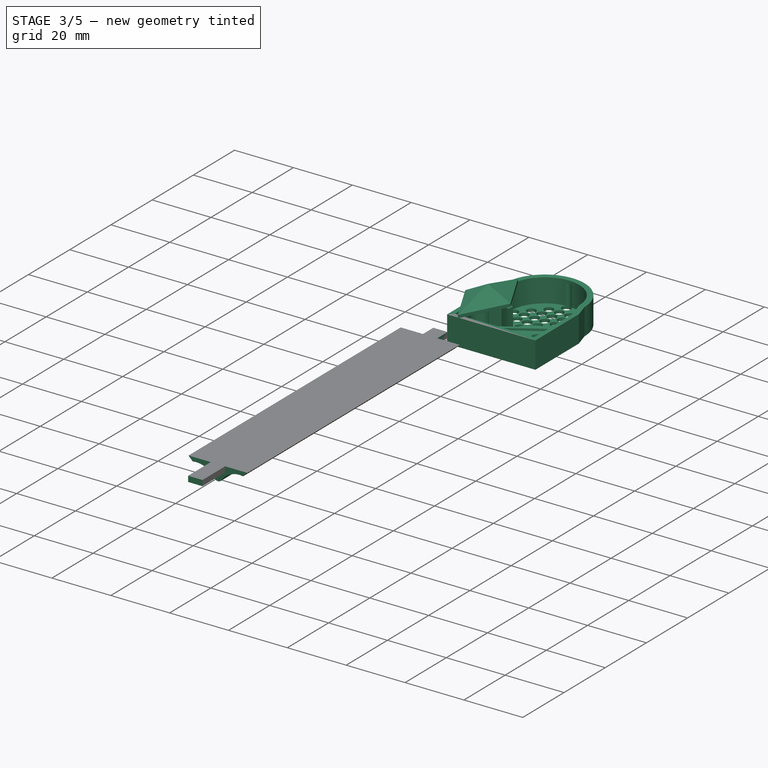
[diagram: stage 3 of 5 — iso view after this stage's code; geometry added in this stage tinted green]
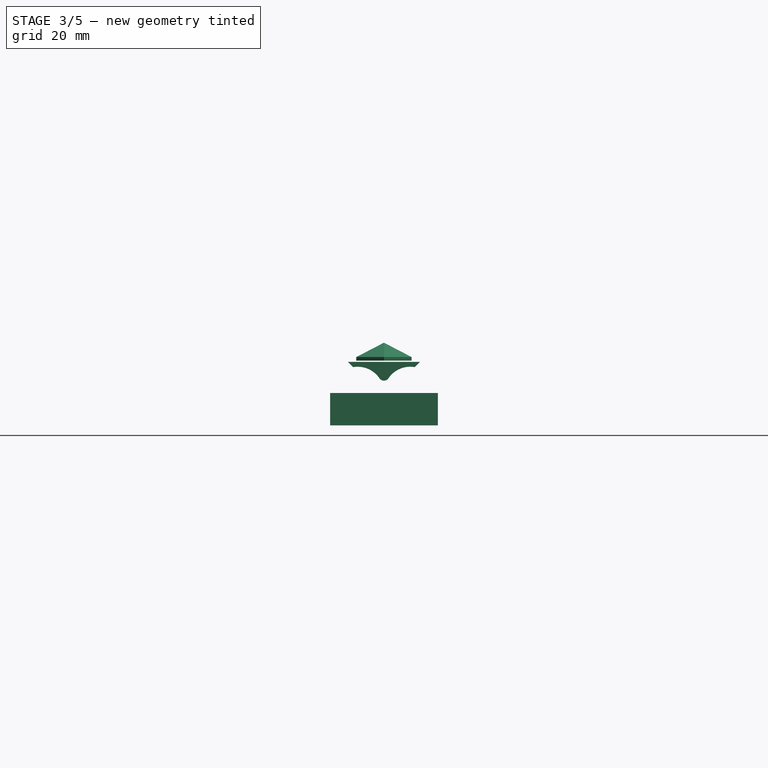
[diagram: stage 3 of 5 — front view after this stage's code; geometry added in this stage tinted green]
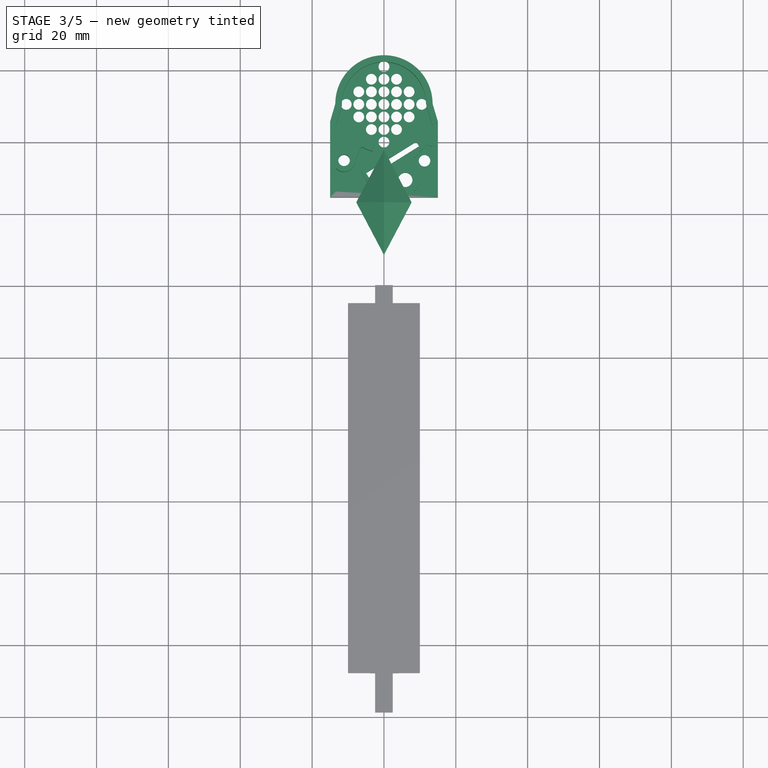
[diagram: stage 3 of 5 — top view after this stage's code; geometry added in this stage tinted green]
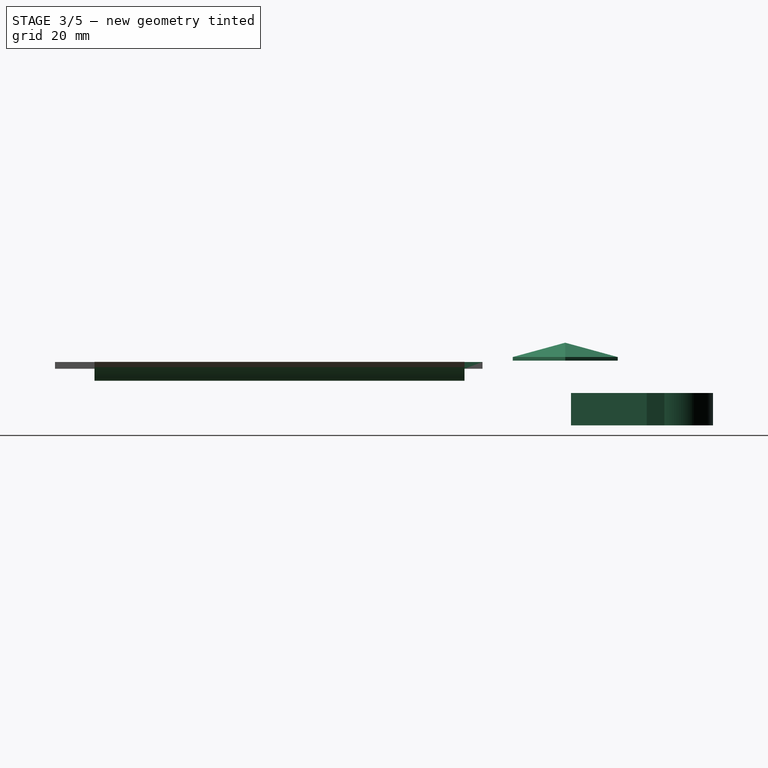
[diagram: stage 3 of 5 — right view after this stage's code; geometry added in this stage tinted green]
FEATURE [Sketcher::SketchObject] Sketch001  label="InnerLower"
  ArcFitTolerance = 1e-06
  AttachmentOffset = pos=(0,0,0) rot=(0,-1,0;0.15708rad)
  AttachmentSupport = -> [YZ_Plane002]
  FullyConstrained = false
  MakeInternals = false
  MapMode = 5
  Placement = pos=(0,0,0) rot=(0.637718,0.544663,0.544663;2.00621rad)
  sketch-geometry (19):
    g0: LineSegment StartX=74.5124 StartY=0 StartZ=0 EndX=79.2425 EndY=9.91974 EndZ=0
    g1: LineSegment StartX=85.8137 StartY=9.96476 StartZ=0 EndX=86.5068 EndY=8.56092 EndZ=0
    g2: LineSegment StartX=88.3306 StartY=7.4275 StartZ=0 EndX=92.0222 EndY=7.42761 EndZ=0
    g3: ArcOfCircle CenterX=82.539 CenterY=8.34785 CenterZ=0 NormalX=0 NormalY=0 NormalZ=1 AngleXU=0 Radius=3.6521 StartAngle=0.458646 EndAngle=2.69665
    g4: GeomPoint [constr] X=82.4817 Y=16.7129 Z=0
    g5: GeomPoint [constr] X=100.651 Y=15.0454 Z=0
    g6: ArcOfCircle CenterX=88.3305 CenterY=9.4614 CenterZ=0 NormalX=0 NormalY=0 NormalZ=1 AngleXU=0 Radius=2.03391 StartAngle=3.60024 EndAngle=4.71242
    g7: GeomPoint [constr] X=87.0665 Y=7.42746 Z=0
    g8: GeomPoint [constr] X=93.3028 Y=7.41221 Z=0
    g9: LineSegment StartX=74.5124 StartY=0 StartZ=0 EndX=79.1575 EndY=-9.92971 EndZ=0
    g10: LineSegment StartX=85.9449 StartY=-9.87659 StartZ=0 EndX=86.4722 EndY=-8.70175 EndZ=0
    g11: LineSegment StartX=88.4642 StartY=-7.41239 StartZ=0 EndX=91.8885 EndY=-7.41239 EndZ=0
    g12: ArcOfCircle CenterX=82.539 CenterY=-8.34785 CenterZ=0 NormalX=0 NormalY=0 NormalZ=1 AngleXU=0 Radius=3.73322 StartAngle=3.57915 EndAngle=5.86128
    g13: GeomPoint [constr] X=82.6091 Y=-17.3082 Z=0
    g14: GeomPoint [constr] X=101.163 Y=-14.8795 Z=0
    g15: ArcOfCircle CenterX=88.4642 CenterY=-9.59588 CenterZ=0 NormalX=0 NormalY=0 NormalZ=1 AngleXU=0 Radius=2.18349 StartAngle=1.5708 EndAngle=2.71969
    g16: GeomPoint [constr] X=87.0509 Y=-7.41239 Z=0
    g17: GeomPoint [constr] X=93.3028 Y=-7.41221 Z=0
    g18: ArcOfCircle CenterX=92.7992 CenterY=0 CenterZ=0 NormalX=0 NormalY=0 NormalZ=1 AngleXU=0 Radius=7.46814 StartAngle=4.59013 EndAngle=7.95821
  constraints (25):
    c: PointOnObject(g0,g-1)
    c: PointOnObject(g4,g0)
    c: PointOnObject(g4,g1)
    c: Tangent(g0,g3) = 1.5708
    c: Tangent(g1,g3) = 1.5708
    c: PointOnObject(g7,g1)
    c: PointOnObject(g7,g2)
    c: Tangent(g1,g6) = -1.5708
    c: Tangent(g2,g6) = -1.5708
    c: Horizontal(g11)
    c: PointOnObject(g13,g9)
    c: PointOnObject(g13,g10)
    c: Tangent(g9,g12) = -1.5708
    c: Tangent(g10,g12) = -1.5708
    c: PointOnObject(g16,g10)
    c: PointOnObject(g16,g11)
    c: Tangent(g10,g15) = 1.5708
    c: Tangent(g11,g15) = 1.5708
    c: Coincident(g9,g0)
    c: Symmetric(g8,g17,g-1)
    c: Symmetric(g3,g12,g-1)
    c: PointOnObject(g18,g-1)
    c: Coincident(g18,g2)
    c: Coincident(g18,g11)
    c: DistanceY(g11,g2) = 14.84
FEATURE [Sketcher::SketchObject] Sketch002  label="OuterLower"
  ArcFitTolerance = 1e-06
  AttachmentOffset = pos=(0,0,-55) rot=(0,0,1;0rad)
  AttachmentSupport = -> [XZ_Plane002]
  FullyConstrained = false
  MakeInternals = false
  MapMode = 5
  Placement = pos=(0,55,-1.22e-14) rot=(1,0,0;1.5708rad)
  sketch-geometry (1):
    g0: Circle CenterX=51.7429 CenterY=0 CenterZ=0 NormalX=0 NormalY=0 NormalZ=1 AngleXU=0 Radius=1
  constraints (1):
    c: Diameter(g0) = 2
FEATURE [Sketcher::SketchObject] Sketch003  label="Arc"
  ArcFitTolerance = 1e-06
  AttachmentSupport = -> [XY_Plane002]
  FullyConstrained = false
  MakeInternals = false
  MapMode = 5
  sketch-geometry (1):
    g0: ArcOfCircle CenterX=9.26917 CenterY=46.1397 CenterZ=0 NormalX=0 NormalY=0 NormalZ=1 AngleXU=0 Radius=43.4172 StartAngle=0.208844 EndAngle=1.45835
FEATURE [PartDesign::AdditivePipe] AdditivePipe
  AuxilleryCurvelinear = true
  AuxillerySpineTangent = false
  Binormal = (0,0,0)
  Mode = 0
  Placement = pos=(0,0,0) rot=(1,1,1;2.0944rad)
  Profile = -> Sketch001
  Refine = true
  Sections = -> [Sketch002]
  Spine = -> Sketch003
  SpineTangent = false
  Suppressed = false
  Transformation = 1
  Transition = 0
FEATURE [Sketcher::SketchObject] Sketch004  label="InnerUpper"
  ArcFitTolerance = 1e-06
  AttachmentOffset = pos=(0,0,0) rot=(0,-1,0;0.15708rad)
  AttachmentSupport = -> [YZ_Plane002]
  FullyConstrained = false
  MakeInternals = false
  MapMode = 5
  Placement = pos=(0,0,0) rot=(0.637718,0.544663,0.544663;2.00621rad)
  sketch-geometry (20):
    g0: LineSegment [constr] StartX=90.1762 StartY=16.3594 StartZ=0 EndX=90.1771 EndY=-14.4859 EndZ=0
    g1: ArcOfCircle [constr] CenterX=82.5389 CenterY=8.36022 CenterZ=0 NormalX=0 NormalY=0 NormalZ=1 AngleXU=0 Radius=3.64672 StartAngle=0.455594 EndAngle=2.6997
    g2: ArcOfCircle [constr] CenterX=88.3632 CenterY=9.51401 CenterZ=0 NormalX=0 NormalY=0 NormalZ=1 AngleXU=0 Radius=2.08677 StartAngle=3.61591 EndAngle=4.69675
    g3: LineSegment [constr] StartX=85.8137 StartY=9.96476 StartZ=0 EndX=86.5068 EndY=8.56092 EndZ=0
    g4: LineSegment [constr] StartX=79.2425 StartY=9.91974 StartZ=0 EndX=74.8618 EndY=0.732718 EndZ=0
    g5: ArcOfCircle [constr] CenterX=82.5387 CenterY=-8.36022 CenterZ=0 NormalX=0 NormalY=0 NormalZ=1 AngleXU=0 Radius=3.64651 StartAngle=3.58348 EndAngle=5.82765
    g6: ArcOfCircle [constr] CenterX=88.3642 CenterY=-9.51401 CenterZ=0 NormalX=0 NormalY=0 NormalZ=1 AngleXU=0 Radius=2.08814 StartAngle=1.58646 EndAngle=2.66734
    g7: LineSegment [constr] StartX=85.8133 StartY=-9.96449 StartZ=0 EndX=86.5065 EndY=-8.56042 EndZ=0
    g8: LineSegment [constr] StartX=79.2424 StartY=-9.91964 StartZ=0 EndX=74.7059 EndY=-1.91141 EndZ=0
    g9: ArcOfCircle [constr] CenterX=64.7886 CenterY=0 CenterZ=0 NormalX=0 NormalY=0 NormalZ=1 AngleXU=0 Radius=10.0998 StartAngle=6.09278 EndAngle=6.3558
    g10: ArcOfCircle CenterX=97.8151 CenterY=8.36022 CenterZ=0 NormalX=0 NormalY=0 NormalZ=1 AngleXU=0 Radius=3.64651 StartAngle=0.441891 EndAngle=2.68605
    g11: ArcOfCircle CenterX=91.9895 CenterY=9.51401 CenterZ=0 NormalX=0 NormalY=0 NormalZ=1 AngleXU=0 Radius=2.08814 StartAngle=4.72805 EndAngle=5.80893
    g12: LineSegment StartX=94.5404 StartY=9.96449 StartZ=0 EndX=93.8472 EndY=8.56042 EndZ=0
    g13: LineSegment StartX=101.111 StartY=9.91964 StartZ=0 EndX=104.93 EndY=1.91141 EndZ=0
    g14: ArcOfCircle CenterX=97.8151 CenterY=-8.36022 CenterZ=0 NormalX=0 NormalY=0 NormalZ=1 AngleXU=0 Radius=3.64651 StartAngle=3.59713 EndAngle=5.84129
    g15: ArcOfCircle CenterX=91.9895 CenterY=-9.51401 CenterZ=0 NormalX=0 NormalY=0 NormalZ=1 AngleXU=0 Radius=2.08814 StartAngle=0.474251 EndAngle=1.55514
    g16: LineSegment StartX=94.5404 StartY=-9.96449 StartZ=0 EndX=93.8472 EndY=-8.56042 EndZ=0
    g17: LineSegment StartX=101.111 StartY=-9.91964 StartZ=0 EndX=104.93 EndY=-1.91142 EndZ=0
    g18: ArcOfCircle CenterX=115.564 CenterY=0 CenterZ=0 NormalX=0 NormalY=0 NormalZ=1 AngleXU=0 Radius=10.8041 StartAngle=2.96374 EndAngle=3.31944
    g19: ArcOfCircle CenterX=92.8797 CenterY=0 CenterZ=0 NormalX=0 NormalY=0 NormalZ=1 AngleXU=0 Radius=7.47546 StartAngle=1.68575 EndAngle=4.59744
  constraints (21):
    c: Coincident(g3,g1)
    c: Coincident(g3,g2)
    c: Coincident(g4,g1)
    c: Coincident(g7,g5)
    c: Coincident(g7,g6)
    c: Coincident(g8,g5)
    c: PointOnObject(g9,g-1)
    c: Coincident(g9,g4)
    c: Coincident(g9,g8)
    c: Coincident(g12,g10)
    c: Coincident(g12,g11)
    c: Coincident(g13,g10)
    c: Coincident(g16,g14)
    c: Coincident(g16,g15)
    c: Coincident(g17,g14)
    c: Coincident(g18,g13)
    c: Coincident(g18,g17)
    c: PointOnObject(g19,g-1)
    c: Coincident(g19,g11)
    c: Coincident(g19,g15)
    c: DistanceX(g-1,g13) = 104.93
FEATURE [Sketcher::SketchObject] Sketch005  label="OuterUpper"
  ArcFitTolerance = 1e-06
  AttachmentOffset = pos=(0,0,0) rot=(0,-1,0;0.383972rad)
  AttachmentSupport = -> [YZ_Plane002]
  FullyConstrained = false
  MakeInternals = false
  MapMode = 5
  Placement = pos=(0,0,0) rot=(0.723589,0.488067,0.488067;1.88883rad)
  sketch-geometry (5):
    g0: ArcOfCircle CenterX=85.1272 CenterY=0 CenterZ=0 NormalX=0 NormalY=0 NormalZ=1 AngleXU=0 Radius=4.5 StartAngle=1.5708 EndAngle=4.71239
    g1: ArcOfCircle CenterX=93.5 CenterY=0 CenterZ=0 NormalX=0 NormalY=0 NormalZ=1 AngleXU=0 Radius=4.5 StartAngle=4.71239 EndAngle=7.85398
    g2: LineSegment StartX=85.1272 StartY=4.5 StartZ=0 EndX=93.5 EndY=4.5 EndZ=0
    g3: LineSegment StartX=85.1272 StartY=-4.5 StartZ=0 EndX=93.5 EndY=-4.5 EndZ=0
    g4: GeomPoint X=98 Y=0 Z=0
  constraints (11):
    c: Tangent(g0,g2) = 1.5708
    c: Tangent(g0,g3) = -1.5708
    c: Tangent(g1,g2) = 1.5708
    c: Tangent(g1,g3) = -1.5708
    c: Equal(g0,g1)
    c: Horizontal(g3)
    c: PointOnObject(g0,g-1)
    c: PointOnObject(g4,g1)
    c: PointOnObject(g4,g-1)
    c: DistanceX(g-1,g4) = 98
    c: DistanceY(g1,g1) = 9
FEATURE [Sketcher::SketchObject] Sketch006  label="UpperArc"
  ArcFitTolerance = 1e-06
  AttachmentSupport = -> [XY_Plane002]
  FullyConstrained = false
  MakeInternals = false
  MapMode = 5
  sketch-geometry (1):
    g0: ArcOfCircle CenterX=9.26917 CenterY=46.1397 CenterZ=0 NormalX=0 NormalY=0 NormalZ=1 AngleXU=0 Radius=43.4172 StartAngle=1.05064 EndAngle=1.45835
FEATURE [PartDesign::AdditivePipe] AdditivePipe001
  AuxilleryCurvelinear = true
  AuxillerySpineTangent = false
  BaseFeature = -> AdditivePipe
  Binormal = (0,0,0)
  Mode = 0
  Placement = pos=(0,0,0) rot=(1,1,1;2.0944rad)
  Profile = -> Sketch004
  Refine = true
  Sections = -> [Sketch005]
  Spine = -> Sketch006
  SpineTangent = false
  Suppressed = false
  Transformation = 1
  Transition = 0
FEATURE [Sketcher::SketchObject] Sketch007  label="WingOuter"
  ArcFitTolerance = 1e-06
  AttachmentOffset = pos=(0,0,-109) rot=(0,2,0;0.191986rad)
  AttachmentSupport = -> [XZ_Plane002]
  FullyConstrained = false
  MakeInternals = false
  MapMode = 5
  Placement = pos=(0,109,-2.42e-14) rot=(0.990855,0.095409,0.095409;1.57998rad)
  sketch-geometry (35):
    g0: LineSegment StartX=76.3672 StartY=0.659592 StartZ=0 EndX=68.1495 EndY=10.0239 EndZ=0
    g1: LineSegment StartX=67.3939 StartY=10.0194 StartZ=0 EndX=62.9614 EndY=4.84362 EndZ=0
    g2: LineSegment StartX=61.8579 StartY=4.8047 StartZ=0 EndX=57.0799 EndY=9.64699 EndZ=0
    g3: LineSegment StartX=56.3686 StartY=9.64753 StartZ=0 EndX=51.5834 EndY=4.8124 EndZ=0
    g4: LineSegment StartX=50.48 StartY=4.85298 StartZ=0 EndX=46.1175 EndY=9.96245 EndZ=0
    g5: LineSegment StartX=45.3168 StartY=9.90834 StartZ=0 EndX=39.6601 EndY=1.11712 EndZ=0
    g6: LineSegment [constr] StartX=56.7313 StartY=18.9744 StartZ=0 EndX=56.7109 EndY=-8.18983 EndZ=0
    g7: ArcOfCircle CenterX=45.7372 CenterY=9.63779 CenterZ=0 NormalX=0 NormalY=0 NormalZ=1 AngleXU=0 Radius=0.5 StartAngle=0.706698 EndAngle=2.56984
    g8: GeomPoint [constr] X=45.6807 Y=10.474 Z=0
    g9: ArcOfCircle CenterX=56.724 CenterY=9.29581 CenterZ=0 NormalX=0 NormalY=0 NormalZ=1 AngleXU=0 Radius=0.5 StartAngle=0.778708 EndAngle=2.36138
    g10: GeomPoint [constr] X=56.7245 Y=10.0072 Z=0
    g11: ArcOfCircle CenterX=67.7737 CenterY=9.69413 CenterZ=0 NormalX=0 NormalY=0 NormalZ=1 AngleXU=0 Radius=0.5 StartAngle=0.720275 EndAngle=2.43339
    g12: GeomPoint [constr] X=67.769 Y=10.4574 Z=0
    g13: ArcOfCircle CenterX=62.3917 CenterY=5.33147 CenterZ=0 NormalX=0 NormalY=0 NormalZ=1 AngleXU=0 Radius=0.75 StartAngle=3.9203 EndAngle=5.57499
    g14: GeomPoint [constr] X=62.4308 Y=4.22405 Z=0
    g15: ArcOfCircle CenterX=51.0504 CenterY=5.33997 CenterZ=0 NormalX=0 NormalY=0 NormalZ=1 AngleXU=0 Radius=0.75 StartAngle=3.84829 EndAngle=5.50298
    g16: GeomPoint [constr] X=51.0096 Y=4.23262 Z=0
    g17: LineSegment StartX=76.3672 StartY=-0.659592 StartZ=0 EndX=68.1495 EndY=-10.0239 EndZ=0
    g18: LineSegment StartX=67.3939 StartY=-10.0194 StartZ=0 EndX=62.9614 EndY=-4.84362 EndZ=0
    g19: LineSegment StartX=61.8579 StartY=-4.8047 StartZ=0 EndX=57.0799 EndY=-9.64699 EndZ=0
    g20: LineSegment StartX=56.3686 StartY=-9.64753 StartZ=0 EndX=51.5834 EndY=-4.8124 EndZ=0
    g21: LineSegment StartX=50.48 StartY=-4.85298 StartZ=0 EndX=46.119 EndY=-9.96064 EndZ=0
    g22: LineSegment StartX=45.3174 StartY=-9.90511 StartZ=0 EndX=39.6564 EndY=-1.04163 EndZ=0
    g23: ArcOfCircle CenterX=45.7388 CenterY=-9.63598 CenterZ=0 NormalX=0 NormalY=0 NormalZ=1 AngleXU=0 Radius=0.5 StartAngle=3.70997 EndAngle=5.57649
    g24: GeomPoint [constr] X=45.6807 Y=-10.474 Z=0
    g25: ArcOfCircle CenterX=56.724 CenterY=-9.29581 CenterZ=0 NormalX=0 NormalY=0 NormalZ=1 AngleXU=0 Radius=0.5 StartAngle=3.9218 EndAngle=5.50448
    g26: GeomPoint [constr] X=56.7245 Y=-10.0072 Z=0
    g27: ArcOfCircle CenterX=67.7737 CenterY=-9.69413 CenterZ=0 NormalX=0 NormalY=0 NormalZ=1 AngleXU=0 Radius=0.5 StartAngle=3.84979 EndAngle=5.56291
    g28: GeomPoint [constr] X=67.769 Y=-10.4574 Z=0
    g29: ArcOfCircle CenterX=62.3917 CenterY=-5.33147 CenterZ=0 NormalX=0 NormalY=0 NormalZ=1 AngleXU=0 Radius=0.75 StartAngle=0.708198 EndAngle=2.36289
    g30: GeomPoint [constr] X=62.4308 Y=-4.22405 Z=0
    g31: ArcOfCircle CenterX=51.0504 CenterY=-5.33997 CenterZ=0 NormalX=0 NormalY=0 NormalZ=1 AngleXU=0 Radius=0.75 StartAngle=0.780208 EndAngle=2.43489
    g32: GeomPoint [constr] X=51.0096 Y=-4.23262 Z=0
    g33: ArcOfCircle CenterX=75.6156 CenterY=0 CenterZ=0 NormalX=0 NormalY=0 NormalZ=1 AngleXU=0 Radius=1 StartAngle=5.56291 EndAngle=7.00346
    g34: ArcOfCircle CenterX=41.342 CenterY=0.0349059 CenterZ=0 NormalX=0 NormalY=0 NormalZ=1 AngleXU=0 Radius=2 StartAngle=2.56984 EndAngle=3.70997
  constraints (59):
    c: PointOnObject(g10,g6)
    c: Symmetric(g16,g14,g6)
    c: Symmetric(g12,g8,g6)
    c: PointOnObject(g8,g5)
    c: PointOnObject(g8,g4)
    c: Tangent(g5,g7) = -1.5708
    c: Tangent(g4,g7) = -1.5708
    c: PointOnObject(g10,g3)
    c: PointOnObject(g10,g2)
    c: Tangent(g3,g9) = -1.5708
    c: Tangent(g2,g9) = -1.5708
    c: PointOnObject(g12,g1)
    c: PointOnObject(g12,g0)
    c: Tangent(g1,g11) = -1.5708
    c: Tangent(g0,g11) = -1.5708
    c: PointOnObject(g14,g2)
    c: PointOnObject(g14,g1)
    c: Tangent(g2,g13) = 1.5708
    c: Tangent(g1,g13) = 1.5708
    c: PointOnObject(g16,g4)
    c: PointOnObject(g16,g3)
    c: Tangent(g4,g15) = 1.5708
    c: Tangent(g3,g15) = 1.5708
    c: Radius(g7) = 0.5
    c: Radius(g9) = 0.5
    c: Radius(g11) = 0.5
    c: Radius(g13) = 0.75
    c: Radius(g15) = 0.75
    c: PointOnObject(g24,g22)
    c: PointOnObject(g24,g21)
    c: Tangent(g22,g23) = 1.5708
    c: Tangent(g21,g23) = 1.5708
    c: PointOnObject(g26,g20)
    c: PointOnObject(g26,g19)
    c: Tangent(g20,g25) = 1.5708
    c: Tangent(g19,g25) = 1.5708
    c: PointOnObject(g28,g18)
    c: PointOnObject(g28,g17)
    c: Tangent(g18,g27) = 1.5708
    c: Tangent(g17,g27) = 1.5708
    c: PointOnObject(g30,g19)
    c: PointOnObject(g30,g18)
    c: Tangent(g19,g29) = -1.5708
    c: Tangent(g18,g29) = -1.5708
    c: PointOnObject(g32,g21)
    c: PointOnObject(g32,g20)
    c: Tangent(g21,g31) = -1.5708
    c: Tangent(g20,g31) = -1.5708
    c: Radius(g23) = 0.5
    c: Radius(g25) = 0.5
    c: Radius(g27) = 0.5
    c: Radius(g29) = 0.75
    c: Radius(g31) = 0.75
    c: Tangent(g0,g33) = -1.5708
    c: Tangent(g17,g33) = 1.5708
    c: Tangent(g5,g34) = -1.5708
    c: Tangent(g22,g34) = 1.5708
    c: Radius(g34) = 2
    c: Radius(g33) = 1
FEATURE [Sketcher::SketchObject] Sketch008  label="WingInner"
  ArcFitTolerance = 1e-06
  AttachmentOffset = pos=(0,0,-94) rot=(0,1,0;-0.471239rad)
  AttachmentSupport = -> [XZ_Plane002]
  FullyConstrained = false
  MakeInternals = false
  MapMode = 5
  Placement = pos=(0,94,-2.09e-14) rot=(-0.94691,0.227333,0.227333;4.65787rad)
  sketch-geometry (24):
    g0: LineSegment StartX=24.9312 StartY=0 StartZ=0 EndX=28.939 EndY=6.0573 EndZ=0
    g1: LineSegment StartX=29.7174 StartY=6.12695 StartZ=0 EndX=32.213 EndY=3.51707 EndZ=0
    g2: LineSegment StartX=32.213 StartY=3.51707 StartZ=0 EndX=36.2883 EndY=6.3926 EndZ=0
    g3: LineSegment StartX=36.8654 StartY=6.39214 StartZ=0 EndX=40.9263 EndY=3.51707 EndZ=0
    g4: LineSegment StartX=40.9263 StartY=3.51707 StartZ=0 EndX=43.3532 EndY=5.56491 EndZ=0
    g5: LineSegment StartX=44.0749 StartY=5.48373 StartZ=0 EndX=48.2081 EndY=0 EndZ=0
    g6: LineSegment [constr] StartX=36.5696 StartY=10.6947 StartZ=0 EndX=36.5696 EndY=-8.06706 EndZ=0
    g7: ArcOfCircle CenterX=29.356 CenterY=5.7814 CenterZ=0 NormalX=0 NormalY=0 NormalZ=1 AngleXU=0 Radius=0.5 StartAngle=0.763015 EndAngle=2.55707
    g8: GeomPoint [constr] X=29.2846 Y=6.57957 Z=0
    g9: ArcOfCircle CenterX=36.5765 CenterY=5.98406 CenterZ=0 NormalX=0 NormalY=0 NormalZ=1 AngleXU=0 Radius=0.5 StartAngle=0.954722 EndAngle=2.18527
    g10: ArcOfCircle CenterX=43.6756 CenterY=5.18278 CenterZ=0 NormalX=0 NormalY=0 NormalZ=1 AngleXU=0 Radius=0.5 StartAngle=0.645874 EndAngle=2.27169
    g11: GeomPoint [constr] X=43.7569 Y=5.90561 Z=0
    g12: LineSegment StartX=24.9312 StartY=0 StartZ=0 EndX=28.939 EndY=-6.0573 EndZ=0
    g13: LineSegment StartX=29.7174 StartY=-6.12695 StartZ=0 EndX=32.213 EndY=-3.51707 EndZ=0
    g14: LineSegment StartX=32.213 StartY=-3.51707 StartZ=0 EndX=36.2883 EndY=-6.3926 EndZ=0
    g15: LineSegment StartX=36.8654 StartY=-6.39214 StartZ=0 EndX=40.9263 EndY=-3.51707 EndZ=0
    g16: LineSegment StartX=40.9263 StartY=-3.51707 StartZ=0 EndX=43.3532 EndY=-5.56491 EndZ=0
    g17: LineSegment StartX=44.0749 StartY=-5.48373 StartZ=0 EndX=48.2081 EndY=0 EndZ=0
    g18: ArcOfCircle CenterX=29.356 CenterY=-5.7814 CenterZ=0 NormalX=0 NormalY=0 NormalZ=1 AngleXU=0 Radius=0.5 StartAngle=3.72612 EndAngle=5.52017
    g19: GeomPoint [constr] X=29.2846 Y=-6.57957 Z=0
    g20: ArcOfCircle CenterX=36.5765 CenterY=-5.98406 CenterZ=0 NormalX=0 NormalY=0 NormalZ=1 AngleXU=0 Radius=0.5 StartAngle=4.09791 EndAngle=5.32846
    g21: GeomPoint [constr] X=36.577 Y=-6.59635 Z=0
    g22: ArcOfCircle CenterX=43.6756 CenterY=-5.18278 CenterZ=0 NormalX=0 NormalY=0 NormalZ=1 AngleXU=0 Radius=0.5 StartAngle=4.0115 EndAngle=5.63731
    g23: GeomPoint [constr] X=43.7569 Y=-5.90561 Z=0
  constraints (44):
    c: PointOnObject(g0,g-1)
    c: Coincident(g1,g2)
    c: Coincident(g3,g4)
    c: PointOnObject(g5,g-1)
    c: Symmetric(g1,g3,g6)
    c: Symmetric(g0,g5,g6)
    c: PointOnObject(g8,g0)
    c: PointOnObject(g8,g1)
    c: Tangent(g0,g7) = 1.5708
    c: Tangent(g1,g7) = 1.5708
    c: Tangent(g2,g9) = 1.5708
    c: Tangent(g3,g9) = 1.5708
    c: PointOnObject(g11,g4)
    c: PointOnObject(g11,g5)
    c: Tangent(g4,g10) = 1.5708
    c: Tangent(g5,g10) = 1.5708
    c: Radius(g10) = 0.5
    c: Radius(g9) = 0.5
    c: Radius(g7) = 0.5
    c: Coincident(g13,g14)
    c: Coincident(g15,g16)
    c: PointOnObject(g19,g12)
    c: PointOnObject(g19,g13)
    c: Tangent(g12,g18) = -1.5708
    c: Tangent(g13,g18) = -1.5708
    c: PointOnObject(g21,g14)
    c: PointOnObject(g21,g15)
    c: Tangent(g14,g20) = -1.5708
    c: Tangent(g15,g20) = -1.5708
    c: PointOnObject(g23,g16)
    c: PointOnObject(g23,g17)
    c: Tangent(g16,g22) = -1.5708
    c: Tangent(g17,g22) = -1.5708
    c: Radius(g22) = 0.5
    c: Radius(g20) = 0.5
    c: Radius(g18) = 0.5
    c: Symmetric(g7,g18,g-1)
    c: Symmetric(g20,g9,g-1)
    c: Coincident(g12,g0)
    c: Coincident(g17,g5)
    c: Vertical(g3,g15)
    c: Horizontal(g13,g15)
    c: Symmetric(g13,g1,g-1)
    c: Symmetric(g10,g22,g-1)
FEATURE [Sketcher::SketchObject] Sketch009  label="WingArc"
  ArcFitTolerance = 1e-06
  AttachmentSupport = -> [XY_Plane002]
  FullyConstrained = false
  MakeInternals = false
  MapMode = 5
  sketch-geometry (3):
    g0: GeomPoint [constr] X=32.5902 Y=77.3945 Z=0
    g1: GeomPoint [constr] X=55.6821 Y=119.824 Z=0
    g2: ArcOfCircle CenterX=5.31743 CenterY=119.736 CenterZ=0 NormalX=0 NormalY=0 NormalZ=1 AngleXU=0 Radius=50.3647 StartAngle=5.28462 EndAngle=6.28492
  constraints (2):
    c: Coincident(g2,g1)
    c: Coincident(g2,g0)
FEATURE [PartDesign::AdditivePipe] AdditivePipe002
  AuxilleryCurvelinear = true
  AuxillerySpineTangent = false
  BaseFeature = -> AdditivePipe001
  Binormal = (0,0,0)
  Mode = 0
  Placement = pos=(0,0,0) rot=(1,1,1;2.0944rad)
  Profile = -> Sketch008
  Refine = true
  Sections = -> [Sketch007]
  Spine = -> Sketch009
  SpineTangent = false
  Suppressed = false
  Transformation = 1
  Transition = 0
FEATURE [PartDesign::Mirrored] Mirrored
  BaseFeature = -> AdditivePipe002
  MirrorPlane = -> YZ_Plane002
  Originals = -> [AdditivePipe,AdditivePipe001,AdditivePipe002]
  Placement = pos=(0,0,0) rot=(1,1,1;2.0944rad)
  Refine = true
  Suppressed = false
  TransformMode = 0
FEATURE [Sketcher::SketchObject] Sketch014
  ArcFitTolerance = 1e-06
  AttachmentSupport = -> [YZ_Plane004]
  ExternalGeometry = -> [Sketch012]
  FullyConstrained = false
  MakeInternals = false
  MapMode = 5
  Placement = pos=(0,0,0) rot=(0.57735,0.57735,0.57735;2.0944rad)
  sketch-geometry (1):
    g0: LineSegment StartX=79.1802 StartY=8 StartZ=0 EndX=79.1802 EndY=12.611 EndZ=0
  constraints (2):
    c: Vertical(g0)
    c: Coincident(g0,g-3)
FEATURE [PartDesign::AdditiveLoft] AdditiveLoft
  Closed = false
  Profile = -> Sketch012
  Refine = true
  Ruled = false
  Sections = -> [Sketch014]
  Suppressed = false
FEATURE [PartDesign::SubShapeBinder] Binder001
  BindCopyOnChange = 0
  BindMode = 0
  ClaimChildren = false
  Context = -> Part [Body001.Binder001.]
  Fuse = false
  MakeFace = true
  OffsetFill = false
  OffsetIntersection = false
  OffsetJoinType = 0
  OffsetOpenResult = false
  PartialLoad = false
  Refine = true
  Relative = true
  Support = -> [Body002[Binder.]]
  _Version = 2
FEATURE [Sketcher::SketchObject] Sketch021
  ArcFitTolerance = 1e-06
  AttachmentOffset = pos=(0,0,0.8) rot=(0,0,1;0rad)
  AttachmentSupport = -> [XY_Plane002]
  ExternalGeometry = -> [Binder001]
  FullyConstrained = false
  MakeInternals = false
  MapMode = 5
  Placement = pos=(0,0,0.8) rot=(0,0,1;0rad)
  sketch-geometry (4):
    g0: LineSegment StartX=-15.4865 StartY=106.312 StartZ=0 EndX=-15.4865 EndY=84.1148 EndZ=0
    g1: LineSegment StartX=-15.4865 StartY=84.1148 StartZ=0 EndX=15.5135 EndY=84.1148 EndZ=0
    g2: LineSegment StartX=15.5135 StartY=84.1148 StartZ=0 EndX=15.5135 EndY=106.312 EndZ=0
    g3: LineSegment StartX=15.5135 StartY=106.312 StartZ=0 EndX=-15.4865 EndY=106.312 EndZ=0
  constraints (11):
    c: Coincident(g0,g1)
    c: Coincident(g1,g2)
    c: Coincident(g2,g3)
    c: Coincident(g3,g0)
    c: Vertical(g0)
    c: Vertical(g2)
    c: Horizontal(g1)
    c: Horizontal(g3)
    c: DistanceY(g1,g-4) = 0.5
    c: DistanceX(g-4,g1) = 0.5
    c: DistanceX(g0,g-3) = 0.5
FEATURE [PartDesign::Pocket] Pocket004
  BaseFeature = -> Mirrored
  Direction = (0,0,-1)
  Length = 15
  Length2 = 5
  Placement = pos=(0,0,0) rot=(1,1,1;2.0944rad)
  Profile = -> Sketch021
  ReferenceAxis = -> Sketch021 [N_Axis]
  Refine = true
  Suppressed = false
  Type = 0
FEATURE [PartDesign::SubShapeBinder] Binder005
  BindCopyOnChange = 0
  BindMode = 0
  ClaimChildren = false
  Context = -> Part001 [Body011.Binder005.]
  Fuse = false
  MakeFace = true
  OffsetFill = false
  OffsetIntersection = false
  OffsetJoinType = 0
  OffsetOpenResult = false
  PartialLoad = false
  Refine = true
  Relative = true
  Support = -> [Part[Body.]]
  _Version = 2
FEATURE [Sketcher::SketchObject] Sketch068
  ArcFitTolerance = 1e-06
  AttachmentOffset = pos=(0,0,9) rot=(0,0,1;0rad)
  AttachmentSupport = -> [XY_Plane024]
  ExternalGeometry = -> [Binder005]
  FullyConstrained = true
  MakeInternals = false
  MapMode = 5
  Placement = pos=(0,0,9) rot=(0,0,1;0rad)
  constraints (2):
    c: DistanceY(g-3,g-4) = 113.54
    c: Distance(g-10,g-9) = 1.13215
FEATURE [Sketcher::SketchObject] Sketch069
  ArcFitTolerance = 1e-06
  AttachmentSupport = -> [XZ_Plane024]
  ExternalGeometry = -> [Binder005]
  FullyConstrained = true
  MakeInternals = false
  MapMode = 5
  Placement = pos=(0,0,0) rot=(1,0,0;1.5708rad)
  sketch-geometry (8):
    g0: LineSegment [constr] StartX=-12 StartY=-6 StartZ=0 EndX=-3 EndY=-6 EndZ=0
    g1: LineSegment [constr] StartX=-3 StartY=-6 StartZ=0 EndX=-3 EndY=6 EndZ=0
    g2: LineSegment [constr] StartX=-3 StartY=6 StartZ=0 EndX=-12 EndY=6 EndZ=0
    g3: LineSegment [constr] StartX=-12 StartY=6 StartZ=0 EndX=-12 EndY=-6 EndZ=0
    g4: LineSegment [constr] StartX=3 StartY=-6 StartZ=0 EndX=12 EndY=-6 EndZ=0
    g5: LineSegment [constr] StartX=12 StartY=-6 StartZ=0 EndX=12 EndY=6 EndZ=0
    g6: LineSegment [constr] StartX=12 StartY=6 StartZ=0 EndX=3 EndY=6 EndZ=0
    g7: LineSegment [constr] StartX=3 StartY=6 StartZ=0 EndX=3 EndY=-6 EndZ=0
  constraints (21):
    c: Coincident(g0,g1)
    c: Coincident(g1,g2)
    c: Coincident(g2,g3)
    c: Coincident(g3,g0)
    c: Horizontal(g2)
    c: Vertical(g1)
    c: Vertical(g3)
    c: Coincident(g0,g-5)
    c: Coincident(g4,g5)
    c: Coincident(g5,g6)
    c: Coincident(g6,g7)
    c: Coincident(g7,g4)
    c: Horizontal(g6)
    c: Vertical(g5)
    c: Vertical(g7)
    c: Coincident(g4,g-6)
    c: Coincident(g4,g-6)
    c: Coincident(g0,g-5)
    c: DistanceY(g5,g5) = 12
    c: Horizontal(g1,g6)
    c: DistanceY(g5,g-4) = 1.19231
FEATURE [PartDesign::Body] Body011  label="Measurements"
  AllowCompound = true
  Group = -> [Binder005,Sketch068,Sketch069]
  Origin = -> Origin024
FEATURE [PartDesign::SubShapeBinder] Binder006
  BindCopyOnChange = 0
  BindMode = 0
  ClaimChildren = false
  Context = -> Part001 [Body012.Binder006.]
  Fuse = false
  MakeFace = true
  OffsetFill = false
  OffsetIntersection = false
  OffsetJoinType = 0
  OffsetOpenResult = false
  PartialLoad = false
  Refine = true
  Relative = true
  Support = -> [Part[Body002.]]
  _Version = 2
FEATURE [Sketcher::SketchObject] Sketch070
  ArcFitTolerance = 1e-06
  AttachmentSupport = -> [XY_Plane025]
  ExternalGeometry = -> [Binder006]
  FullyConstrained = false
  MakeInternals = false
  MapMode = 5
  sketch-geometry (10):
    g0: Circle [constr] CenterX=0 CenterY=110.615 CenterZ=0 NormalX=0 NormalY=0 NormalZ=1 AngleXU=0 Radius=11.7
    g1: LineSegment [constr] StartX=-6.20296 StartY=92.1148 StartZ=0 EndX=8.19492 EndY=92.1148 EndZ=0
    g2: LineSegment StartX=-14.9865 StartY=84.6148 StartZ=0 EndX=15.0135 EndY=84.6148 EndZ=0
    g3: LineSegment StartX=15.0135 StartY=84.6148 StartZ=0 EndX=15.0135 EndY=105.713 EndZ=0
    g4: LineSegment StartX=-14.9865 StartY=105.713 StartZ=0 EndX=-14.9865 EndY=84.6148 EndZ=0
    g5: Circle CenterX=11.3 CenterY=94.9 CenterZ=0 NormalX=0 NormalY=0 NormalZ=1 AngleXU=0 Radius=1.6
    g6: Circle CenterX=-11.1 CenterY=94.9 CenterZ=0 NormalX=0 NormalY=0 NormalZ=1 AngleXU=0 Radius=1.6
    g7: ArcOfCircle CenterX=0 CenterY=110.615 CenterZ=0 NormalX=0 NormalY=0 NormalZ=1 AngleXU=0 Radius=13.5445 StartAngle=0 EndAngle=3.14159
    g8: LineSegment StartX=13.5445 StartY=110.615 StartZ=0 EndX=15.0135 EndY=105.713 EndZ=0
    g9: LineSegment StartX=-13.5445 StartY=110.615 StartZ=0 EndX=-14.9865 EndY=105.713 EndZ=0
  constraints (25):
    c: PointOnObject(g0,g-2)
    c: Diameter(g0) = 23.4
    c: Horizontal(g1)
    c: DistanceY(g-8,g1) = 8
    c: Coincident(g2,g3)
    c: Coincident(g4,g2)
    c: Horizontal(g2)
    c: Vertical(g3)
    c: Vertical(g4)
    c: DistanceX(g2,g-8) = 0.5
    c: DistanceY(g-8,g2) = 0.5
    c: DistanceX(g-7,g2) = 0.5
    c: Coincident(g5,g-3)
    c: Coincident(g6,g-4)
    c: Diameter(g6) = 3.2
    c: Diameter(g5) = 3.2
    c: Coincident(g7,g0)
    c: Horizontal(g7,g0)
    c: Horizontal(g0,g7)
    c: Coincident(g8,g7)
    c: Coincident(g8,g3)
    c: Coincident(g9,g7)
    c: Coincident(g9,g4)
    c: DistanceY(g2,g0) = 26
    c: Horizontal(g4,g3)
FEATURE [PartDesign::SubShapeBinder] Binder007
  BindCopyOnChange = 0
  BindMode = 0
  ClaimChildren = false
  Context = -> Part001 [Body012.Binder007.]
  Fuse = false
  MakeFace = true
  OffsetFill = false
  OffsetIntersection = false
  OffsetJoinType = 0
  OffsetOpenResult = false
  PartialLoad = false
  Refine = true
  Relative = true
  Support = -> [Part[Body.Binder002.]]
  _Version = 2
FEATURE [PartDesign::Pad] Pad014
  Direction = (0,0,1)
  Length = 9
  Length2 = 10
  Profile = -> Sketch070
  ReferenceAxis = -> Sketch070 [N_Axis]
  Refine = true
  Reversed = true
  Suppressed = false
  Type = 0
FEATURE [Sketcher::SketchObject] Sketch071
  ArcFitTolerance = 1e-06
  AttachmentOffset = pos=(0,0,-1) rot=(0,0,1;0rad)
  AttachmentSupport = -> [XY_Plane025]
  ExternalGeometry = -> [Pad014]
  FullyConstrained = false
  MakeInternals = false
  MapMode = 5
  Placement = pos=(0,0,-1) rot=(0,0,1;0rad)
  sketch-geometry (27):
    g0: Circle [constr] CenterX=0 CenterY=110.615 CenterZ=0 NormalX=0 NormalY=0 NormalZ=1 AngleXU=0 Radius=11.7
    g1: Circle CenterX=0 CenterY=110.615 CenterZ=0 NormalX=0 NormalY=0 NormalZ=1 AngleXU=0 Radius=1.5
    g2: Circle CenterX=0 CenterY=114.115 CenterZ=0 NormalX=0 NormalY=0 NormalZ=1 AngleXU=0 Radius=1.5
    g3: Circle CenterX=0 CenterY=117.615 CenterZ=0 NormalX=0 NormalY=0 NormalZ=1 AngleXU=0 Radius=1.5
    g4: Circle CenterX=0 CenterY=121.115 CenterZ=0 NormalX=0 NormalY=0 NormalZ=1 AngleXU=0 Radius=1.5
    g5: LineSegment [constr] StartX=-17.1977 StartY=110.615 StartZ=0 EndX=29.8628 EndY=110.615 EndZ=0
    g6: Circle CenterX=0 CenterY=107.115 CenterZ=0 NormalX=0 NormalY=0 NormalZ=1 AngleXU=0 Radius=1.5
    g7: Circle CenterX=0 CenterY=103.615 CenterZ=0 NormalX=0 NormalY=0 NormalZ=1 AngleXU=0 Radius=1.5
    g8: Circle CenterX=0 CenterY=100.115 CenterZ=0 NormalX=0 NormalY=0 NormalZ=1 AngleXU=0 Radius=1.5
    g9: Circle CenterX=3.5 CenterY=110.615 CenterZ=0 NormalX=0 NormalY=0 NormalZ=1 AngleXU=0 Radius=1.5
    g10: Circle CenterX=7 CenterY=110.615 CenterZ=0 NormalX=0 NormalY=0 NormalZ=1 AngleXU=0 Radius=1.5
    g11: Circle CenterX=10.5 CenterY=110.615 CenterZ=0 NormalX=0 NormalY=0 NormalZ=1 AngleXU=0 Radius=1.5
    g12: Circle CenterX=-3.5 CenterY=110.615 CenterZ=0 NormalX=0 NormalY=0 NormalZ=1 AngleXU=0 Radius=1.5
    g13: Circle CenterX=-7 CenterY=110.615 CenterZ=0 NormalX=0 NormalY=0 NormalZ=1 AngleXU=0 Radius=1.5
    g14: Circle CenterX=-10.5 CenterY=110.615 CenterZ=0 NormalX=0 NormalY=0 NormalZ=1 AngleXU=0 Radius=1.5
    g15: Circle CenterX=3.5 CenterY=114.115 CenterZ=0 NormalX=0 NormalY=0 NormalZ=1 AngleXU=0 Radius=1.5
    g16: Circle CenterX=7 CenterY=114.115 CenterZ=0 NormalX=0 NormalY=0 NormalZ=1 AngleXU=0 Radius=1.5
    g17: Circle CenterX=-3.5 CenterY=114.115 CenterZ=0 NormalX=0 NormalY=0 NormalZ=1 AngleXU=0 Radius=1.5
    g18: Circle CenterX=-7 CenterY=114.115 CenterZ=0 NormalX=0 NormalY=0 NormalZ=1 AngleXU=0 Radius=1.5
    g19: Circle CenterX=3.5 CenterY=117.615 CenterZ=0 NormalX=0 NormalY=0 NormalZ=1 AngleXU=0 Radius=1.5
    g20: Circle CenterX=-3.5 CenterY=117.615 CenterZ=0 NormalX=0 NormalY=0 NormalZ=1 AngleXU=0 Radius=1.5
    g21: Circle CenterX=-3.5 CenterY=103.615 CenterZ=0 NormalX=0 NormalY=0 NormalZ=1 AngleXU=0 Radius=1.5
    g22: Circle CenterX=-3.5 CenterY=107.115 CenterZ=0 NormalX=0 NormalY=0 NormalZ=1 AngleXU=0 Radius=1.5
    g23: Circle CenterX=-7 CenterY=107.115 CenterZ=0 NormalX=0 NormalY=0 NormalZ=1 AngleXU=0 Radius=1.5
    g24: Circle CenterX=3.5 CenterY=103.615 CenterZ=0 NormalX=0 NormalY=0 NormalZ=1 AngleXU=0 Radius=1.5
    g25: Circle CenterX=3.5 CenterY=107.115 CenterZ=0 NormalX=0 NormalY=0 NormalZ=1 AngleXU=0 Radius=1.5
    g26: Circle CenterX=7 CenterY=107.115 CenterZ=0 NormalX=0 NormalY=0 NormalZ=1 AngleXU=0 Radius=1.5
  constraints (55):
    c: PointOnObject(g0,g-2)
    c: DistanceY(g-3,g0) = 26
    c: Diameter(g0) = 23.4
    c: Coincident(g1,g0)
    c: Diameter(g1) = 3
    c: Diameter(g2) = 3
    c: Diameter(g3) = 3
    c: Diameter(g4) = 3
    c: Horizontal(g5)
    c: PointOnObject(g0,g5)
    c: Diameter(g6) = 3
    c: Diameter(g7) = 3
    c: Diameter(g8) = 3
    c: Diameter(g9) = 3
    c: Diameter(g10) = 3
    c: Diameter(g11) = 3
    c: Diameter(g12) = 3
    c: Diameter(g13) = 3
    c: Diameter(g14) = 3
    c: Diameter(g15) = 3
    c: Diameter(g16) = 3
    c: Diameter(g17) = 3
    c: Diameter(g18) = 3
    c: Diameter(g19) = 3
    c: Diameter(g20) = 3
    c: Diameter(g25) = 3
    c: Diameter(g26) = 3
    c: Diameter(g22) = 3
    c: Diameter(g23) = 3
    c: Diameter(g24) = 3
    c: Diameter(g21) = 3
    c: Horizontal(g14,g13)
    c: Horizontal(g12,g0)
    c: Horizontal(g12,g13)
    c: Horizontal(g9,g10)
    c: Horizontal(g11,g9)
    c: Horizontal(g0,g9)
    c: DistanceY(g0,g2) = 3.5
    c: DistanceY(g2,g3) = 3.5
    c: DistanceY(g3,g4) = 3.5
    c: Horizontal(g20,g3)
    c: Horizontal(g3,g19)
    c: Horizontal(g17,g2)
    c: Horizontal(g17,g18)
    c: Horizontal(g2,g15)
    c: Horizontal(g15,g16)
    c: Horizontal(g6,g22)
    c: Horizontal(g22,g23)
    c: Horizontal(g23,g25)
    c: Horizontal(g25,g26)
    c: DistanceY(g6,g0) = 3.5
    c: Horizontal(g7,g21)
    c: Horizontal(g21,g24)
    c: DistanceY(g7,g6) = 3.5
    c: DistanceY(g8,g7) = 3.5
FEATURE [PartDesign::Pocket] Pocket033  label="Grill"
  BaseFeature = -> Pad014
  Direction = (0,0,-1)
  Length = 8
  Length2 = 5
  Profile = -> Sketch071
  ReferenceAxis = -> Sketch071 [N_Axis]
  Refine = true
  Suppressed = false
  Type = 0
FEATURE [Sketcher::SketchObject] Sketch072
  ArcFitTolerance = 1e-06
  AttachmentOffset = pos=(0,0,-8) rot=(0,0,1;0rad)
  AttachmentSupport = -> [XY_Plane025]
  ExternalGeometry = -> [Pocket033]
  FullyConstrained = false
  MakeInternals = false
  MapMode = 5
  Placement = pos=(0,0,-8) rot=(0,0,1;0rad)
  expr: Constraints[19] = 23.4 / 2
  sketch-geometry (17):
    g0: ArcOfCircle CenterX=-11.1 CenterY=94.9 CenterZ=0 NormalX=0 NormalY=0 NormalZ=1 AngleXU=0 Radius=3.15238 StartAngle=3.89297 EndAngle=6.28853
    g1: ArcOfCircle CenterX=0 CenterY=110.615 CenterZ=0 NormalX=0 NormalY=0 NormalZ=1 AngleXU=0 Radius=11.7 StartAngle=0.00264915 EndAngle=3.1712
    g2: LineSegment StartX=-11.6949 StartY=110.268 StartZ=0 EndX=-13.4036 EndY=104.46 EndZ=0
    g3: LineSegment StartX=-13.4036 StartY=104.46 StartZ=0 EndX=-13.4036 EndY=97.052 EndZ=0
    g4: LineSegment StartX=-13.4036 StartY=92.748 StartZ=0 EndX=-13.4036 EndY=86.1879 EndZ=0
    g5: LineSegment StartX=-13.4036 StartY=86.1879 StartZ=0 EndX=0 EndY=86.1879 EndZ=0
    g6: LineSegment StartX=13.5135 StartY=86.1879 StartZ=0 EndX=0 EndY=86.1879 EndZ=0
    g7: LineSegment StartX=13.5135 StartY=96.8782 StartZ=0 EndX=13.5135 EndY=86.1879 EndZ=0
    g8: LineSegment StartX=13.5135 StartY=104.595 StartZ=0 EndX=13.5135 EndY=96.8782 EndZ=0
    g9: LineSegment StartX=11.7 StartY=110.646 StartZ=0 EndX=13.5135 EndY=104.595 EndZ=0
    g10: ArcOfCircle CenterX=0 CenterY=110.615 CenterZ=0 NormalX=0 NormalY=0 NormalZ=1 AngleXU=0 Radius=11.7 StartAngle=4.01636 EndAngle=4.46613
    g11: LineSegment StartX=-7.50172 StartY=101.636 StartZ=0 EndX=-8.94209 EndY=100.501 EndZ=0
    g12: LineSegment StartX=-2.85225 StartY=99.2678 StartZ=0 EndX=-3.13722 EndY=97.4756 EndZ=0
    g13: LineSegment StartX=-8.94209 StartY=100.501 StartZ=0 EndX=-10.8047 EndY=98.0385 EndZ=0
    g14: ArcOfCircle CenterX=0 CenterY=110.615 CenterZ=0 NormalX=0 NormalY=0 NormalZ=1 AngleXU=0 Radius=13.5085 StartAngle=4.22558 EndAngle=4.47801
    g15: ArcOfCircle CenterX=-11.1 CenterY=94.9 CenterZ=0 NormalX=0 NormalY=0 NormalZ=1 AngleXU=0 Radius=3.15238 StartAngle=1.47697 EndAngle=2.39022
    g16: LineSegment StartX=-6.31942 StartY=98.6756 StartZ=0 EndX=-7.94766 EndY=94.9168 EndZ=0
  constraints (35):
    c: Coincident(g0,g-7)
    c: Diameter(g1) = 23.4
    c: Coincident(g3,g2)
    c: Vertical(g3)
    c: Vertical(g4)
    c: Coincident(g5,g4)
    c: PointOnObject(g5,g-2)
    c: Horizontal(g5)
    c: Vertical(g3,g4)
    c: Parallel(g-8,g2)
    c: Coincident(g0,g4)
    c: Coincident(g8,g9)
    c: Vertical(g8)
    c: Vertical(g7)
    c: Coincident(g6,g7)
    c: Horizontal(g6)
    c: Coincident(g1,g2)
    c: Coincident(g1,g9)
    c: Coincident(g10,g1)
    c: Radius(g10) = 11.7
    c: Coincident(g11,g10)
    c: Coincident(g12,g10)
    c: Coincident(g12,g14)
    c: PointOnObject(g13,g0)
    c: Coincident(g15,g0)
    c: Coincident(g15,g13)
    c: Coincident(g15,g3)
    c: Coincident(g8,g7)
    c: DistanceX(g6,g-5) = 1.5
    c: Coincident(g11,g13)
    c: Coincident(g16,g14)
    c: Coincident(g16,g0)
    c: Coincident(g1,g14)
    c: Coincident(g1,g-3)
    c: Parallel(g9,g-9)
FEATURE [PartDesign::Pocket] Pocket034  label="Shell"
  BaseFeature = -> Pocket033
  Direction = (0,0,-1)
  Length = 9
  Length2 = 5
  Profile = -> Sketch072
  ReferenceAxis = -> Sketch072 [N_Axis]
  Refine = true
  Reversed = true
  Suppressed = false
  Type = 0
FEATURE [Sketcher::SketchObject] Sketch073
  ArcFitTolerance = 1e-06
  AttachmentOffset = pos=(0,0,-8) rot=(0,0,1;0rad)
  AttachmentSupport = -> [XY_Plane025]
  ExternalGeometry = -> [Pocket034]
  FullyConstrained = false
  MakeInternals = false
  MapMode = 5
  Placement = pos=(0,0,-8) rot=(0,0,1;0rad)
  sketch-geometry (8):
    g0: Circle CenterX=5.9379 CenterY=89.5305 CenterZ=0 NormalX=0 NormalY=0 NormalZ=1 AngleXU=0 Radius=2
    g1: LineSegment StartX=-4.18284 StartY=90.1587 StartZ=0 EndX=9.80995 EndY=98.9024 EndZ=0
    g2: LineSegment StartX=9.80995 StartY=98.9024 StartZ=0 EndX=9.01507 EndY=100.174 EndZ=0
    g3: LineSegment StartX=9.01507 StartY=100.174 StartZ=0 EndX=-4.97772 EndY=91.4308 EndZ=0
    g4: LineSegment StartX=-4.97772 StartY=91.4308 StartZ=0 EndX=-4.18284 EndY=90.1587 EndZ=0
    g5: GeomPoint X=2.81355 Y=94.5305 Z=0
    g6: LineSegment [constr] StartX=-5.08092 StartY=107.164 StartZ=0 EndX=5.9379 EndY=89.5305 EndZ=0
    g7: Circle [constr] CenterX=0 CenterY=110.615 CenterZ=0 NormalX=0 NormalY=0 NormalZ=1 AngleXU=0 Radius=11.5
  constraints (18):
    c: Diameter(g0) = 4
    c: Coincident(g1,g2)
    c: Coincident(g2,g3)
    c: Coincident(g3,g4)
    c: Coincident(g4,g1)
    c: Symmetric(g1,g1,g5)
    c: DistanceY(g0,g5) = 5
    c: Angle(g2,g1) = 1.5708
    c: Angle(g4,g3) = 1.5708
    c: Distance(g2,g2) = 1.5
    c: Distance(g4,g4) = 1.5
    c: Distance(g3,g3) = 16.5
    c: Symmetric(g3,g2,g6)
    c: Coincident(g6,g0)
    c: Angle(g-2,g6) = 0.558505
    c: PointOnObject(g7,g-2)
    c: Diameter(g7) = 23
    c: DistanceY(g-3,g7) = 26
FEATURE [PartDesign::Pocket] Pocket035  label="Belt Thing"
  BaseFeature = -> Pocket034
  Direction = (0,0,-1)
  Length = 7
  Length2 = 5
  Profile = -> Sketch073
  ReferenceAxis = -> Sketch073 [N_Axis]
  Refine = true
  Suppressed = false
  Type = 0
FEATURE [Sketcher::SketchObject] Sketch074
  ArcFitTolerance = 1e-06
  AttachmentOffset = pos=(0,0,-4) rot=(0,0,1;0rad)
  AttachmentSupport = -> [XY_Plane025]
  ExternalGeometry = -> [Pocket035]
  FullyConstrained = false
  MakeInternals = false
  MapMode = 5
  Placement = pos=(0,0,-4) rot=(0,0,1;0rad)
  expr: Constraints[2] = 23.4 / 2
  sketch-geometry (20):
    g0: ArcOfCircle CenterX=5.9379 CenterY=89.5305 CenterZ=0 NormalX=0 NormalY=0 NormalZ=1 AngleXU=0 Radius=4.0468 StartAngle=3.11593 EndAngle=7.32904
    g1: ArcOfCircle CenterX=0 CenterY=110.615 CenterZ=0 NormalX=0 NormalY=0 NormalZ=1 AngleXU=0 Radius=11.7 StartAngle=4.9882 EndAngle=5.65831
    g2: LineSegment StartX=-6.21474 StartY=91.7837 StartZ=0 EndX=-4.32332 EndY=88.4366 EndZ=0
    g3: LineSegment StartX=-4.32332 StartY=88.4366 StartZ=0 EndX=0.140351 EndY=90.7342 EndZ=0
    g4: LineSegment StartX=7.6958 StartY=94.8139 StartZ=0 EndX=11.7649 EndY=99.2277 EndZ=0
    g5: LineSegment StartX=10.1003 StartY=102.55 StartZ=0 EndX=9.48914 EndY=103.77 EndZ=0
    g6: ArcOfCircle CenterX=3.77843 CenterY=97.2647 CenterZ=0 NormalX=0 NormalY=0 NormalZ=1 AngleXU=0 Radius=2.17447 StartAngle=1.84661 EndAngle=2.79373
    g7: LineSegment StartX=10.1003 StartY=102.55 StartZ=0 EndX=13.091 EndY=106.004 EndZ=0
    g8: LineSegment StartX=11.7649 StartY=99.2277 StartZ=0 EndX=13.5135 EndY=98.9006 EndZ=0
    g9: LineSegment StartX=13.5135 StartY=98.9006 StartZ=0 EndX=13.5135 EndY=104.595 EndZ=0
    g10: LineSegment StartX=13.5135 StartY=104.595 StartZ=0 EndX=13.091 EndY=106.004 EndZ=0
    g11: LineSegment StartX=1.73421 StartY=98.006 StartZ=0 EndX=1.16518 EndY=96.4367 EndZ=0
    g12: LineSegment StartX=1.16518 StartY=96.4367 StartZ=0 EndX=-6.21474 EndY=91.7837 EndZ=0
    g13: ArcOfCircle CenterX=0.690568 CenterY=89.6652 CenterZ=0 NormalX=0 NormalY=0 NormalZ=1 AngleXU=0 Radius=1.20226 StartAngle=6.25752 EndAngle=8.32934
    g14: ArcOfCircle CenterX=8.54458 CenterY=94.0314 CenterZ=0 NormalX=0 NormalY=0 NormalZ=1 AngleXU=0 Radius=1.15444 StartAngle=2.3968 EndAngle=4.18745
    g15: Circle CenterX=5.9379 CenterY=89.5305 CenterZ=0 NormalX=0 NormalY=0 NormalZ=1 AngleXU=0 Radius=2
    g16: LineSegment StartX=-4.97772 StartY=91.4308 StartZ=0 EndX=9.01507 EndY=100.174 EndZ=0
    g17: LineSegment StartX=9.01507 StartY=100.174 StartZ=0 EndX=9.80995 EndY=98.9024 EndZ=0
    g18: LineSegment StartX=9.80995 StartY=98.9024 StartZ=0 EndX=-4.18284 EndY=90.1587 EndZ=0
    g19: LineSegment StartX=-4.18284 StartY=90.1587 StartZ=0 EndX=-4.97772 EndY=91.4308 EndZ=0
  constraints (30):
    c: Coincident(g0,g-6)
    c: Coincident(g1,g-3)
    c: Radius(g1) = 11.7
    c: Coincident(g2,g3)
    c: Coincident(g5,g1)
    c: Tangent(g1,g6) = 1.5708
    c: PointOnObject(g7,g-8)
    c: Coincident(g8,g4)
    c: PointOnObject(g8,g-7)
    c: Coincident(g5,g7)
    c: Coincident(g8,g9)
    c: Coincident(g9,g-8)
    c: Coincident(g9,g10)
    c: Coincident(g10,g7)
    c: Tangent(g6,g11) = -1.5708
    c: Coincident(g11,g12)
    c: Coincident(g2,g12)
    c: Tangent(g3,g13) = 1.5708
    c: Tangent(g0,g13) = 1.5708
    c: Tangent(g4,g14) = 1.5708
    c: Tangent(g0,g14) = 1.5708
    c: Coincident(g15,g0)
    c: Coincident(g-4,g16)
    c: Coincident(g16,g-4)
    c: Coincident(g16,g17)
    c: Coincident(g17,g-5)
    c: Coincident(g17,g18)
    c: Coincident(g18,g-5)
    c: Coincident(g18,g19)
    c: Coincident(g19,g16)
FEATURE [PartDesign::Pad] Pad015  label="Belt Thing Support"
  BaseFeature = -> Pocket035
  Direction = (0,0,1)
  Length = 5
  Length2 = 10
  Profile = -> Sketch074
  ReferenceAxis = -> Sketch074 [N_Axis]
  Refine = true
  Reversed = true
  Suppressed = false
  Type = 0
FEATURE [PartDesign::Body] Body012  label="Speaker Belt"
  AllowCompound = true
  Group = -> [Binder006,Sketch070,Binder007,Pad014,Sketch071,Pocket033,Sketch072,Pocket034,Sketch073,Pocket035,Sketch074,Pad015,Sketch076,Pad016,Sketch077,Pocket036,Chamfer,Fillet001]
  Origin = -> Origin025
  Tip = -> Fillet001
FEATURE [PartDesign::SubShapeBinder] Binder008
  BindCopyOnChange = 0
  BindMode = 0
  ClaimChildren = false
  Context = -> Part001 [Body013.Binder008.]
  Fuse = false
  MakeFace = true
  OffsetFill = false
  OffsetIntersection = false
  OffsetJoinType = 0
  OffsetOpenResult = false
  PartialLoad = false
  Refine = true
  Relative = true
  Support = -> [Part[Body002.]]
  _Version = 2
FEATURE [PartDesign::SubShapeBinder] Binder009
  BindCopyOnChange = 0
  BindMode = 0
  ClaimChildren = false
  Context = -> Part001 [Body013.Binder009.]
  Fuse = false
  MakeFace = true
  OffsetFill = false
  OffsetIntersection = false
  OffsetJoinType = 0
  OffsetOpenResult = false
  PartialLoad = false
  Refine = true
  Relative = true
  Support = -> [Part[Body.Binder002.]]
  _Version = 2
FEATURE [Sketcher::SketchObject] Sketch078
  ArcFitTolerance = 1e-06
  AttachmentOffset = pos=(0,0,5) rot=(0,0,1;0rad)
  AttachmentSupport = -> [XY_Plane026]
  ExternalGeometry = -> [Binder008,Binder009]
  FullyConstrained = false
  MakeInternals = false
  MapMode = 5
  Placement = pos=(0,0,5) rot=(0,0,1;0rad)
  sketch-geometry (33):
    g0: LineSegment StartX=-6.75434 StartY=92.5893 StartZ=0 EndX=-6.75434 EndY=104.622 EndZ=0
    g1: LineSegment StartX=-6.75434 StartY=104.622 StartZ=0 EndX=-18.1847 EndY=104.622 EndZ=0
    g2: LineSegment StartX=-18.1847 StartY=104.622 StartZ=0 EndX=-20.277 EndY=118.371 EndZ=0
    g3: LineSegment StartX=-26.2802 StartY=127.867 StartZ=0 EndX=-27.275 EndY=128.54 EndZ=0
    g4: LineSegment StartX=-31.7466 StartY=136.96 StartZ=0 EndX=-31.7466 EndY=147.924 EndZ=0
    g5: LineSegment StartX=-28.8438 StartY=158.137 StartZ=0 EndX=-21.397 EndY=170.179 EndZ=0
    g6: LineSegment StartX=-19.0881 StartY=171.466 StartZ=0 EndX=0 EndY=171.466 EndZ=0
    g7: LineSegment StartX=-6.75434 StartY=92.5893 StartZ=0 EndX=0 EndY=92.5893 EndZ=0
    g8: ArcOfCircle CenterX=-34.1235 CenterY=116.264 CenterZ=0 NormalX=0 NormalY=0 NormalZ=1 AngleXU=0 Radius=14.0059 StartAngle=0.151022 EndAngle=0.976409
    g9: GeomPoint [constr] X=-21.1996 Y=124.433 Z=0
    g10: ArcOfCircle CenterX=-21.5837 CenterY=136.96 CenterZ=0 NormalX=0 NormalY=0 NormalZ=1 AngleXU=0 Radius=10.163 StartAngle=3.14159 EndAngle=4.118
    g11: GeomPoint [constr] X=-31.7467 Y=131.562 Z=0
    g12: ArcOfCircle CenterX=-12.3284 CenterY=147.924 CenterZ=0 NormalX=0 NormalY=0 NormalZ=1 AngleXU=0 Radius=19.4182 StartAngle=2.58775 EndAngle=3.14159
    g13: GeomPoint [constr] X=-31.7466 Y=153.443 Z=0
    g14: ArcOfCircle CenterX=-19.0881 CenterY=168.751 CenterZ=0 NormalX=0 NormalY=0 NormalZ=1 AngleXU=0 Radius=2.71472 StartAngle=1.5708 EndAngle=2.58775
    g15: GeomPoint [constr] X=-20.6012 Y=171.466 Z=0
    g16: LineSegment StartX=6.75434 StartY=92.5893 StartZ=0 EndX=6.75434 EndY=104.622 EndZ=0
    g17: LineSegment StartX=6.75434 StartY=104.622 StartZ=0 EndX=18.1847 EndY=104.622 EndZ=0
    g18: LineSegment StartX=18.1847 StartY=104.622 StartZ=0 EndX=20.277 EndY=118.371 EndZ=0
    g19: LineSegment StartX=26.2802 StartY=127.867 StartZ=0 EndX=27.275 EndY=128.54 EndZ=0
    g20: LineSegment StartX=31.7466 StartY=136.96 StartZ=0 EndX=31.7466 EndY=147.924 EndZ=0
    g21: LineSegment StartX=28.8438 StartY=158.137 StartZ=0 EndX=21.397 EndY=170.179 EndZ=0
    g22: LineSegment StartX=19.0881 StartY=171.466 StartZ=0 EndX=0 EndY=171.466 EndZ=0
    g23: LineSegment StartX=6.75434 StartY=92.5893 StartZ=0 EndX=0 EndY=92.5893 EndZ=0
    g24: ArcOfCircle CenterX=34.1235 CenterY=116.264 CenterZ=0 NormalX=0 NormalY=0 NormalZ=1 AngleXU=0 Radius=14.0059 StartAngle=2.16518 EndAngle=2.99057
    g25: GeomPoint [constr] X=21.1996 Y=124.433 Z=0
    g26: ArcOfCircle CenterX=21.5837 CenterY=136.96 CenterZ=0 NormalX=0 NormalY=0 NormalZ=1 AngleXU=0 Radius=10.163 StartAngle=5.30678 EndAngle=6.28319
    g27: GeomPoint [constr] X=31.7467 Y=131.562 Z=0
    g28: ArcOfCircle CenterX=12.3284 CenterY=147.924 CenterZ=0 NormalX=0 NormalY=0 NormalZ=1 AngleXU=0 Radius=19.4182 StartAngle=1.9e-06 EndAngle=0.553843
    g29: GeomPoint [constr] X=31.7466 Y=153.443 Z=0
    g30: ArcOfCircle CenterX=19.0881 CenterY=168.751 CenterZ=0 NormalX=0 NormalY=0 NormalZ=1 AngleXU=0 Radius=2.71472 StartAngle=0.553843 EndAngle=1.5708
    g31: GeomPoint [constr] X=20.6012 Y=171.466 Z=0
    g32: Circle CenterX=0 CenterY=164 CenterZ=0 NormalX=0 NormalY=0 NormalZ=1 AngleXU=0 Radius=2
  constraints (54):
    c: Vertical(g0)
    c: Coincident(g0,g1)
    c: Horizontal(g1)
    c: Coincident(g1,g2)
    c: PointOnObject(g6,g-2)
    c: Horizontal(g6)
    c: Coincident(g0,g7)
    c: PointOnObject(g7,g-2)
    c: Horizontal(g7)
    c: DistanceY(g-3,g0) = 0.4
    c: DistanceX(g-3,g0) = 0.4
    c: DistanceY(g-3,g0) = 1.4
    c: PointOnObject(g9,g2)
    c: PointOnObject(g9,g3)
    c: Tangent(g2,g8) = -1.5708
    c: Tangent(g3,g8) = -1.5708
    c: PointOnObject(g11,g3)
    c: PointOnObject(g11,g4)
    c: Tangent(g3,g10) = 1.5708
    c: Tangent(g4,g10) = 1.5708
    c: PointOnObject(g13,g4)
    c: PointOnObject(g13,g5)
    c: Tangent(g4,g12) = 1.5708
    c: Tangent(g5,g12) = 1.5708
    c: PointOnObject(g15,g5)
    c: PointOnObject(g15,g6)
    c: Tangent(g5,g14) = 1.5708
    c: Tangent(g6,g14) = 1.5708
    c: Parallel(g4,g-7)
    c: Vertical(g16)
    c: Coincident(g16,g17)
    c: Horizontal(g17)
    c: Coincident(g17,g18)
    c: Horizontal(g22)
    c: Coincident(g16,g23)
    c: Horizontal(g23)
    c: PointOnObject(g25,g18)
    c: PointOnObject(g25,g19)
    c: Tangent(g18,g24) = 1.5708
    c: Tangent(g19,g24) = 1.5708
    c: PointOnObject(g27,g19)
    c: PointOnObject(g27,g20)
    c: Tangent(g19,g26) = -1.5708
    c: Tangent(g20,g26) = -1.5708
    c: PointOnObject(g29,g20)
    c: PointOnObject(g29,g21)
    c: Tangent(g20,g28) = -1.5708
    c: Tangent(g21,g28) = -1.5708
    c: PointOnObject(g31,g21)
    c: PointOnObject(g31,g22)
    c: Tangent(g21,g30) = -1.5708
    c: Tangent(g22,g30) = -1.5708
    c: Coincident(g32,g-5)
    c: Diameter(g32) = 4
FEATURE [PartDesign::Body] Body013  label="Top Acrylic"
  AllowCompound = true
  Group = -> [Binder008,Binder009,Sketch078]
  Origin = -> Origin026
FEATURE [PartDesign::SubShapeBinder] Binder010
  BindCopyOnChange = 0
  BindMode = 0
  ClaimChildren = false
  Context = -> Part001 [Body014.Binder010.]
  Fuse = false
  MakeFace = true
  OffsetFill = false
  OffsetIntersection = false
  OffsetJoinType = 0
  OffsetOpenResult = false
  PartialLoad = false
  Refine = true
  Relative = true
  Support = -> [Part[Body.]]
  _Version = 2
FEATURE [Sketcher::SketchObject] Sketch079
  ArcFitTolerance = 1e-06
  AttachmentOffset = pos=(0,0,48) rot=(0,0,1;0rad)
  AttachmentSupport = -> [XZ_Plane027]
  FullyConstrained = false
  MakeInternals = false
  MapMode = 5
  Placement = pos=(0,-48,1.07e-14) rot=(1,0,0;1.5708rad)
  sketch-geometry (9):
    g0: Circle [constr] CenterX=0 CenterY=0 CenterZ=0 NormalX=0 NormalY=0 NormalZ=1 AngleXU=0 Radius=17.5
    g1: Circle [constr] CenterX=7.3 CenterY=0 CenterZ=0 NormalX=0 NormalY=0 NormalZ=1 AngleXU=0 Radius=7.25
    g2: Circle [constr] CenterX=-7.3 CenterY=0 CenterZ=0 NormalX=0 NormalY=0 NormalZ=1 AngleXU=0 Radius=7.25
    g3: LineSegment StartX=-10 StartY=8.64218 StartZ=0 EndX=10 EndY=8.64218 EndZ=0
    g4: ArcOfCircle CenterX=-7.3 CenterY=0 CenterZ=0 NormalX=0 NormalY=0 NormalZ=1 AngleXU=0 Radius=7.3 StartAngle=0.594038 EndAngle=1.74288
    g5: ArcOfCircle CenterX=7.3 CenterY=0 CenterZ=0 NormalX=0 NormalY=0 NormalZ=1 AngleXU=0 Radius=7.3 StartAngle=1.39872 EndAngle=2.54755
    g6: LineSegment StartX=10 StartY=8.64218 StartZ=0 EndX=8.55 EndY=7.19218 EndZ=0
    g7: LineSegment StartX=-10 StartY=8.64218 StartZ=0 EndX=-8.55 EndY=7.19218 EndZ=0
    g8: ArcOfCircle CenterX=1e-16 CenterY=4.93057 CenterZ=0 NormalX=0 NormalY=0 NormalZ=1 AngleXU=0 Radius=1.50911 StartAngle=3.73563 EndAngle=5.68915
  constraints (22):
    c: Coincident(g0,g-1)
    c: Diameter(g0) = 35
    c: PointOnObject(g1,g-1)
    c: Diameter(g1) = 14.5
    c: Diameter(g2) = 14.5
    c: DistanceX(g2,g0) = 7.3
    c: Symmetric(g2,g1,g-2)
    c: Coincident(g4,g2)
    c: Coincident(g5,g1)
    c: DistanceY(g5,g3) = 1.45
    c: Coincident(g6,g3)
    c: Coincident(g6,g5)
    c: Coincident(g7,g3)
    c: Coincident(g7,g4)
    c: Radius(g5) = 7.3
    c: Angle(g3,g6) = 0.785398
    c: Angle(g7,g3) = 0.785398
    c: Symmetric(g3,g3,g-2)
    c: DistanceX(g3,g-1) = 10
    c: Tangent(g4,g8) = 1.5708
    c: Tangent(g5,g8) = 1.5708
    c: Radius(g4) = 7.3
FEATURE [PartDesign::Pad] Pad017
  Direction = (0,-1,2e-16)
  Length = 103
  Length2 = 10
  Placement = pos=(0,0,0) rot=(1,0,0;1.5708rad)
  Profile = -> Sketch079
  ReferenceAxis = -> Sketch079 [N_Axis]
  Refine = true
  Reversed = true
  Suppressed = false
  Type = 0
FEATURE [Sketcher::SketchObject] Sketch080
  ArcFitTolerance = 1e-06
  AttachmentOffset = pos=(0,0,59) rot=(0,0,1;0rad)
  AttachmentSupport = -> [XZ_Plane027]
  FullyConstrained = false
  MakeInternals = false
  MapMode = 5
  Placement = pos=(0,-59,1.31e-14) rot=(1,0,0;1.5708rad)
  sketch-geometry (4):
    g0: LineSegment StartX=-2.44114 StartY=8.64 StartZ=0 EndX=-2.44114 EndY=6.74 EndZ=0
    g1: LineSegment StartX=-2.44114 StartY=6.74 StartZ=0 EndX=2.44114 EndY=6.74 EndZ=0
    g2: LineSegment StartX=2.44114 StartY=6.74 StartZ=0 EndX=2.44114 EndY=8.64 EndZ=0
    g3: LineSegment StartX=2.44114 StartY=8.64 StartZ=0 EndX=-2.44114 EndY=8.64 EndZ=0
  constraints (10):
    c: Coincident(g0,g1)
    c: Coincident(g1,g2)
    c: Coincident(g2,g3)
    c: Coincident(g3,g0)
    c: Vertical(g0)
    c: Vertical(g2)
    c: Horizontal(g1)
    c: Symmetric(g0,g2,g-2)
    c: DistanceY(g2,g2) = 1.9
    c: DistanceY(g-1,g1) = 6.74
FEATURE [PartDesign::Pad] Pad018
  BaseFeature = -> Pad017
  Direction = (0,-1,2e-16)
  Length = 119
  Length2 = 10
  Placement = pos=(0,0,0) rot=(1,0,0;1.5708rad)
  Profile = -> Sketch080
  ReferenceAxis = -> Sketch080 [N_Axis]
  Refine = true
  Reversed = true
  Suppressed = false
  Type = 0
FEATURE [PartDesign::Body] Body002  label="Middle"
  AllowCompound = true
  Group = -> [Sketch010,Pad,Sketch011,Pocket,Binder,Sketch019,Pocket002,Sketch020,Pocket003,Cylinder,Sketch067,Pocket032,Sketch084,Pad020,Sketch085,Groove]
  Origin = -> Origin003
  Tip = -> Groove
FEATURE [App::Part] Part  label="Hilt"
  Group = -> [Body,Body001,Body002,Body003,Body004]
  Origin = -> Origin
FEATURE [PartDesign::SubShapeBinder] Binder011
  BindCopyOnChange = 0
  BindMode = 0
  ClaimChildren = false
  Context = -> Part001 [Body015.Binder011.]
  Fuse = false
  MakeFace = true
  OffsetFill = false
  OffsetIntersection = false
  OffsetJoinType = 0
  OffsetOpenResult = false
  PartialLoad = false
  Refine = true
  Relative = true
  Support = -> [Part]
  _Version = 2
FEATURE [Sketcher::SketchObject] Sketch086
  ArcFitTolerance = 1e-06
  AttachmentOffset = pos=(0,0,10) rot=(0,0,1;0rad)
  AttachmentSupport = -> [XY_Plane028]
  ExternalGeometry = -> [Binder011]
  FullyConstrained = true
  MakeInternals = false
  MapMode = 5
  Placement = pos=(0,0,10) rot=(0,0,1;0rad)
  sketch-geometry (4):
    g0: LineSegment StartX=-7.70075 StartY=83.0217 StartZ=0 EndX=0 EndY=68.4 EndZ=0
    g1: LineSegment StartX=0 StartY=68.4 StartZ=0 EndX=7.70075 EndY=83.0217 EndZ=0
    g2: LineSegment StartX=7.70075 StartY=83.0217 StartZ=0 EndX=0 EndY=97.6434 EndZ=0
    g3: LineSegment StartX=0 StartY=97.6434 StartZ=0 EndX=-7.70075 EndY=83.0217 EndZ=0
  constraints (12):
    c: PointOnObject(g0,g-2)
    c: Coincident(g0,g1)
    c: Coincident(g1,g2)
    c: PointOnObject(g2,g-2)
    c: Coincident(g2,g3)
    c: Coincident(g3,g0)
    c: Parallel(g3,g-4)
    c: Parallel(g2,g-3)
    c: Parallel(g1,g-5)
    c: Parallel(g0,g-6)
    c: DistanceY(g-6,g0) = 0.4
    c: DistanceY(g1,g-3) = 0.7
FEATURE [Sketcher::SketchObject] Sketch087
  ArcFitTolerance = 1e-06
  AttachmentSupport = -> [YZ_Plane028]
  ExternalGeometry = -> [Sketch086]
  FullyConstrained = true
  MakeInternals = false
  MapMode = 5
  Placement = pos=(0,0,0) rot=(0.57735,0.57735,0.57735;2.0944rad)
  sketch-geometry (1):
    g0: LineSegment StartX=83.0217 StartY=10 StartZ=0 EndX=83.0217 EndY=14 EndZ=0
  constraints (3):
    c: Coincident(g0,g-3)
    c: Vertical(g0)
    c: DistanceY(g0,g0) = 4
FEATURE [PartDesign::AdditiveLoft] AdditiveLoft001
  Closed = false
  Profile = -> Sketch086
  Refine = true
  Ruled = false
  Sections = -> [Sketch087]
  Suppressed = false
FEATURE [Sketcher::SketchObject] Sketch088
  ArcFitTolerance = 1e-06
  AttachmentOffset = pos=(0,0,10) rot=(0,0,1;0rad)
  AttachmentSupport = -> [XY_Plane028]
  ExternalGeometry = -> [AdditiveLoft001]
  FullyConstrained = true
  MakeInternals = false
  MapMode = 5
  Placement = pos=(0,0,10) rot=(0,0,1;0rad)
  sketch-geometry (4):
    g0: LineSegment StartX=0 StartY=97.6434 StartZ=0 EndX=7.70075 EndY=83.0217 EndZ=0
    g1: LineSegment StartX=7.70075 StartY=83.0217 StartZ=0 EndX=0 EndY=68.4 EndZ=0
    g2: LineSegment StartX=0 StartY=68.4 StartZ=0 EndX=-7.70075 EndY=83.0217 EndZ=0
    g3: LineSegment StartX=-7.70075 StartY=83.0217 StartZ=0 EndX=0 EndY=97.6434 EndZ=0
  constraints (8):
    c: Coincident(g-3,g0)
    c: Coincident(g0,g-4)
    c: Coincident(g0,g1)
    c: Coincident(g1,g-4)
    c: Coincident(g1,g2)
    c: Coincident(g2,g-3)
    c: Coincident(g2,g3)
    c: Coincident(g3,g0)
FEATURE [PartDesign::Pad] Pad021
  BaseFeature = -> AdditiveLoft001
  Direction = (0,0,1)
  Length = 1
  Length2 = 10
  Profile = -> Sketch088
  ReferenceAxis = -> Sketch088 [N_Axis]
  Refine = true
  Reversed = true
  Suppressed = false
  Type = 0
FEATURE [PartDesign::Body] Body015  label="Gold Diamond"
  AllowCompound = true
  Group = -> [Binder011,Sketch086,Sketch087,AdditiveLoft001,Sketch088,Pad021]
  Origin = -> Origin028
  Tip = -> Pad021
FEATURE [App::Part] Part001  label="Other Parts"
  Group = -> [Body005,Body010,Body011,Body012,Body013,Body014,Body015]
  Origin = -> Origin016
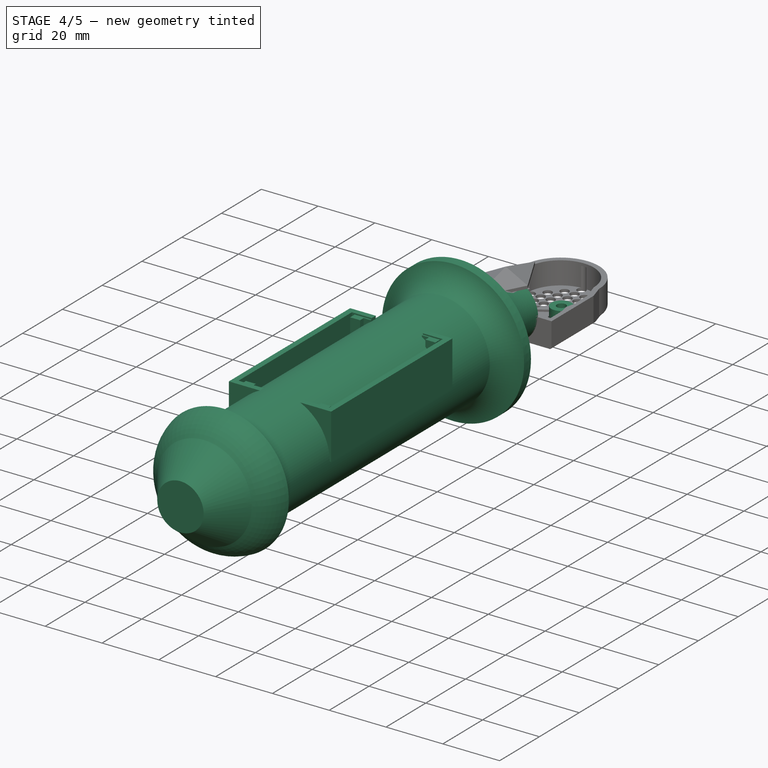
[diagram: stage 4 of 5 — iso view after this stage's code; geometry added in this stage tinted green]
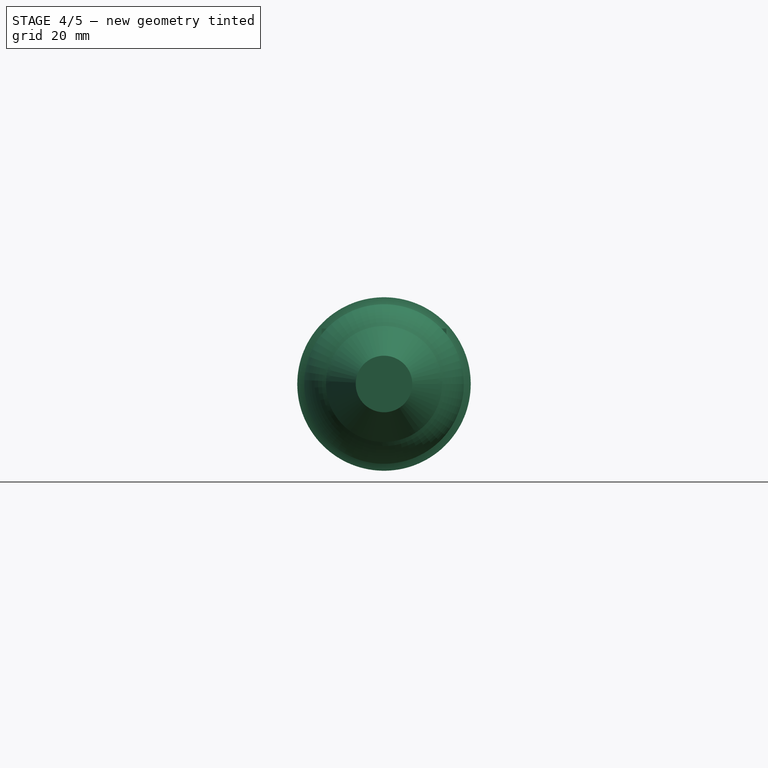
[diagram: stage 4 of 5 — front view after this stage's code; geometry added in this stage tinted green]
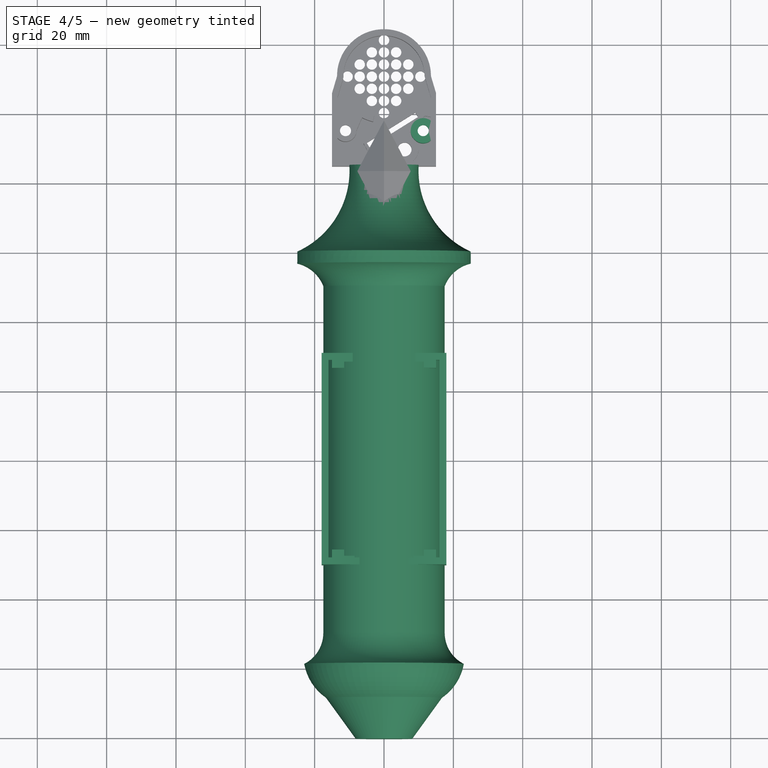
[diagram: stage 4 of 5 — top view after this stage's code; geometry added in this stage tinted green]
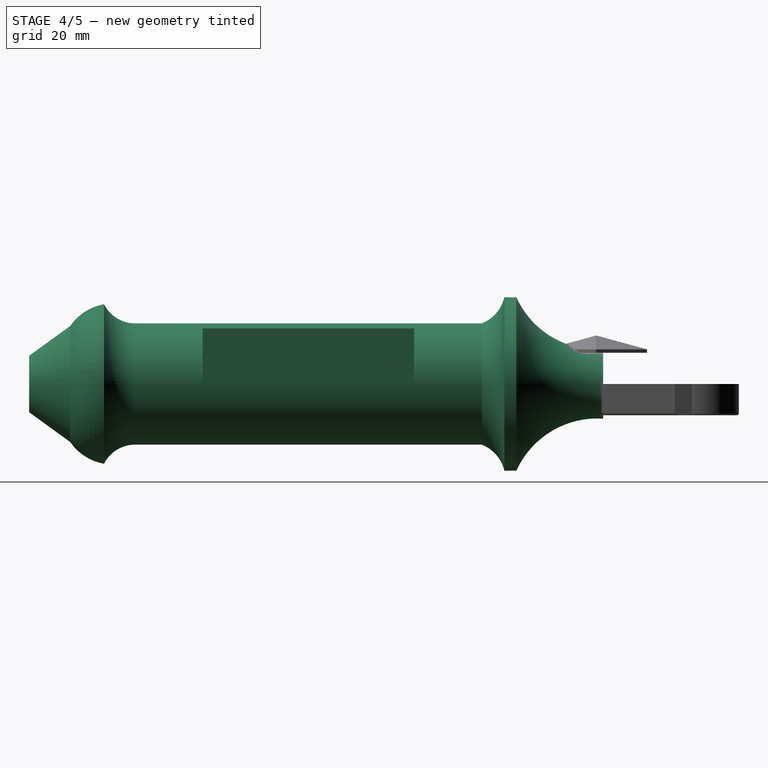
[diagram: stage 4 of 5 — right view after this stage's code; geometry added in this stage tinted green]
FEATURE [Sketcher::SketchObject] Sketch030
  ArcFitTolerance = 1e-06
  AttachmentSupport = -> [XY_Plane018]
  FullyConstrained = false
  MakeInternals = false
  MapMode = 5
  sketch-geometry (15):
    g0: LineSegment StartX=17.5 StartY=50 StartZ=0 EndX=17.5 EndY=-50 EndZ=0
    g1: ArcOfCircle CenterX=27.5 CenterY=-50 CenterZ=0 NormalX=0 NormalY=0 NormalZ=1 AngleXU=0 Radius=10 StartAngle=3.14159 EndAngle=4.2478
    g2: LineSegment StartX=16.7299 StartY=-68.7091 StartZ=0 EndX=8.15223 EndY=-80.5471 EndZ=0
    g3: LineSegment StartX=8.15223 StartY=-80.5471 StartZ=0 EndX=0 EndY=-80.5471 EndZ=0
    g4: ArcOfCircle CenterX=8.2468 CenterY=-56.3383 CenterZ=0 NormalX=0 NormalY=0 NormalZ=1 AngleXU=0 Radius=15 StartAngle=5.31348 EndAngle=6.10885
    g5: ArcOfCircle CenterX=27.468 CenterY=46.0956 CenterZ=0 NormalX=0 NormalY=0 NormalZ=1 AngleXU=0 Radius=10.7054 StartAngle=1.80342 EndAngle=2.76827
    g6: LineSegment StartX=25.0001 StartY=56.5127 StartZ=0 EndX=25.0155 EndY=56.5163 EndZ=0
    g7: LineSegment StartX=25.0155 StartY=56.5163 StartZ=0 EndX=25 EndY=60 EndZ=0
    g8: ArcOfCircle CenterX=35.5717 CenterY=83.343 CenterZ=0 NormalX=0 NormalY=0 NormalZ=1 AngleXU=0 Radius=25.6254 StartAngle=3.07689 EndAngle=4.28714
    g9: LineSegment [constr] StartX=25 StartY=60 StartZ=0 EndX=41.707 EndY=52.4336 EndZ=0
    g10: LineSegment StartX=10 StartY=85 StartZ=0 EndX=2.99673 EndY=85 EndZ=0
    g11: LineSegment [constr] StartX=0 StartY=50.6044 StartZ=0 EndX=0 EndY=85 EndZ=0
    g12: LineSegment StartX=0 StartY=-80.5471 StartZ=0 EndX=0 EndY=-47.458 EndZ=0
    g13: LineSegment StartX=0 StartY=-47.458 StartZ=0 EndX=0 EndY=85 EndZ=0
    g14: LineSegment StartX=2.99673 StartY=85 StartZ=0 EndX=0 EndY=85 EndZ=0
  constraints (31):
    c: Symmetric(g0,g0,g-1)
    c: DistanceY(g0,g0) = 100
    c: DistanceX(g-1,g0) = 17.5
    c: Tangent(g1,g0) = -1.5708
    c: Coincident(g3,g2)
    c: PointOnObject(g3,g-2)
    c: Horizontal(g3)
    c: Coincident(g4,g1)
    c: Coincident(g2,g4)
    c: Radius(g1) = 10
    c: Radius(g4) = 15
    c: Coincident(g5,g0)
    c: Tangent(g6,g5) = 1.5708
    c: Coincident(g7,g6)
    c: Coincident(g8,g7)
    c: Coincident(g9,g7)
    c: Tangent(g8,g9)
    c: Coincident(g10,g8)
    c: PointOnObject(g11,g-2)
    c: Horizontal(g10)
    c: DistanceX(g11,g10) = 10
    c: DistanceX(g-1,g7) = 25
    c: DistanceY(g-1,g11) = 85
    c: DistanceY(g-1,g7) = 60
    c: Coincident(g3,g12)
    c: PointOnObject(g12,g-2)
    c: Coincident(g13,g12)
    c: Coincident(g13,g11)
    c: Coincident(g14,g10)
    c: Coincident(g14,g11)
    c: Horizontal(g14)
FEATURE [PartDesign::Revolution] Revolution003
  Angle = 360
  Angle2 = 60
  Axis = (0,1,0)
  Base = (0,0,0)
  Profile = -> Sketch030
  ReferenceAxis = -> Sketch030 [V_Axis]
  Refine = true
  Reversed = true
  Suppressed = false
  Type = 0
FEATURE [Sketcher::SketchObject] Sketch049
  ArcFitTolerance = 1e-06
  AttachmentSupport = -> [XY_Plane023]
  FullyConstrained = true
  MakeInternals = false
  MapMode = 5
  expr: Constraints[9] = 15.5 * 2 + 1
  sketch-geometry (8):
    g0: LineSegment StartX=-16 StartY=28.5 StartZ=0 EndX=-16 EndY=-28.5 EndZ=0
    g1: LineSegment StartX=-16 StartY=-28.5 StartZ=0 EndX=16 EndY=-28.5 EndZ=0
    g2: LineSegment StartX=16 StartY=-28.5 StartZ=0 EndX=16 EndY=28.5 EndZ=0
    g3: LineSegment StartX=16 StartY=28.5 StartZ=0 EndX=-16 EndY=28.5 EndZ=0
    g4: LineSegment StartX=-18 StartY=30.5 StartZ=0 EndX=-18 EndY=-30.5 EndZ=0
    g5: LineSegment StartX=-18 StartY=-30.5 StartZ=0 EndX=18 EndY=-30.5 EndZ=0
    g6: LineSegment StartX=18 StartY=-30.5 StartZ=0 EndX=18 EndY=30.5 EndZ=0
    g7: LineSegment StartX=18 StartY=30.5 StartZ=0 EndX=-18 EndY=30.5 EndZ=0
  constraints (23):
    c: Coincident(g0,g1)
    c: Coincident(g1,g2)
    c: Coincident(g2,g3)
    c: Coincident(g3,g0)
    c: Vertical(g0)
    c: Vertical(g2)
    c: Horizontal(g1)
    c: Horizontal(g3)
    c: DistanceY(g2,g2) = 57
    c: DistanceX(g3,g3) = 32
    c: Symmetric(g0,g1,g-1)
    c: Coincident(g4,g5)
    c: Coincident(g5,g6)
    c: Coincident(g6,g7)
    c: Coincident(g7,g4)
    c: Vertical(g4)
    c: Vertical(g6)
    c: Horizontal(g5)
    c: Horizontal(g7)
    c: DistanceY(g2,g6) = 2
    c: DistanceX(g2,g6) = 2
    c: DistanceX(g4,g0) = 2
    c: DistanceY(g5,g1) = 2
FEATURE [PartDesign::Pad] Pad008  label="Outer Box"
  Direction = (0,0,1)
  Length = 16
  Length2 = 10
  Profile = -> Sketch049
  ReferenceAxis = -> Sketch049 [N_Axis]
  Refine = true
  Suppressed = false
  Type = 0
FEATURE [Sketcher::SketchObject] Sketch050
  ArcFitTolerance = 1e-06
  AttachmentSupport = -> [YZ_Plane023]
  ExternalGeometry = -> [Pad008]
  FullyConstrained = false
  MakeInternals = false
  MapMode = 5
  Placement = pos=(0,0,0) rot=(0.57735,0.57735,0.57735;2.0944rad)
  sketch-geometry (8):
    g0: LineSegment StartX=-28.5 StartY=15.3 StartZ=0 EndX=-26.2 EndY=15.3 EndZ=0
    g1: LineSegment StartX=-26.2 StartY=15.3 StartZ=0 EndX=-26.2 EndY=2.3 EndZ=0
    g2: LineSegment StartX=-26.2 StartY=2.3 StartZ=0 EndX=-28.5 EndY=0 EndZ=0
    g3: LineSegment StartX=-28.5 StartY=15.3 StartZ=0 EndX=-28.5 EndY=0 EndZ=0
    g4: LineSegment StartX=28.5 StartY=15.5417 StartZ=0 EndX=26.2 EndY=15.5417 EndZ=0
    g5: LineSegment StartX=26.2 StartY=15.5417 StartZ=0 EndX=26.2 EndY=2.3 EndZ=0
    g6: LineSegment StartX=26.2 StartY=2.3 StartZ=0 EndX=28.5 EndY=0 EndZ=0
    g7: LineSegment StartX=28.5 StartY=15.5417 StartZ=0 EndX=28.5 EndY=0 EndZ=0
  constraints (22):
    c: PointOnObject(g0,g-3)
    c: Horizontal(g0)
    c: Coincident(g0,g1)
    c: Vertical(g1)
    c: Coincident(g1,g2)
    c: Coincident(g2,g-3)
    c: DistanceY(g1,g1) = 13
    c: Angle(g2,g-3) = 0.785398
    c: Coincident(g0,g3)
    c: Coincident(g3,g2)
    c: Horizontal(g4)
    c: Coincident(g4,g5)
    c: Vertical(g5)
    c: Coincident(g5,g6)
    c: Coincident(g4,g7)
    c: Coincident(g7,g6)
    c: DistanceX(g0,g0) = 2.3
    c: DistanceY(g-1,g1) = 2.3
    c: Distance(g4,g4) = 2.3
    c: Vertical(g7)
    c: Symmetric(g2,g6,g-2)
    c: Horizontal(g1,g5)
FEATURE [PartDesign::Pad] Pad009  label="Large Bracket"
  BaseFeature = -> Pad008
  Direction = (1,0,0)
  Length = 30
  Length2 = 10
  Midplane = true
  Profile = -> Sketch050
  ReferenceAxis = -> Sketch050 [N_Axis]
  Refine = true
  Suppressed = false
  Type = 0
FEATURE [Sketcher::SketchObject] Sketch051
  ArcFitTolerance = 1e-06
  AttachmentOffset = pos=(0,0,14) rot=(0,0,1;0rad)
  AttachmentSupport = -> [XY_Plane023]
  ExternalGeometry = -> [Pad009]
  FullyConstrained = false
  MakeInternals = false
  MapMode = 5
  Placement = pos=(0,0,14) rot=(0,0,1;0rad)
  sketch-geometry (10):
    g0: LineSegment StartX=-13.75 StartY=-28.5 StartZ=0 EndX=13.75 EndY=-28.5 EndZ=0
    g1: LineSegment StartX=13.75 StartY=-28.5 StartZ=0 EndX=13.75 EndY=-28 EndZ=0
    g2: LineSegment StartX=13.75 StartY=-28 StartZ=0 EndX=11.5 EndY=-28 EndZ=0
    g3: LineSegment StartX=-13.75 StartY=-28 StartZ=0 EndX=-13.75 EndY=-28.5 EndZ=0
    g4: LineSegment StartX=11.5 StartY=-28 StartZ=0 EndX=-13.75 EndY=-28 EndZ=0
    g5: LineSegment StartX=-13.75 StartY=28.5 StartZ=0 EndX=13.75 EndY=28.5 EndZ=0
    g6: LineSegment StartX=13.75 StartY=28.5 StartZ=0 EndX=13.75 EndY=28 EndZ=0
    g7: LineSegment StartX=13.75 StartY=28 StartZ=0 EndX=11.5 EndY=28 EndZ=0
    g8: LineSegment StartX=-13.75 StartY=28 StartZ=0 EndX=-13.75 EndY=28.5 EndZ=0
    g9: LineSegment StartX=11.5 StartY=28 StartZ=0 EndX=-13.75 EndY=28 EndZ=0
  constraints (20):
    c: Coincident(g0,g1)
    c: Coincident(g1,g2)
    c: Coincident(g4,g3)
    c: Coincident(g3,g0)
    c: Horizontal(g0)
    c: Vertical(g1)
    c: Vertical(g3)
    c: PointOnObject(g0,g-4)
    c: DistanceX(g4,g2) = 27.5
    c: Symmetric(g4,g1,g-2)
    c: DistanceY(g1,g1) = 0.5
    c: Coincident(g2,g4)
    c: Coincident(g5,g6)
    c: Coincident(g6,g7)
    c: Coincident(g9,g8)
    c: Coincident(g8,g5)
    c: Horizontal(g5)
    c: Vertical(g6)
    c: Vertical(g8)
    c: Coincident(g7,g9)
FEATURE [PartDesign::Pocket] Pocket020  label="Terminal Cutout"
  BaseFeature = -> Pad009
  Direction = (0,0,-1)
  Length = 19
  Length2 = 5
  Profile = -> Sketch051
  ReferenceAxis = -> Sketch051 [N_Axis]
  Refine = true
  Suppressed = false
  Type = 0
FEATURE [Sketcher::SketchObject] Sketch052
  ArcFitTolerance = 1e-06
  AttachmentSupport = -> [XY_Plane023]
  FullyConstrained = false
  MakeInternals = false
  MapMode = 5
  sketch-geometry (8):
    g0: LineSegment StartX=11.5 StartY=-28 StartZ=0 EndX=11.5 EndY=-23.9819 EndZ=0
    g1: LineSegment StartX=11.5 StartY=-23.9819 StartZ=0 EndX=-11.5 EndY=-23.9819 EndZ=0
    g2: LineSegment StartX=-11.5 StartY=-23.9819 StartZ=0 EndX=-11.5 EndY=-28 EndZ=0
    g3: LineSegment StartX=-11.5 StartY=-28 StartZ=0 EndX=11.5 EndY=-28 EndZ=0
    g4: LineSegment StartX=11.5 StartY=28 StartZ=0 EndX=11.5 EndY=23.9819 EndZ=0
    g5: LineSegment StartX=11.5 StartY=23.9819 StartZ=0 EndX=-11.5 EndY=23.9819 EndZ=0
    g6: LineSegment StartX=-11.5 StartY=23.9819 StartZ=0 EndX=-11.5 EndY=28 EndZ=0
    g7: LineSegment StartX=-11.5 StartY=28 StartZ=0 EndX=11.5 EndY=28 EndZ=0
  constraints (16):
    c: Coincident(g0,g1)
    c: Coincident(g1,g2)
    c: Vertical(g0)
    c: Vertical(g2)
    c: DistanceX(g1,g1) = 23
    c: Symmetric(g1,g0,g-2)
    c: Coincident(g3,g2)
    c: Coincident(g3,g0)
    c: Horizontal(g3)
    c: Coincident(g4,g5)
    c: Coincident(g5,g6)
    c: Vertical(g4)
    c: Vertical(g6)
    c: Coincident(g7,g6)
    c: Coincident(g7,g4)
    c: Horizontal(g7)
FEATURE [PartDesign::Pocket] Pocket021  label="Double Contact Cutout"
  BaseFeature = -> Pocket020
  Direction = (0,0,-1)
  Length = 25
  Length2 = 5
  Profile = -> Sketch052
  ReferenceAxis = -> Sketch052 [N_Axis]
  Refine = true
  Reversed = true
  Suppressed = false
  Type = 0
FEATURE [Sketcher::SketchObject] Sketch053
  ArcFitTolerance = 1e-06
  AttachmentOffset = pos=(0,0,25) rot=(0,0,1;0rad)
  AttachmentSupport = -> [XZ_Plane023]
  ExternalGeometry = -> [Pocket021]
  FullyConstrained = false
  MakeInternals = false
  MapMode = 5
  Placement = pos=(0,-25,5.6e-15) rot=(1,0,0;1.5708rad)
  sketch-geometry (6):
    g0: LineSegment StartX=13.75 StartY=0.5 StartZ=0 EndX=11.5 EndY=2.75 EndZ=0
    g1: LineSegment StartX=11.5 StartY=2.75 StartZ=0 EndX=11.5 EndY=0.5 EndZ=0
    g2: LineSegment StartX=11.5 StartY=0.5 StartZ=0 EndX=13.75 EndY=0.5 EndZ=0
    g3: LineSegment StartX=-13.75 StartY=0.5 StartZ=0 EndX=-11.5 EndY=2.75 EndZ=0
    g4: LineSegment StartX=-11.5 StartY=2.75 StartZ=0 EndX=-11.5 EndY=0.5 EndZ=0
    g5: LineSegment StartX=-11.5 StartY=0.5 StartZ=0 EndX=-13.75 EndY=0.5 EndZ=0
  constraints (12):
    c: Coincident(g-3,g0)
    c: Coincident(g0,g1)
    c: Coincident(g1,g-3)
    c: Vertical(g1)
    c: Coincident(g1,g2)
    c: Coincident(g2,g0)
    c: Angle(g0,g2) = 0.785398
    c: Coincident(g3,g4)
    c: Vertical(g4)
    c: Coincident(g4,g5)
    c: Coincident(g5,g3)
    c: Angle(g3,g5) = -0.785398
FEATURE [PartDesign::Pocket] Pocket022  label="Double Contact Corners"
  BaseFeature = -> Pocket021
  Direction = (0,1,-2e-16)
  Length = 3
  Length2 = 5
  Profile = -> Sketch053
  ReferenceAxis = -> Sketch053 [N_Axis]
  Refine = true
  Reversed = true
  Suppressed = false
  Type = 0
FEATURE [Sketcher::SketchObject] Sketch054
  ArcFitTolerance = 1e-06
  AttachmentSupport = -> [YZ_Plane023]
  ExternalGeometry = -> [Pocket022]
  FullyConstrained = false
  MakeInternals = false
  MapMode = 5
  Placement = pos=(0,0,0) rot=(0.57735,0.57735,0.57735;2.0944rad)
  sketch-geometry (2):
    g0: LineSegment StartX=-28.0325 StartY=9 StartZ=0 EndX=-28.0325 EndY=7 EndZ=0
    g1: ArcOfCircle CenterX=-28.0325 CenterY=8 CenterZ=0 NormalX=0 NormalY=0 NormalZ=1 AngleXU=0 Radius=1 StartAngle=4.71239 EndAngle=7.85398
  constraints (6):
    c: Vertical(g0)
    c: Coincident(g1,g0)
    c: DistanceY(g0,g0) = 2
    c: DistanceY(g0,g-4) = 5
    c: DistanceY(g-5,g0) = 4.7
    c: Coincident(g0,g1)
FEATURE [PartDesign::Pocket] Pocket023  label="Double Dimple"
  BaseFeature = -> Pocket022
  Direction = (-1,0,0)
  Length = 30
  Length2 = 5
  Midplane = true
  Profile = -> Sketch054
  ReferenceAxis = -> Sketch054 [N_Axis]
  Refine = true
  Suppressed = false
  Type = 0
FEATURE [Sketcher::SketchObject] Sketch055
  ArcFitTolerance = 1e-06
  AttachmentSupport = -> [YZ_Plane023]
  FullyConstrained = false
  MakeInternals = false
  MapMode = 5
  Placement = pos=(0,0,0) rot=(0.57735,0.57735,0.57735;2.0944rad)
  sketch-geometry (4):
    g0: LineSegment StartX=28.5 StartY=15.3 StartZ=0 EndX=26.2 EndY=15.3 EndZ=0
    g1: LineSegment StartX=26.2 StartY=15.3 StartZ=0 EndX=26.2 EndY=2.3 EndZ=0
    g2: LineSegment StartX=26.2 StartY=2.3 StartZ=0 EndX=28.5 EndY=0 EndZ=0
    g3: LineSegment StartX=28.5 StartY=15.3 StartZ=0 EndX=28.5 EndY=0 EndZ=0
  constraints (9):
    c: Horizontal(g0)
    c: Coincident(g0,g1)
    c: Vertical(g1)
    c: Coincident(g1,g2)
    c: Coincident(g0,g3)
    c: Coincident(g3,g2)
    c: Distance(g0,g0) = 2.3
    c: Vertical(g3)
    c: DistanceY(g1,g1) = 13
FEATURE [PartDesign::Pad] Pad010
  BaseFeature = -> Pocket023
  Direction = (1,0,0)
  Length = 2.8
  Length2 = 10
  Midplane = true
  Profile = -> Sketch055
  ReferenceAxis = -> Sketch055 [N_Axis]
  Refine = true
  Suppressed = false
  Type = 0
FEATURE [Sketcher::SketchObject] Sketch056
  ArcFitTolerance = 1e-06
  AttachmentSupport = -> [YZ_Plane023]
  ExternalGeometry = -> [Pad010]
  FullyConstrained = true
  MakeInternals = false
  MapMode = 5
  Placement = pos=(0,0,0) rot=(0.57735,0.57735,0.57735;2.0944rad)
  sketch-geometry (5):
    g0: LineSegment StartX=28 StartY=14 StartZ=0 EndX=28 EndY=0.5 EndZ=0
    g1: LineSegment StartX=28 StartY=0.5 StartZ=0 EndX=26.2 EndY=2.3 EndZ=0
    g2: LineSegment StartX=26.2 StartY=2.3 StartZ=0 EndX=26.2 EndY=15.3 EndZ=0
    g3: LineSegment StartX=26.2 StartY=15.3 StartZ=0 EndX=28 EndY=15.3 EndZ=0
    g4: LineSegment StartX=28 StartY=15.3 StartZ=0 EndX=28 EndY=14 EndZ=0
  constraints (11):
    c: Coincident(g-3,g0)
    c: PointOnObject(g0,g-5)
    c: Vertical(g0)
    c: Coincident(g0,g1)
    c: Coincident(g1,g-5)
    c: Coincident(g1,g2)
    c: Coincident(g2,g-4)
    c: Coincident(g2,g3)
    c: Coincident(g3,g-3)
    c: Coincident(g3,g4)
    c: Coincident(g4,g0)
FEATURE [PartDesign::Pad] Pad011
  BaseFeature = -> Pad010
  Direction = (1,0,0)
  Length = 5
  Length2 = 10
  Midplane = true
  Profile = -> Sketch056
  ReferenceAxis = -> Sketch056 [N_Axis]
  Refine = true
  Suppressed = false
  Type = 0
FEATURE [Sketcher::SketchObject] Sketch057
  ArcFitTolerance = 1e-06
  AttachmentSupport = -> [YZ_Plane023]
  FullyConstrained = false
  MakeInternals = false
  MapMode = 5
  Placement = pos=(0,0,0) rot=(0.57735,0.57735,0.57735;2.0944rad)
  sketch-geometry (4):
    g0: LineSegment [constr] StartX=-28.0325 StartY=9 StartZ=0 EndX=-28.0325 EndY=7 EndZ=0
    g1: ArcOfCircle [constr] CenterX=-28.0325 CenterY=8 CenterZ=0 NormalX=0 NormalY=0 NormalZ=1 AngleXU=0 Radius=1 StartAngle=4.71239 EndAngle=7.85398
    g2: LineSegment StartX=28.0325 StartY=9 StartZ=0 EndX=28.0325 EndY=7 EndZ=0
    g3: ArcOfCircle CenterX=28.0325 CenterY=8 CenterZ=0 NormalX=0 NormalY=0 NormalZ=1 AngleXU=0 Radius=1 StartAngle=1.5708 EndAngle=4.71239
  constraints (7):
    c: Vertical(g0)
    c: Coincident(g1,g0)
    c: DistanceY(g0,g0) = 2
    c: Coincident(g0,g1)
    c: Vertical(g2)
    c: Coincident(g3,g2)
    c: Coincident(g2,g3)
FEATURE [PartDesign::Pocket] Pocket024
  BaseFeature = -> Pad011
  Direction = (-1,0,0)
  Length = 31
  Length2 = 5
  Midplane = true
  Profile = -> Sketch057
  ReferenceAxis = -> Sketch057 [N_Axis]
  Refine = true
  Suppressed = false
  Type = 0
FEATURE [Sketcher::SketchObject] Sketch058
  ArcFitTolerance = 1e-06
  AttachmentOffset = pos=(0,0,-27) rot=(0,0,1;0rad)
  AttachmentSupport = -> [XZ_Plane023]
  ExternalGeometry = -> [Pocket024]
  FullyConstrained = false
  MakeInternals = false
  MapMode = 5
  Placement = pos=(0,27,-6e-15) rot=(1,0,0;1.5708rad)
  sketch-geometry (8):
    g0: LineSegment StartX=-5 StartY=14 StartZ=0 EndX=-5 EndY=17.3416 EndZ=0
    g1: LineSegment StartX=-5 StartY=17.3416 StartZ=0 EndX=-9 EndY=17.3416 EndZ=0
    g2: LineSegment StartX=-9 StartY=17.3416 StartZ=0 EndX=-9 EndY=14 EndZ=0
    g3: LineSegment StartX=-9 StartY=14 StartZ=0 EndX=-5 EndY=14 EndZ=0
    g4: LineSegment StartX=5 StartY=14 StartZ=0 EndX=5 EndY=17.3416 EndZ=0
    g5: LineSegment StartX=5 StartY=17.3416 StartZ=0 EndX=9 EndY=17.3416 EndZ=0
    g6: LineSegment StartX=9 StartY=17.3416 StartZ=0 EndX=9 EndY=14 EndZ=0
    g7: LineSegment StartX=9 StartY=14 StartZ=0 EndX=5 EndY=14 EndZ=0
  constraints (21):
    c: DistanceY(g-1,g-7) = 14
    c: Coincident(g0,g1)
    c: Coincident(g1,g2)
    c: Coincident(g2,g3)
    c: Coincident(g3,g0)
    c: Vertical(g0)
    c: Vertical(g2)
    c: Horizontal(g1)
    c: Horizontal(g3)
    c: PointOnObject(g0,g-8)
    c: DistanceX(g1,g1) = 4
    c: DistanceX(g-6,g-5) = 9
    c: DistanceX(g0,g-5) = 2.5
    c: Coincident(g4,g5)
    c: Coincident(g5,g6)
    c: Coincident(g6,g7)
    c: Coincident(g7,g4)
    c: Vertical(g4)
    c: Vertical(g6)
    c: Horizontal(g5)
    c: Horizontal(g7)
FEATURE [PartDesign::Pocket] Pocket025
  BaseFeature = -> Pocket024
  Direction = (0,1,-2e-16)
  Length = 5
  Length2 = 5
  Profile = -> Sketch058
  ReferenceAxis = -> Sketch058 [N_Axis]
  Refine = true
  Suppressed = false
  Type = 0
FEATURE [Sketcher::SketchObject] Sketch059
  ArcFitTolerance = 1e-06
  AttachmentOffset = pos=(0,0,-26) rot=(0,0,1;0rad)
  AttachmentSupport = -> [XZ_Plane023]
  ExternalGeometry = -> [Pocket025]
  FullyConstrained = false
  MakeInternals = false
  MapMode = 5
  Placement = pos=(0,26,-5.8e-15) rot=(1,0,0;1.5708rad)
  sketch-geometry (12):
    g0: LineSegment StartX=13.75 StartY=0.5 StartZ=0 EndX=11.5 EndY=2.75 EndZ=0
    g1: LineSegment StartX=11.5 StartY=2.75 StartZ=0 EndX=11.5 EndY=0.5 EndZ=0
    g2: LineSegment StartX=11.5 StartY=0.5 StartZ=0 EndX=13.75 EndY=0.5 EndZ=0
    g3: LineSegment StartX=-13.75 StartY=0.5 StartZ=0 EndX=-11.5 EndY=2.75 EndZ=0
    g4: LineSegment StartX=-11.5 StartY=2.75 StartZ=0 EndX=-11.5 EndY=0.5 EndZ=0
    g5: LineSegment StartX=-11.5 StartY=0.5 StartZ=0 EndX=-13.75 EndY=0.5 EndZ=0
    g6: LineSegment StartX=-1.4 StartY=0.5 StartZ=0 EndX=-2.5 EndY=1.6 EndZ=0
    g7: LineSegment StartX=-2.5 StartY=1.6 StartZ=0 EndX=-2.5 EndY=0.5 EndZ=0
    g8: LineSegment StartX=-2.5 StartY=0.5 StartZ=0 EndX=-1.4 EndY=0.5 EndZ=0
    g9: LineSegment StartX=1.4 StartY=0.5 StartZ=0 EndX=2.5 EndY=1.6 EndZ=0
    g10: LineSegment StartX=2.5 StartY=1.6 StartZ=0 EndX=2.5 EndY=0.5 EndZ=0
    g11: LineSegment StartX=2.5 StartY=0.5 StartZ=0 EndX=1.4 EndY=0.5 EndZ=0
  constraints (21):
    c: Coincident(g0,g1)
    c: Vertical(g1)
    c: Coincident(g1,g2)
    c: Coincident(g2,g0)
    c: Angle(g0,g2) = 0.785398
    c: Coincident(g3,g4)
    c: Vertical(g4)
    c: Coincident(g4,g5)
    c: Coincident(g5,g3)
    c: Angle(g3,g5) = -0.785398
    c: Coincident(g-3,g6)
    c: PointOnObject(g6,g-4)
    c: Coincident(g6,g7)
    c: Coincident(g7,g-4)
    c: Coincident(g7,g8)
    c: Coincident(g8,g6)
    c: Angle(g6,g8) = 0.785398
    c: Coincident(g9,g10)
    c: Coincident(g10,g11)
    c: Coincident(g11,g9)
    c: Angle(g9,g11) = -0.785398
FEATURE [PartDesign::Pocket] Pocket026
  BaseFeature = -> Pocket025
  Direction = (0,1,-2e-16)
  Length = 2
  Length2 = 5
  Profile = -> Sketch059
  ReferenceAxis = -> Sketch059 [N_Axis]
  Refine = true
  Suppressed = false
  Type = 0
FEATURE [Sketcher::SketchObject] Sketch076
  ArcFitTolerance = 1e-06
  AttachmentSupport = -> [XY_Plane025]
  FullyConstrained = false
  MakeInternals = false
  MapMode = 5
  sketch-geometry (2):
    g0: Circle CenterX=11.3 CenterY=94.9 CenterZ=0 NormalX=0 NormalY=0 NormalZ=1 AngleXU=0 Radius=1.6
    g1: Circle CenterX=11.3 CenterY=94.9 CenterZ=0 NormalX=0 NormalY=0 NormalZ=1 AngleXU=0 Radius=3.60791
  constraints (3):
    c: Coincident(g0,g-3)
    c: Diameter(g0) = 3.2
    c: Coincident(g1,g0)
FEATURE [PartDesign::Pad] Pad016
  BaseFeature = -> Pad015
  Direction = (0,0,1)
  Length = 9
  Length2 = 10
  Profile = -> Sketch076
  ReferenceAxis = -> Sketch076 [N_Axis]
  Refine = true
  Reversed = true
  Suppressed = false
  Type = 0
FEATURE [Sketcher::SketchObject] Sketch077
  ArcFitTolerance = 1e-06
  AttachmentOffset = pos=(0,0,-9) rot=(0,0,1;0rad)
  AttachmentSupport = -> [XY_Plane025]
  FullyConstrained = false
  MakeInternals = false
  MapMode = 5
  Placement = pos=(0,0,-9) rot=(0,0,1;0rad)
  sketch-geometry (2):
    g0: Circle CenterX=-11.1 CenterY=94.9 CenterZ=0 NormalX=0 NormalY=0 NormalZ=1 AngleXU=0 Radius=3
    g1: Circle CenterX=11.3 CenterY=94.9 CenterZ=0 NormalX=0 NormalY=0 NormalZ=1 AngleXU=0 Radius=3
  constraints (2):
    c: Diameter(g1) = 6
    c: Diameter(g0) = 6
FEATURE [PartDesign::Pocket] Pocket036
  BaseFeature = -> Pad016
  Direction = (0,0,-1)
  Length = 5
  Length2 = 5
  Profile = -> Sketch077
  ReferenceAxis = -> Sketch077 [N_Axis]
  Refine = true
  Reversed = true
  Suppressed = false
  Type = 0
FEATURE [PartDesign::Chamfer] Chamfer
  Angle = 45
  Base = -> Pocket036 [Edge10,Edge7]
  BaseFeature = -> Pocket036
  ChamferType = 0
  FlipDirection = false
  Refine = true
  Size = 0.5
  Size2 = 1
  SupportTransform = false
  Suppressed = false
  UseAllEdges = false
FEATURE [PartDesign::Fillet] Fillet001
  Base = -> Chamfer [Edge38]
  BaseFeature = -> Chamfer
  Radius = 0.5
  Refine = true
  SupportTransform = false
  Suppressed = false
  UseAllEdges = false
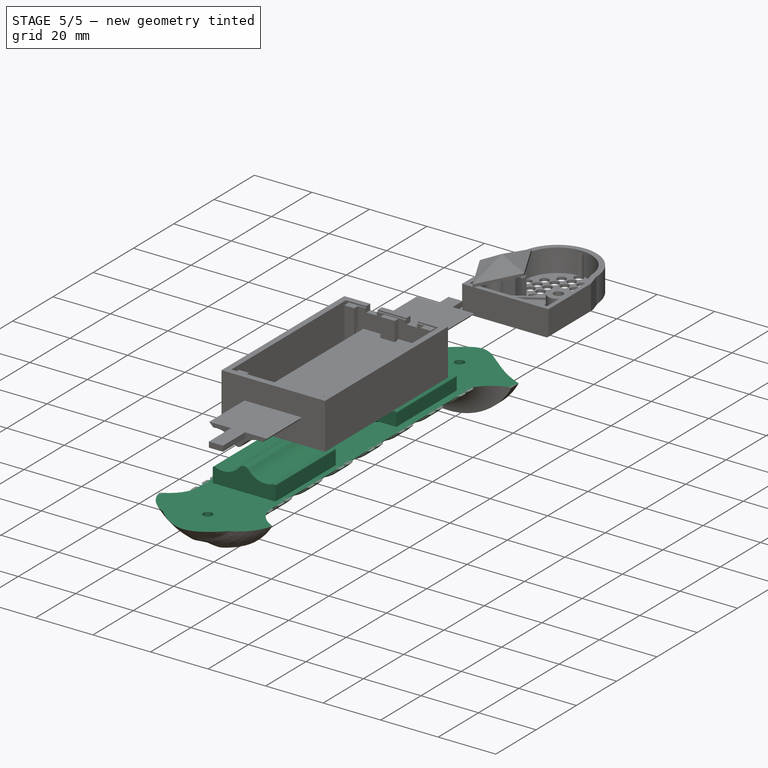
[diagram: stage 5 of 5 — iso view after this stage's code; geometry added in this stage tinted green]
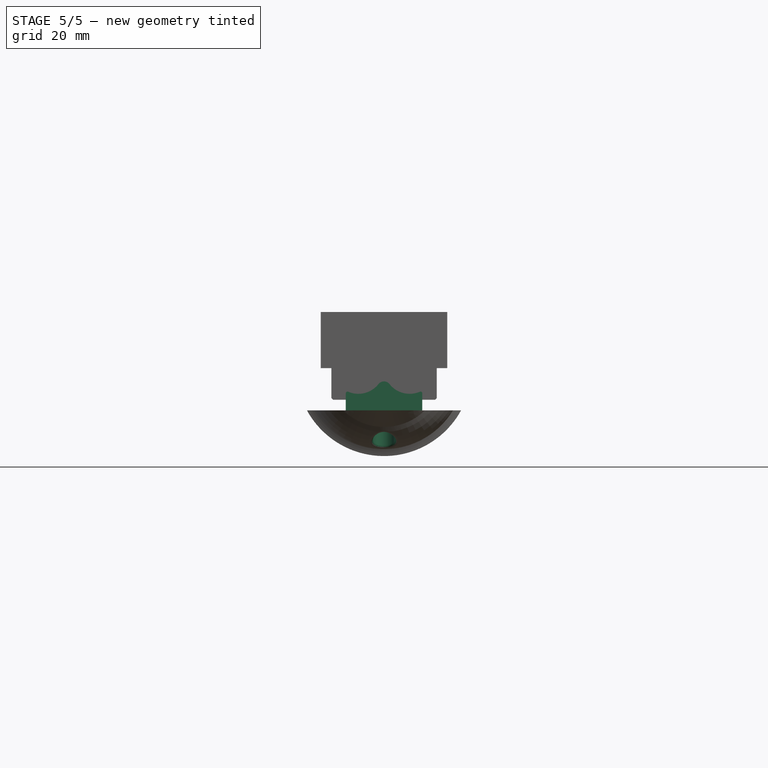
[diagram: stage 5 of 5 — front view after this stage's code; geometry added in this stage tinted green]
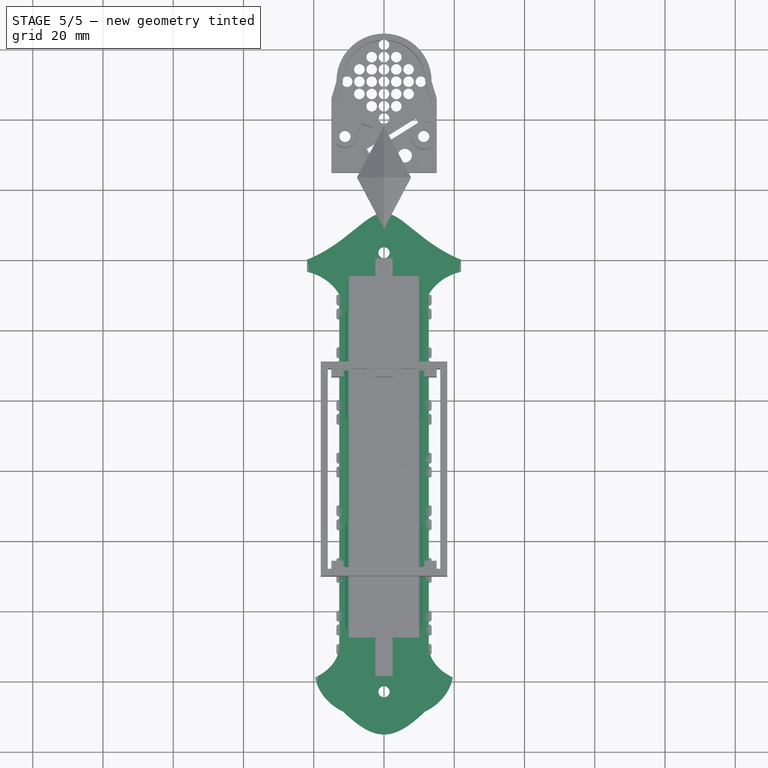
[diagram: stage 5 of 5 — top view after this stage's code; geometry added in this stage tinted green]
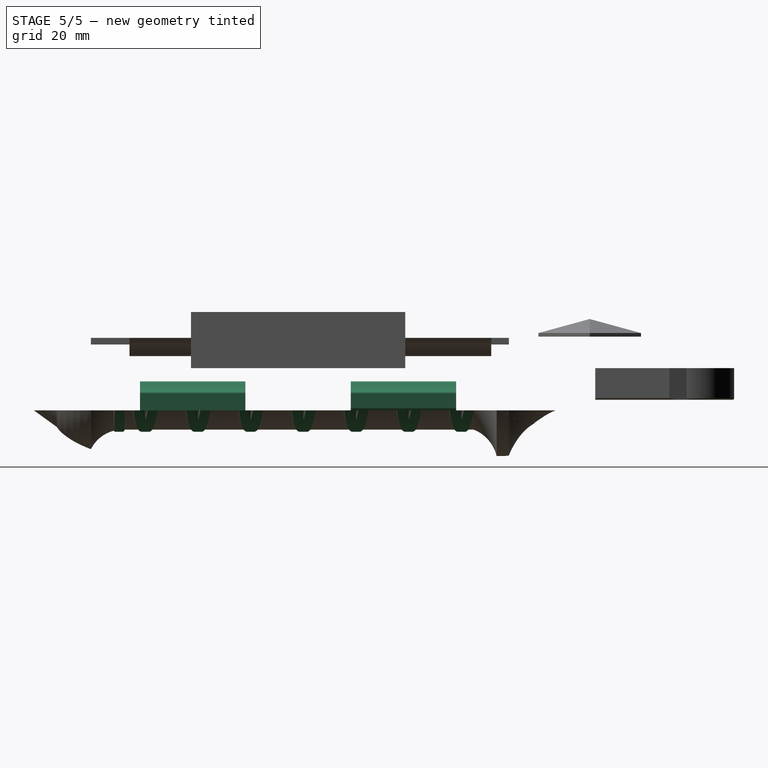
[diagram: stage 5 of 5 — right view after this stage's code; geometry added in this stage tinted green]
FEATURE [Sketcher::SketchObject] Sketch031
  ArcFitTolerance = 1e-06
  AttachmentSupport = -> [YZ_Plane019]
  FullyConstrained = true
  MakeInternals = false
  MapMode = 5
  Placement = pos=(0,0,0) rot=(0.57735,0.57735,0.57735;2.0944rad)
  sketch-geometry (4):
    g0: ArcOfCircle CenterX=-52 CenterY=17.5 CenterZ=0 NormalX=0 NormalY=0 NormalZ=1 AngleXU=0 Radius=0.6 StartAngle=1.5708 EndAngle=4.71239
    g1: ArcOfCircle CenterX=-50 CenterY=17.5 CenterZ=0 NormalX=0 NormalY=0 NormalZ=1 AngleXU=0 Radius=0.6 StartAngle=4.71239 EndAngle=7.85398
    g2: LineSegment StartX=-52 StartY=18.1 StartZ=0 EndX=-50 EndY=18.1 EndZ=0
    g3: LineSegment StartX=-52 StartY=16.9 StartZ=0 EndX=-50 EndY=16.9 EndZ=0
  constraints (10):
    c: Tangent(g0,g2) = 1.5708
    c: Tangent(g0,g3) = -1.5708
    c: Tangent(g1,g2) = 1.5708
    c: Tangent(g1,g3) = -1.5708
    c: Equal(g0,g1)
    c: Horizontal(g2)
    c: DistanceX(g0,g1) = 2
    c: DistanceY(g1,g1) = 1.2
    c: DistanceY(g-1,g0) = 17.5
    c: DistanceX(g1,g-1) = 50
FEATURE [PartDesign::Revolution] Revolution004
  Angle = 360
  Angle2 = 60
  Axis = (0,1,0)
  Base = (0,0,0)
  Placement = pos=(0,0,0) rot=(1,1,1;2.0944rad)
  Profile = -> Sketch031
  ReferenceAxis = -> Sketch031 [H_Axis]
  Refine = true
  Suppressed = false
  Type = 0
FEATURE [Sketcher::SketchObject] Sketch032
  ArcFitTolerance = 1e-06
  AttachmentSupport = -> [YZ_Plane019]
  FullyConstrained = true
  MakeInternals = false
  MapMode = 5
  Placement = pos=(0,0,0) rot=(0.57735,0.57735,0.57735;2.0944rad)
  sketch-geometry (4):
    g0: ArcOfCircle CenterX=-52 CenterY=17.5 CenterZ=0 NormalX=0 NormalY=0 NormalZ=1 AngleXU=0 Radius=0.6 StartAngle=1.5708 EndAngle=4.71239
    g1: ArcOfCircle CenterX=-50 CenterY=17.5 CenterZ=0 NormalX=0 NormalY=0 NormalZ=1 AngleXU=0 Radius=0.6 StartAngle=4.71239 EndAngle=7.85398
    g2: LineSegment StartX=-52 StartY=18.1 StartZ=0 EndX=-50 EndY=18.1 EndZ=0
    g3: LineSegment StartX=-52 StartY=16.9 StartZ=0 EndX=-50 EndY=16.9 EndZ=0
  constraints (10):
    c: Tangent(g0,g2) = 1.5708
    c: Tangent(g0,g3) = -1.5708
    c: Tangent(g1,g2) = 1.5708
    c: Tangent(g1,g3) = -1.5708
    c: Equal(g0,g1)
    c: Horizontal(g2)
    c: DistanceX(g0,g1) = 2
    c: DistanceY(g1,g1) = 1.2
    c: DistanceY(g-1,g0) = 17.5
    c: DistanceX(g1,g-1) = 50
FEATURE [PartDesign::AdditiveHelix] AdditiveHelix002
  Angle = 0
  Axis = (0,1,0)
  Base = (0,0,0)
  BaseFeature = -> Revolution004
  Growth = 0
  HasBeenEdited = true
  Height = 100
  LeftHanded = false
  Mode = 0
  Outside = false
  Pitch = 15
  Placement = pos=(0,0,0) rot=(1,1,1;2.0944rad)
  Profile = -> Sketch032
  ReferenceAxis = -> Sketch032 [H_Axis]
  Refine = true
  Suppressed = false
  Tolerance = 0.1
  Turns = 6.66667
FEATURE [Sketcher::SketchObject] Sketch033
  ArcFitTolerance = 1e-06
  AttachmentSupport = -> [YZ_Plane019]
  FullyConstrained = true
  MakeInternals = false
  MapMode = 5
  Placement = pos=(0,0,0) rot=(0.57735,0.57735,0.57735;2.0944rad)
  sketch-geometry (4):
    g0: ArcOfCircle CenterX=-52 CenterY=17.5 CenterZ=0 NormalX=0 NormalY=0 NormalZ=1 AngleXU=0 Radius=0.6 StartAngle=1.5708 EndAngle=4.71239
    g1: ArcOfCircle CenterX=-50 CenterY=17.5 CenterZ=0 NormalX=0 NormalY=0 NormalZ=1 AngleXU=0 Radius=0.6 StartAngle=4.71239 EndAngle=7.85398
    g2: LineSegment StartX=-52 StartY=18.1 StartZ=0 EndX=-50 EndY=18.1 EndZ=0
    g3: LineSegment StartX=-52 StartY=16.9 StartZ=0 EndX=-50 EndY=16.9 EndZ=0
  constraints (10):
    c: Tangent(g0,g2) = 1.5708
    c: Tangent(g0,g3) = -1.5708
    c: Tangent(g1,g2) = 1.5708
    c: Tangent(g1,g3) = -1.5708
    c: Equal(g0,g1)
    c: Horizontal(g2)
    c: DistanceX(g0,g1) = 2
    c: DistanceY(g1,g1) = 1.2
    c: DistanceY(g-1,g0) = 17.5
    c: DistanceX(g1,g-1) = 50
FEATURE [PartDesign::AdditiveHelix] AdditiveHelix003
  Angle = 0
  Axis = (0,1,0)
  Base = (0,0,0)
  BaseFeature = -> AdditiveHelix002
  Growth = 0
  HasBeenEdited = true
  Height = 100
  LeftHanded = true
  Mode = 0
  Outside = false
  Pitch = 15
  Placement = pos=(0,0,0) rot=(1,1,1;2.0944rad)
  Profile = -> Sketch033
  ReferenceAxis = -> Sketch033 [H_Axis]
  Refine = true
  Suppressed = false
  Tolerance = 0.1
  Turns = 6.66667
FEATURE [Sketcher::SketchObject] Sketch034
  ArcFitTolerance = 1e-06
  AttachmentOffset = pos=(0,0,-12) rot=(0,0,1;0rad)
  AttachmentSupport = -> [XY_Plane019]
  FullyConstrained = false
  MakeInternals = false
  MapMode = 5
  Placement = pos=(0,0,-12) rot=(0,0,1;0rad)
  sketch-geometry (4):
    g0: LineSegment StartX=-45.5492 StartY=69.0537 StartZ=0 EndX=-45.5492 EndY=-94.9035 EndZ=0
    g1: LineSegment StartX=-45.5492 StartY=-94.9035 StartZ=0 EndX=41.2372 EndY=-94.9035 EndZ=0
    g2: LineSegment StartX=41.2372 StartY=-94.9035 StartZ=0 EndX=41.2372 EndY=69.0537 EndZ=0
    g3: LineSegment StartX=41.2372 StartY=69.0537 StartZ=0 EndX=-45.5492 EndY=69.0537 EndZ=0
  constraints (8):
    c: Coincident(g0,g1)
    c: Coincident(g1,g2)
    c: Coincident(g2,g3)
    c: Coincident(g3,g0)
    c: Vertical(g0)
    c: Vertical(g2)
    c: Horizontal(g1)
    c: Horizontal(g3)
FEATURE [PartDesign::Pocket] Pocket010
  BaseFeature = -> AdditiveHelix003
  Direction = (0,0,-1)
  Length = 39
  Length2 = 5
  Placement = pos=(0,0,0) rot=(1,1,1;2.0944rad)
  Profile = -> Sketch034
  ReferenceAxis = -> Sketch034 [N_Axis]
  Refine = true
  Reversed = true
  Suppressed = false
  Type = 0
FEATURE [PartDesign::Body] Body007  label="RoundedLaces"
  AllowCompound = true
  Group = -> [Sketch031,Revolution004,Sketch032,AdditiveHelix002,Sketch033,AdditiveHelix003,Sketch034,Pocket010]
  Origin = -> Origin019
  Tip = -> Pocket010
FEATURE [Sketcher::SketchObject] Sketch035
  ArcFitTolerance = 1e-06
  AttachmentOffset = pos=(0,0,-12) rot=(0,0,1;0rad)
  AttachmentSupport = -> [XY_Plane018]
  FullyConstrained = false
  MakeInternals = false
  MapMode = 5
  Placement = pos=(0,0,-12) rot=(0,0,1;0rad)
  sketch-geometry (4):
    g0: LineSegment StartX=-84.5744 StartY=135.69 StartZ=0 EndX=-84.5744 EndY=-134.051 EndZ=0
    g1: LineSegment StartX=-84.5744 StartY=-134.051 StartZ=0 EndX=84.3229 EndY=-134.051 EndZ=0
    g2: LineSegment StartX=84.3229 StartY=-134.051 StartZ=0 EndX=84.3229 EndY=135.69 EndZ=0
    g3: LineSegment StartX=84.3229 StartY=135.69 StartZ=0 EndX=-84.5744 EndY=135.69 EndZ=0
  constraints (8):
    c: Coincident(g0,g1)
    c: Coincident(g1,g2)
    c: Coincident(g2,g3)
    c: Coincident(g3,g0)
    c: Vertical(g0)
    c: Vertical(g2)
    c: Horizontal(g1)
    c: Horizontal(g3)
FEATURE [PartDesign::Pocket] Pocket011
  BaseFeature = -> Revolution003
  Direction = (0,0,-1)
  Length = 44
  Length2 = 5
  Profile = -> Sketch035
  ReferenceAxis = -> Sketch035 [N_Axis]
  Refine = true
  Reversed = true
  Suppressed = false
  Type = 0
FEATURE [PartDesign::SubShapeBinder] Binder004
  BindCopyOnChange = 0
  BindMode = 0
  ClaimChildren = false
  Context = -> Part002 [Body006.Binder004.]
  Fuse = false
  MakeFace = true
  OffsetFill = false
  OffsetIntersection = false
  OffsetJoinType = 0
  OffsetOpenResult = false
  PartialLoad = false
  Refine = true
  Relative = true
  Support = -> [Part[Body.]]
  _Version = 2
FEATURE [Sketcher::SketchObject] Sketch037
  ArcFitTolerance = 1e-06
  AttachmentOffset = pos=(0,0,-45) rot=(0,0,1;0rad)
  AttachmentSupport = -> [XZ_Plane021]
  FullyConstrained = false
  MakeInternals = false
  MapMode = 5
  Placement = pos=(0,45,-1e-14) rot=(1,0,0;1.5708rad)
  sketch-geometry (10):
    g0: Circle [constr] CenterX=7.3 CenterY=0 CenterZ=0 NormalX=0 NormalY=0 NormalZ=1 AngleXU=0 Radius=7.25
    g1: Circle [constr] CenterX=-7.3 CenterY=0 CenterZ=0 NormalX=0 NormalY=0 NormalZ=1 AngleXU=0 Radius=7.25
    g2: ArcOfCircle CenterX=-7.3 CenterY=0 CenterZ=0 NormalX=0 NormalY=0 NormalZ=1 AngleXU=0 Radius=7.3 StartAngle=4.30708 EndAngle=5.615
    g3: ArcOfCircle CenterX=7.3 CenterY=0 CenterZ=0 NormalX=0 NormalY=0 NormalZ=1 AngleXU=0 Radius=7.3 StartAngle=3.80978 EndAngle=5.12153
    g4: ArcOfCircle CenterX=3e-16 CenterY=-5.76194 CenterZ=0 NormalX=0 NormalY=0 NormalZ=1 AngleXU=0 Radius=2 StartAngle=0.668187 EndAngle=2.47341
    g5: LineSegment StartX=-10.8756 StartY=-11.4562 StartZ=0 EndX=-10.8756 EndY=-7.16805 EndZ=0
    g6: LineSegment StartX=10.903 StartY=-11.4562 StartZ=0 EndX=10.903 EndY=-7.15622 EndZ=0
    g7: ArcOfCircle CenterX=-10.3756 CenterY=-7.16805 CenterZ=0 NormalX=0 NormalY=0 NormalZ=1 AngleXU=0 Radius=0.5 StartAngle=1.16549 EndAngle=3.14159
    g8: ArcOfCircle CenterX=10.403 CenterY=-7.15622 CenterZ=0 NormalX=0 NormalY=0 NormalZ=1 AngleXU=0 Radius=0.5 StartAngle=-9e-16 EndAngle=1.97994
    g9: LineSegment StartX=10.903 StartY=-11.4562 StartZ=0 EndX=-10.8756 EndY=-11.4562 EndZ=0
  constraints (24):
    c: PointOnObject(g0,g-1)
    c: Diameter(g1) = 14.5
    c: Diameter(g0) = 14.5
    c: Symmetric(g1,g0,g-2)
    c: DistanceX(g1,g-1) = 7.3
    c: Coincident(g3,g0)
    c: Radius(g2) = 7.3
    c: Coincident(g1,g2)
    c: Tangent(g2,g4) = 1.5708
    c: Tangent(g3,g4) = 1.5708
    c: Vertical(g5)
    c: Vertical(g6)
    c: Radius(g3) = 7.3
    c: Tangent(g2,g7) = 1.5708
    c: Tangent(g5,g7) = 1.5708
    c: Tangent(g3,g8) = 1.5708
    c: Tangent(g6,g8) = -1.5708
    c: Radius(g8) = 0.5
    c: Radius(g7) = 0.5
    c: Radius(g4) = 2
    c: Coincident(g9,g6)
    c: Coincident(g9,g5)
    c: DistanceY(g6,g6) = 4.3
    c: Horizontal(g9)
FEATURE [PartDesign::Pad] Pad005
  Direction = (0,-1,2e-16)
  Length = 30
  Length2 = 10
  Placement = pos=(0,0,0) rot=(1,0,0;1.5708rad)
  Profile = -> Sketch037
  ReferenceAxis = -> Sketch037 [N_Axis]
  Refine = true
  Suppressed = false
  Type = 0
FEATURE [Sketcher::SketchObject] Sketch038
  ArcFitTolerance = 1e-06
  AttachmentOffset = pos=(0,0,-12) rot=(0,0,1;0rad)
  AttachmentSupport = -> [XY_Plane018]
  FullyConstrained = false
  MakeInternals = false
  MapMode = 5
  Placement = pos=(0,0,-12) rot=(0,0,1;0rad)
  sketch-geometry (4):
    g0: Circle CenterX=-5.5 CenterY=30 CenterZ=0 NormalX=0 NormalY=0 NormalZ=1 AngleXU=0 Radius=0.9
    g1: Circle CenterX=-5.5 CenterY=-30 CenterZ=0 NormalX=0 NormalY=0 NormalZ=1 AngleXU=0 Radius=0.9
    g2: Circle CenterX=5.5 CenterY=30 CenterZ=0 NormalX=0 NormalY=0 NormalZ=1 AngleXU=0 Radius=0.9
    g3: Circle CenterX=5.5 CenterY=-30 CenterZ=0 NormalX=0 NormalY=0 NormalZ=1 AngleXU=0 Radius=0.9
  constraints (9):
    c: Diameter(g0) = 1.8
    c: DistanceX(g0,g-1) = 5.5
    c: DistanceY(g-1,g0) = 30
    c: Diameter(g1) = 1.8
    c: Diameter(g2) = 1.8
    c: Diameter(g3) = 1.8
    c: Horizontal(g0,g2)
    c: DistanceY(g1,g-1) = 30
    c: Horizontal(g1,g3)
FEATURE [PartDesign::Pocket] Pocket012
  BaseFeature = -> Pocket011
  Direction = (0,0,-1)
  Length = 4
  Length2 = 5
  Profile = -> Sketch038
  ReferenceAxis = -> Sketch038 [N_Axis]
  Refine = true
  Suppressed = false
  Type = 0
FEATURE [Sketcher::SketchObject] Sketch039
  ArcFitTolerance = 1e-06
  AttachmentOffset = pos=(0,0,45) rot=(0,0,1;0rad)
  AttachmentSupport = -> [XZ_Plane018]
  ExternalGeometry = -> [Pocket012]
  FullyConstrained = true
  MakeInternals = false
  MapMode = 5
  Placement = pos=(0,-45,1e-14) rot=(1,0,0;1.5708rad)
  sketch-geometry (3):
    g0: LineSegment StartX=-4 StartY=-12 StartZ=0 EndX=0 EndY=-16 EndZ=0
    g1: LineSegment StartX=0 StartY=-16 StartZ=0 EndX=4 EndY=-12 EndZ=0
    g2: LineSegment StartX=-4 StartY=-12 StartZ=0 EndX=4 EndY=-12 EndZ=0
  constraints (8):
    c: PointOnObject(g0,g-7)
    c: PointOnObject(g0,g-2)
    c: Coincident(g0,g1)
    c: Coincident(g0,g2)
    c: Coincident(g2,g1)
    c: Symmetric(g0,g1,g-2)
    c: DistanceX(g0,g-1) = 4
    c: Distance(g0,g2) = 4
FEATURE [PartDesign::Pocket] Pocket013
  BaseFeature = -> Pocket012
  Direction = (0,1,-2e-16)
  Length = 30
  Length2 = 5
  Profile = -> Sketch039
  ReferenceAxis = -> Sketch039 [N_Axis]
  Refine = true
  Suppressed = false
  Type = 0
FEATURE [Sketcher::SketchObject] Sketch040
  ArcFitTolerance = 1e-06
  AttachmentOffset = pos=(0,0,-45.5) rot=(0,0,1;0rad)
  AttachmentSupport = -> [XZ_Plane018]
  FullyConstrained = false
  MakeInternals = false
  MapMode = 5
  Placement = pos=(0,45.5,-1.01e-14) rot=(1,0,0;1.5708rad)
  sketch-geometry (3):
    g0: LineSegment StartX=-4 StartY=-12 StartZ=0 EndX=0 EndY=-16 EndZ=0
    g1: LineSegment StartX=0 StartY=-16 StartZ=0 EndX=4 EndY=-12 EndZ=0
    g2: LineSegment StartX=-4 StartY=-12 StartZ=0 EndX=4 EndY=-12 EndZ=0
  constraints (7):
    c: PointOnObject(g0,g-2)
    c: Coincident(g0,g1)
    c: Coincident(g0,g2)
    c: Coincident(g2,g1)
    c: Symmetric(g0,g1,g-2)
    c: DistanceX(g0,g-1) = 4
    c: Distance(g0,g2) = 4
FEATURE [PartDesign::Pocket] Pocket014
  BaseFeature = -> Pocket013
  Direction = (0,1,-2e-16)
  Length = 30
  Length2 = 5
  Profile = -> Sketch040
  ReferenceAxis = -> Sketch040 [N_Axis]
  Refine = true
  Reversed = true
  Suppressed = false
  Type = 0
FEATURE [Sketcher::SketchObject] Sketch041
  ArcFitTolerance = 1e-06
  AttachmentSupport = -> [XY_Plane021]
  FullyConstrained = false
  MakeInternals = false
  MapMode = 5
  sketch-geometry (4):
    g0: Circle CenterX=-5.5 CenterY=30 CenterZ=0 NormalX=0 NormalY=0 NormalZ=1 AngleXU=0 Radius=0.9
    g1: Circle CenterX=-5.5 CenterY=-30 CenterZ=0 NormalX=0 NormalY=0 NormalZ=1 AngleXU=0 Radius=0.9
    g2: Circle CenterX=5.5 CenterY=30 CenterZ=0 NormalX=0 NormalY=0 NormalZ=1 AngleXU=0 Radius=0.9
    g3: Circle CenterX=5.5 CenterY=-30 CenterZ=0 NormalX=0 NormalY=0 NormalZ=1 AngleXU=0 Radius=0.9
  constraints (9):
    c: Diameter(g0) = 1.8
    c: DistanceX(g0,g-1) = 5.5
    c: DistanceY(g-1,g0) = 30
    c: Diameter(g1) = 1.8
    c: Diameter(g2) = 1.8
    c: Diameter(g3) = 1.8
    c: Horizontal(g0,g2)
    c: DistanceY(g1,g-1) = 30
    c: Horizontal(g1,g3)
FEATURE [Sketcher::SketchObject] Sketch042
  ArcFitTolerance = 1e-06
  AttachmentOffset = pos=(0,0,-45) rot=(0,0,1;0rad)
  AttachmentSupport = -> [XZ_Plane021]
  FullyConstrained = true
  MakeInternals = false
  MapMode = 5
  Placement = pos=(0,45,-1e-14) rot=(1,0,0;1.5708rad)
  sketch-geometry (3):
    g0: LineSegment StartX=-4 StartY=-11.4 StartZ=0 EndX=0 EndY=-15.4 EndZ=0
    g1: LineSegment StartX=0 StartY=-15.4 StartZ=0 EndX=4 EndY=-11.4 EndZ=0
    g2: LineSegment StartX=-4 StartY=-11.4 StartZ=0 EndX=4 EndY=-11.4 EndZ=0
  constraints (8):
    c: PointOnObject(g0,g-2)
    c: Coincident(g0,g1)
    c: Coincident(g0,g2)
    c: Coincident(g2,g1)
    c: Symmetric(g0,g1,g-2)
    c: DistanceX(g0,g-1) = 4
    c: Distance(g0,g2) = 4
    c: DistanceY(g1,g-1) = 11.4
FEATURE [PartDesign::Pad] Pad006
  BaseFeature = -> Pad005
  Direction = (0,-1,2e-16)
  Length = 30
  Length2 = 10
  Placement = pos=(0,0,0) rot=(1,0,0;1.5708rad)
  Profile = -> Sketch042
  ReferenceAxis = -> Sketch042 [N_Axis]
  Refine = true
  Suppressed = false
  Type = 0
FEATURE [Sketcher::SketchObject] Sketch043
  ArcFitTolerance = 1e-06
  AttachmentOffset = pos=(0,0,-9) rot=(0,0,1;0rad)
  AttachmentSupport = -> [XY_Plane021]
  FullyConstrained = false
  MakeInternals = false
  MapMode = 5
  Placement = pos=(0,0,-9) rot=(0,0,1;0rad)
  sketch-geometry (4):
    g0: Circle CenterX=-5.5 CenterY=30 CenterZ=0 NormalX=0 NormalY=0 NormalZ=1 AngleXU=0 Radius=0.9
    g1: Circle CenterX=-5.5 CenterY=-30 CenterZ=0 NormalX=0 NormalY=0 NormalZ=1 AngleXU=0 Radius=0.9
    g2: Circle CenterX=5.5 CenterY=30 CenterZ=0 NormalX=0 NormalY=0 NormalZ=1 AngleXU=0 Radius=0.9
    g3: Circle CenterX=5.5 CenterY=-30 CenterZ=0 NormalX=0 NormalY=0 NormalZ=1 AngleXU=0 Radius=0.9
  constraints (10):
    c: Diameter(g0) = 1.8
    c: DistanceX(g0,g-1) = 5.5
    c: DistanceY(g-1,g0) = 30
    c: Diameter(g1) = 1.8
    c: Diameter(g3) = 1.8
    c: Horizontal(g0,g2)
    c: DistanceY(g1,g-1) = 30
    c: Horizontal(g1,g3)
    c: DistanceY(g-3,g-4) = 30
    c: DistanceY(g-3,g2) = 15
FEATURE [Sketcher::SketchObject] Sketch044
  ArcFitTolerance = 1e-06
  AttachmentOffset = pos=(0,0,15) rot=(0,0,1;0rad)
  AttachmentSupport = -> [XZ_Plane022]
  FullyConstrained = false
  MakeInternals = false
  MapMode = 5
  Placement = pos=(0,-15,3.3e-15) rot=(1,0,0;1.5708rad)
  sketch-geometry (13):
    g0: Circle [constr] CenterX=7.3 CenterY=0 CenterZ=0 NormalX=0 NormalY=0 NormalZ=1 AngleXU=0 Radius=7.25
    g1: Circle [constr] CenterX=-7.3 CenterY=0 CenterZ=0 NormalX=0 NormalY=0 NormalZ=1 AngleXU=0 Radius=7.25
    g2: ArcOfCircle CenterX=-7.3 CenterY=0 CenterZ=0 NormalX=0 NormalY=0 NormalZ=1 AngleXU=0 Radius=7.3 StartAngle=4.30708 EndAngle=5.615
    g3: ArcOfCircle CenterX=7.3 CenterY=0 CenterZ=0 NormalX=0 NormalY=0 NormalZ=1 AngleXU=0 Radius=7.3 StartAngle=3.80978 EndAngle=5.1177
    g4: ArcOfCircle CenterX=3e-16 CenterY=-5.76194 CenterZ=0 NormalX=0 NormalY=0 NormalZ=1 AngleXU=0 Radius=2 StartAngle=0.668187 EndAngle=2.47341
    g5: LineSegment StartX=-10.8756 StartY=-12.0091 StartZ=0 EndX=-10.8756 EndY=-7.16805 EndZ=0
    g6: LineSegment StartX=10.8756 StartY=-12.0091 StartZ=0 EndX=10.8756 EndY=-7.16805 EndZ=0
    g7: ArcOfCircle CenterX=-10.3756 CenterY=-7.16805 CenterZ=0 NormalX=0 NormalY=0 NormalZ=1 AngleXU=0 Radius=0.5 StartAngle=1.16549 EndAngle=3.14159
    g8: ArcOfCircle CenterX=10.3756 CenterY=-7.16805 CenterZ=0 NormalX=0 NormalY=0 NormalZ=1 AngleXU=0 Radius=0.5 StartAngle=0 EndAngle=1.9761
    g9: LineSegment StartX=-10.8756 StartY=-12.0091 StartZ=0 EndX=-4 EndY=-12.0091 EndZ=0
    g10: LineSegment StartX=-4 StartY=-12.0091 StartZ=0 EndX=0 EndY=-16.0091 EndZ=0
    g11: LineSegment StartX=0 StartY=-16.0091 StartZ=0 EndX=4 EndY=-12.0091 EndZ=0
    g12: LineSegment StartX=4 StartY=-12.0091 StartZ=0 EndX=10.8756 EndY=-12.0091 EndZ=0
  constraints (31):
    c: PointOnObject(g0,g-1)
    c: Diameter(g1) = 14.5
    c: Diameter(g0) = 14.5
    c: Symmetric(g1,g0,g-2)
    c: DistanceX(g1,g-1) = 7.3
    c: Coincident(g3,g0)
    c: Radius(g2) = 7.3
    c: Coincident(g1,g2)
    c: Tangent(g2,g4) = 1.5708
    c: Tangent(g3,g4) = 1.5708
    c: Vertical(g5)
    c: Vertical(g6)
    c: Radius(g3) = 7.3
    c: Tangent(g2,g7) = 1.5708
    c: Tangent(g5,g7) = 1.5708
    c: Tangent(g3,g8) = 1.5708
    c: Tangent(g6,g8) = -1.5708
    c: Radius(g8) = 0.5
    c: Radius(g7) = 0.5
    c: Radius(g4) = 2
    c: Coincident(g5,g9)
    c: Horizontal(g9)
    c: Coincident(g9,g10)
    c: PointOnObject(g10,g-2)
    c: Coincident(g10,g11)
    c: Coincident(g11,g12)
    c: Coincident(g12,g6)
    c: Horizontal(g12)
    c: Symmetric(g9,g11,g-2)
    c: DistanceX(g9,g-1) = 4
    c: DistanceY(g10,g11) = 4
FEATURE [PartDesign::Pad] Pad007
  Direction = (0,-1,2e-16)
  Length = 30
  Length2 = 10
  Placement = pos=(0,0,0) rot=(1,0,0;1.5708rad)
  Profile = -> Sketch044
  ReferenceAxis = -> Sketch044 [N_Axis]
  Refine = true
  Suppressed = false
  Type = 0
FEATURE [Sketcher::SketchObject] Sketch045
  ArcFitTolerance = 1e-06
  AttachmentOffset = pos=(0,0,-9) rot=(0,0,1;0rad)
  AttachmentSupport = -> [XY_Plane022]
  ExternalGeometry = -> [Pad007]
  FullyConstrained = false
  MakeInternals = false
  MapMode = 5
  Placement = pos=(0,0,-9) rot=(0,0,1;0rad)
  sketch-geometry (4):
    g0: Circle CenterX=-5.5 CenterY=30 CenterZ=0 NormalX=0 NormalY=0 NormalZ=1 AngleXU=0 Radius=0.9
    g1: Circle CenterX=-5.5 CenterY=-30 CenterZ=0 NormalX=0 NormalY=0 NormalZ=1 AngleXU=0 Radius=0.9
    g2: Circle CenterX=5.5 CenterY=30 CenterZ=0 NormalX=0 NormalY=0 NormalZ=1 AngleXU=0 Radius=0.9
    g3: Circle CenterX=5.5 CenterY=-30 CenterZ=0 NormalX=0 NormalY=0 NormalZ=1 AngleXU=0 Radius=0.9
  constraints (10):
    c: Diameter(g0) = 1.8
    c: DistanceX(g0,g-1) = 5.5
    c: DistanceY(g-1,g0) = 30
    c: Diameter(g1) = 1.8
    c: Diameter(g2) = 1.8
    c: Diameter(g3) = 1.8
    c: Horizontal(g0,g2)
    c: DistanceY(g1,g-1) = 30
    c: Horizontal(g1,g3)
    c: DistanceY(g3,g-3) = 15
FEATURE [PartDesign::Pocket] Pocket015
  BaseFeature = -> Pad007
  Direction = (0,0,-1)
  Length = 5
  Length2 = 5
  Placement = pos=(0,0,0) rot=(1,0,0;1.5708rad)
  Profile = -> Sketch045
  ReferenceAxis = -> Sketch045 [N_Axis]
  Refine = true
  Suppressed = false
  Type = 0
FEATURE [PartDesign::Body] Body009  label="Top Part"
  AllowCompound = true
  Group = -> [Sketch044,Pad007,Sketch045,Pocket015]
  Origin = -> Origin022
  Tip = -> Pocket015
FEATURE [PartDesign::Pocket] Pocket016
  BaseFeature = -> Pad006
  Direction = (0,0,-1)
  Length = 5
  Length2 = 5
  Placement = pos=(0,0,0) rot=(1,0,0;1.5708rad)
  Profile = -> Sketch043
  ReferenceAxis = -> Sketch043 [N_Axis]
  Refine = true
  Suppressed = false
  Type = 0
FEATURE [PartDesign::Body] Body008  label="Bottom Part"
  AllowCompound = true
  Group = -> [Sketch037,Pad005,Sketch041,Sketch042,Pad006,Sketch043,Pocket016]
  Origin = -> Origin021
  Tip = -> Pocket016
FEATURE [App::Part] Part003  label="Battery Lid part Duex"
  Group = -> [Body008,Body009]
  Origin = -> Origin020
FEATURE [Sketcher::SketchObject] Sketch046
  ArcFitTolerance = 1e-06
  AttachmentOffset = pos=(0,0,-11) rot=(0,0,1;0rad)
  AttachmentSupport = -> [XY_Plane018]
  FullyConstrained = true
  MakeInternals = false
  MapMode = 5
  Placement = pos=(0,0,-11) rot=(0,0,1;0rad)
  sketch-geometry (2):
    g0: Circle CenterX=0 CenterY=62 CenterZ=0 NormalX=0 NormalY=0 NormalZ=1 AngleXU=0 Radius=1.6
    g1: Circle CenterX=0 CenterY=-63 CenterZ=0 NormalX=0 NormalY=0 NormalZ=1 AngleXU=0 Radius=1.6
  constraints (6):
    c: PointOnObject(g0,g-2)
    c: PointOnObject(g1,g-2)
    c: Diameter(g1) = 3.2
    c: Diameter(g0) = 3.2
    c: DistanceY(g-1,g0) = 62
    c: DistanceY(g1,g-1) = 63
FEATURE [PartDesign::Pocket] Pocket017
  BaseFeature = -> Pocket014
  Direction = (0,0,-1)
  Length = 25
  Length2 = 5
  Profile = -> Sketch046
  ReferenceAxis = -> Sketch046 [N_Axis]
  Refine = true
  Suppressed = false
  Type = 0
FEATURE [Sketcher::SketchObject] Sketch047
  ArcFitTolerance = 1e-06
  AttachmentOffset = pos=(0,0,-15) rot=(0,0,1;0rad)
  AttachmentSupport = -> [XY_Plane018]
  FullyConstrained = true
  MakeInternals = false
  MapMode = 5
  Placement = pos=(0,0,-15) rot=(0,0,1;0rad)
  sketch-geometry (2):
    g0: Circle CenterX=0 CenterY=62 CenterZ=0 NormalX=0 NormalY=0 NormalZ=1 AngleXU=0 Radius=3.15
    g1: Circle CenterX=0 CenterY=-63 CenterZ=0 NormalX=0 NormalY=0 NormalZ=1 AngleXU=0 Radius=3.15
  constraints (6):
    c: PointOnObject(g0,g-2)
    c: PointOnObject(g1,g-2)
    c: Diameter(g1) = 6.3
    c: Diameter(g0) = 6.3
    c: DistanceY(g-1,g0) = 62
    c: DistanceY(g1,g-1) = 63
FEATURE [PartDesign::Pocket] Pocket018
  BaseFeature = -> Pocket017
  Direction = (0,0,-1)
  Length = 12
  Length2 = 5
  Profile = -> Sketch047
  ReferenceAxis = -> Sketch047 [N_Axis]
  Refine = true
  Suppressed = false
  Type = 0
FEATURE [PartDesign::Fillet] Fillet
  Base = -> Pocket018 [Edge40,Edge36]
  BaseFeature = -> Pocket018
  Radius = 1
  Refine = true
  SupportTransform = false
  Suppressed = false
  UseAllEdges = false
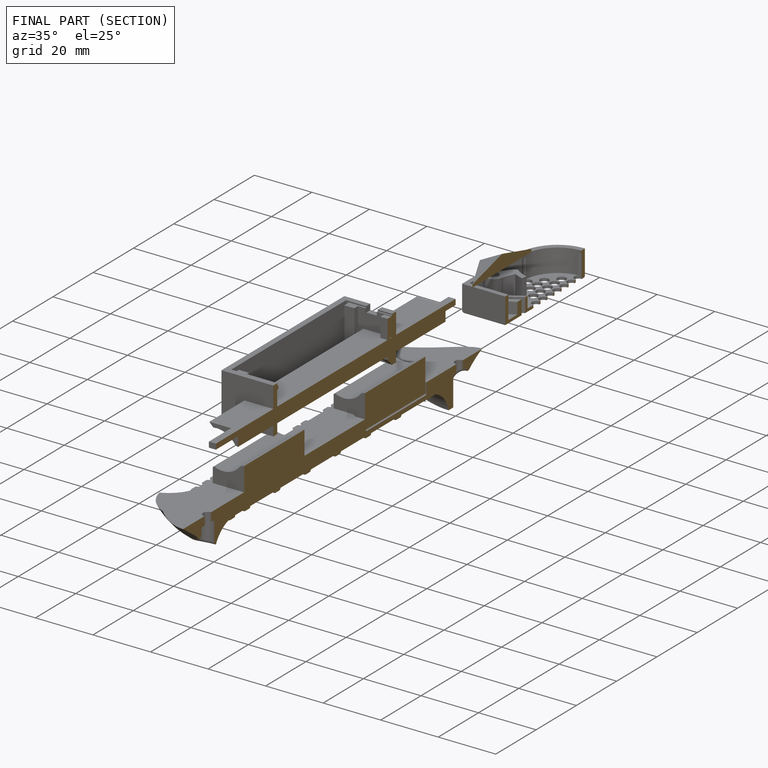
[diagram: finished part — half-section view (interior)]
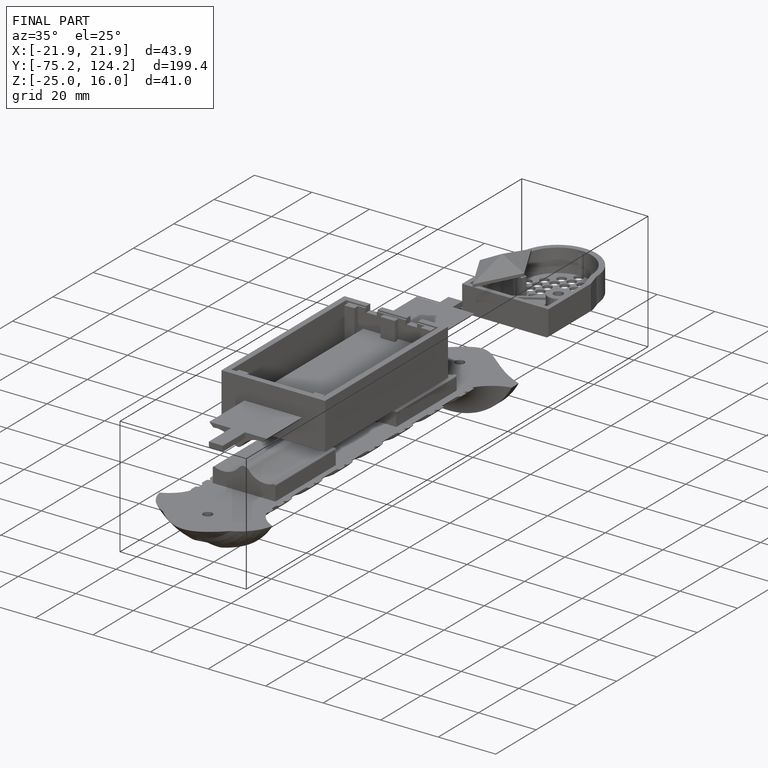
[diagram: finished part — iso view with bounding-box wireframe]
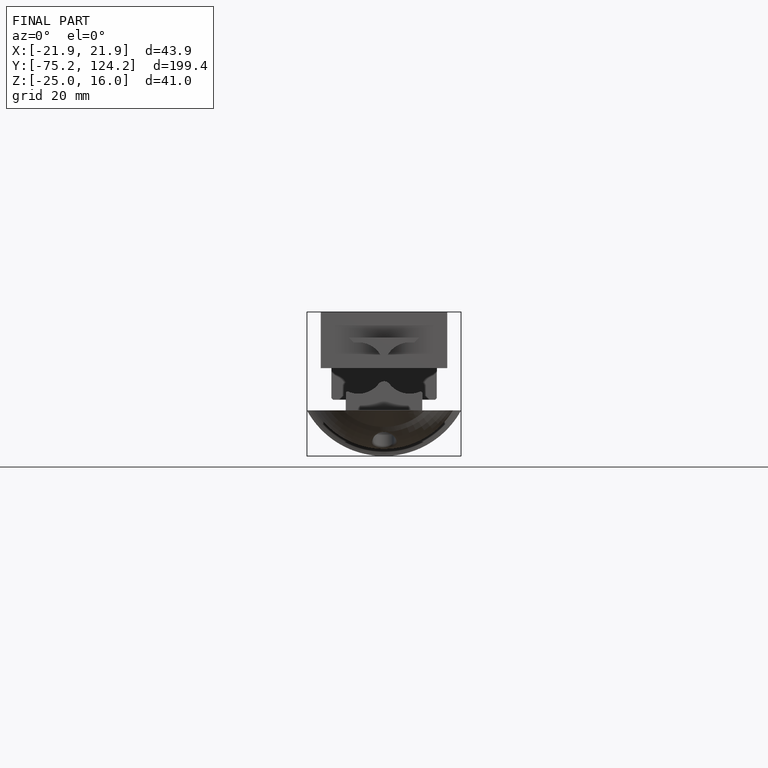
[diagram: finished part — front view with bounding-box wireframe]
